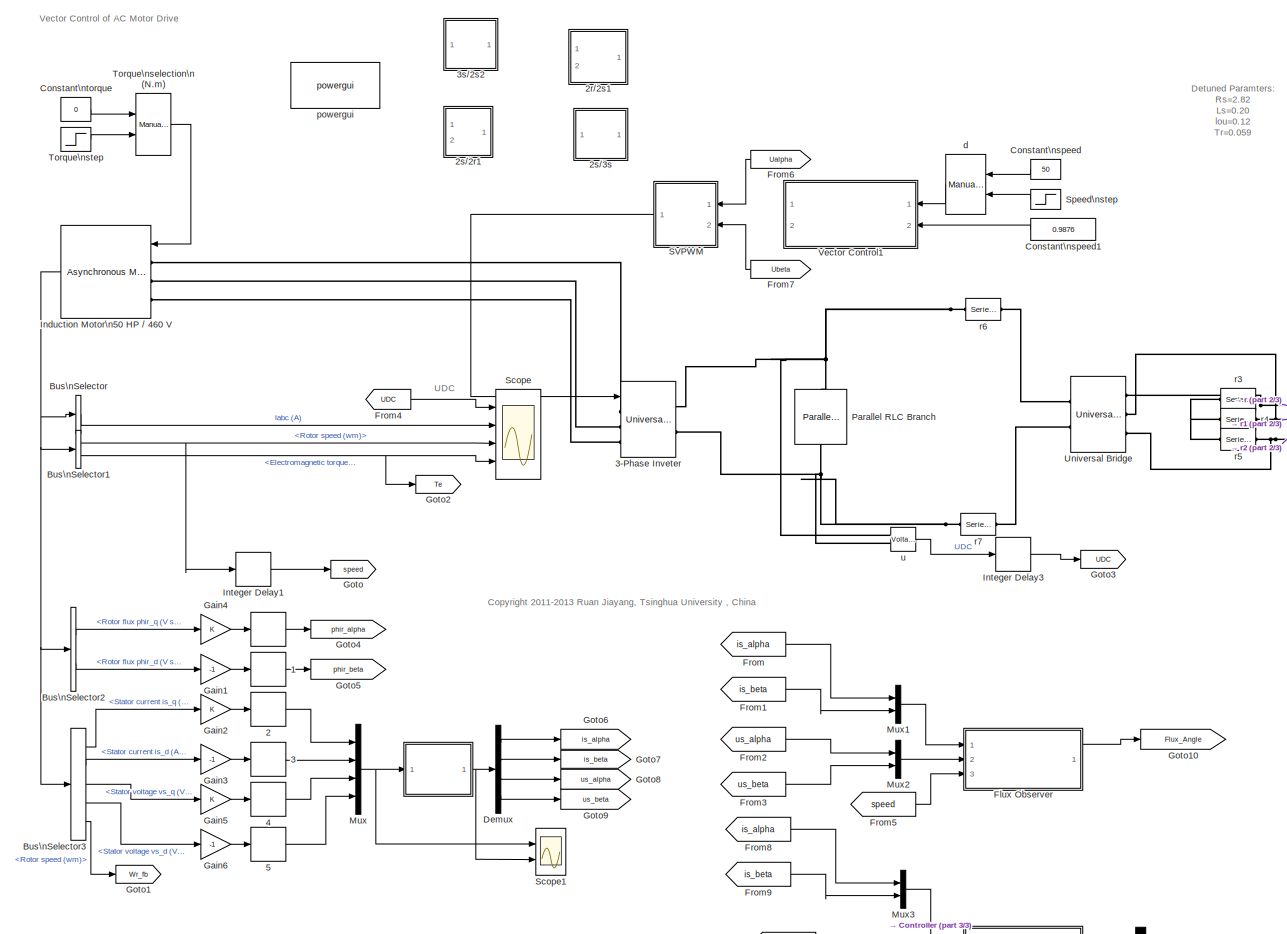
[diagram: root canvas - part 1/3, most of the canvas]
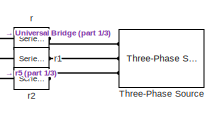
[diagram: root canvas - part 2/3, middle right region]
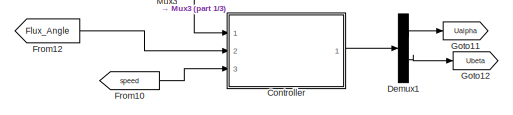
[diagram: root canvas - part 3/3, bottom center region]
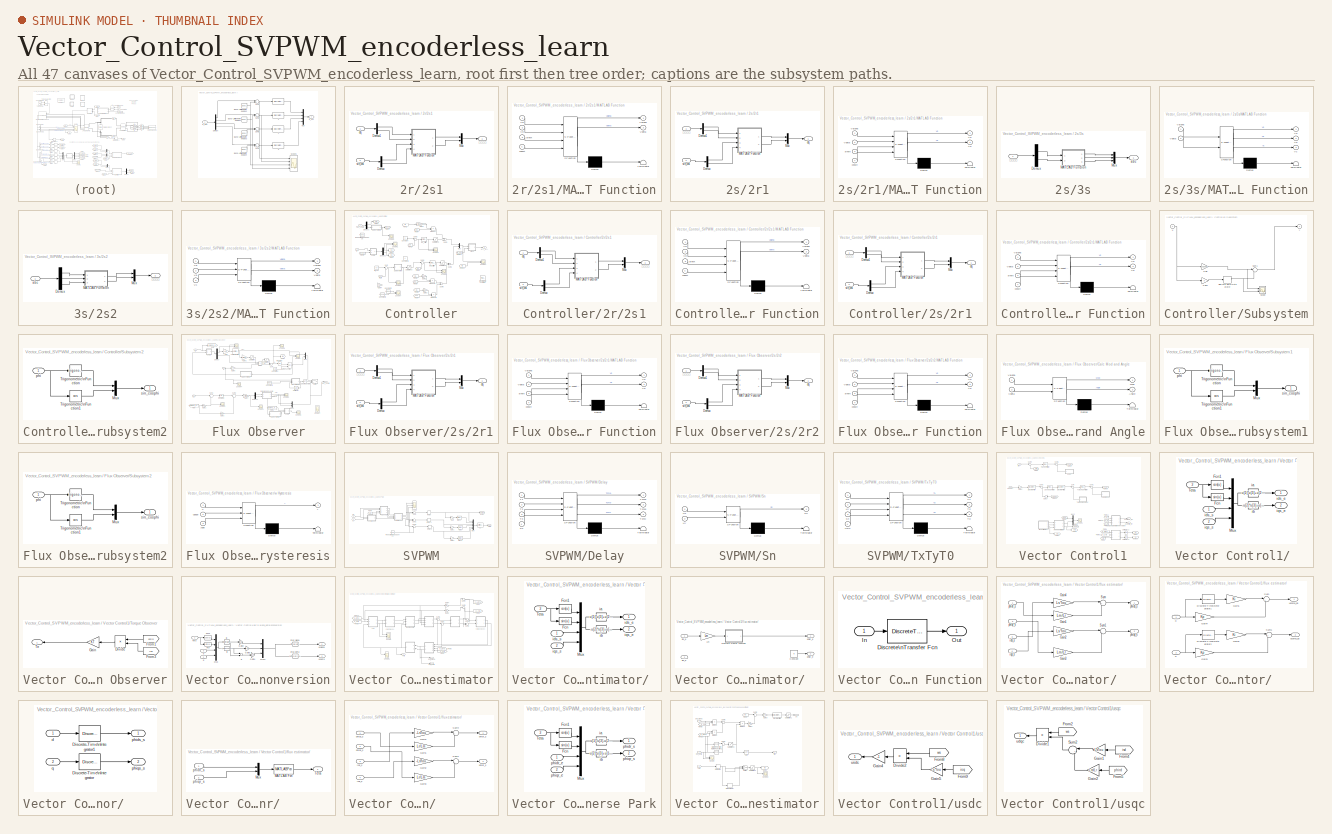
[diagram: thumbnail index - all 47 canvases of the model, root first then tree order]
MODEL Vector_Control_SVPWM_encoderless_learn
KIND model
CONFIG InitFcn = Ts=1e-6;\nresolute=100;\n\nnp=2;\nfN=50;\nVN=380;\nPN=2200;\nIN=PN/(VN*1.732);\nJ=0.3;\nVdc=600;\n\nRs=2.76;\nLls=11.8e-3;\nRr=3.11;\nLlr=11.8e-3;\nLm=188.2e-3;\nLs=Lm+Lls;\nLr=Lm+Llr;\nKleak=1-Lm*Lm/(Ls*Lr);\nTr=Lr/Rr;\n\n%Ts=1e-6;\nfbase=fN;\nVbase=220*sqrt(3);\nwbase=2*pi*fbase;\n\nTsw=0.2e-3;\nFctrl=2/Tsw;\nTctrl=1/Fctrl;\nPMCurrent=45;\nFcutCurrent=(81.12-PMCurrent)*Fctrl/540;\nFpiCurrent=Fcu...<+241ch>
CONFIG PreLoadFcn = Ts=1e-6;\nresolute=100;\nMotorParamInit.m\n\n
BLOCK [Delay]  
  InitialCondition = 0
  InputPortMap = u0
  InputProcessing = Inherited
  Ports = [1, 1]
  SID = 1007
  SampleTime = Ts
BLOCK [SubSystem]       
  FunctionWithSeparateData = off
  MaskCallbackString = |||
  MaskEnableString = on,on,on,on
  MaskHideContents = off
  MaskIconFrame = on
  MaskIconOpaque = on
  MaskIconRotate = none
  MaskIconUnits = autoscale
  MaskInitialization = TN=1/SF;
  MaskPortRotate = default
  MaskPromptString = Filter Time Constant|Switching Frequecy|Voltage Measurement Noise|Current Measurement Noise
  MaskStyleString = edit,edit,edit,edit
  MaskToolTipString = on,on,on,on
  MaskTunableValueString = on,on,on,on
  MaskValueString = 0.001|5000|0|0.2
  MaskVariables = Tf=@1;SF=@2;VN=@3;CN=@4;
  MaskVisibilityString = on,on,on,on
  MinAlgLoopOccurrences = off
  Opaque = off
  Ports = [1, 1]
  PropExecContextOutsideSubsystem = off
  RTWSystemCode = Auto
  RequestExecContextInheritance = off
  SID = 2972
BLOCK [DiscreteFilter]       /    
  Denominator = [Tf/Ts+1 -Tf/Ts]
  InputPortMap = u0
  Ports = [1, 1]
  SID = 2995
  SampleTime = Ts
BLOCK [DiscreteFilter]       /    1
  Denominator = [Tf/Ts+1 -Tf/Ts]
  InputPortMap = u0
  Ports = [1, 1]
  SID = 3001
  SampleTime = Ts
BLOCK [DiscreteFilter]       /    2
  Denominator = [Tf/Ts+1 -Tf/Ts]
  InputPortMap = u0
  Ports = [1, 1]
  SID = 3002
  SampleTime = Ts
BLOCK [DiscreteFilter]       /    3
  Denominator = [Tf/Ts+1 -Tf/Ts]
  InputPortMap = u0
  Ports = [1, 1]
  SID = 3003
  SampleTime = Ts
BLOCK [Reference]       /Band-Limited\nWhite Noise1  REF=simulink/Sources/Band-Limited\nWhite Noise
  Cov = [CN*TN]
  Ports = [0, 1]
  SID = 2974
  SourceBlock = simulink/Sources/Band-Limited\nWhite Noise
  SourceType = Band-Limited White Noise.
  Ts = TN
  VectorParams1D = on
  seed = [2334123]
BLOCK [Reference]       /Band-Limited\nWhite Noise2  REF=simulink/Sources/Band-Limited\nWhite Noise
  Cov = [CN*TN]
  Ports = [0, 1]
  SID = 2975
  SourceBlock = simulink/Sources/Band-Limited\nWhite Noise
  SourceType = Band-Limited White Noise.
  Ts = TN
  VectorParams1D = on
  seed = [233]
BLOCK [Reference]       /Band-Limited\nWhite Noise3  REF=simulink/Sources/Band-Limited\nWhite Noise
  Cov = [VN*TN]
  Ports = [0, 1]
  SID = 2976
  SourceBlock = simulink/Sources/Band-Limited\nWhite Noise
  SourceType = Band-Limited White Noise.
  Ts = TN
  VectorParams1D = on
  seed = [23345451]
BLOCK [Reference]       /Band-Limited\nWhite Noise4  REF=simulink/Sources/Band-Limited\nWhite Noise
  Cov = [VN*TN]
  Ports = [0, 1]
  SID = 2999
  SourceBlock = simulink/Sources/Band-Limited\nWhite Noise
  SourceType = Band-Limited White Noise.
  Ts = TN
  VectorParams1D = on
  seed = [3345451]
BLOCK [Demux]       /Demux
  DisplayOption = bar
  Ports = [1, 4]
  SID = 2977
BLOCK [Mux]       /Mux
  DisplayOption = bar
  Ports = [4, 1]
  SID = 2978
BLOCK [Scope]       /Scope1
  DataFormat = StructureWithTime
  Decimation = resolute
  Floating = off
  LimitDataPoints = off
  NumInputPorts = 4
  Ports = [4]
  SID = 3038
  SampleTime = 5e-6
  SaveName = ScopeData4
  SaveToWorkspace = on
  ShowLegends = off
  TimeRange = 1
  YMax = 20~20~5~5
  YMin = -20~-20~-5~-5
BLOCK [Sum]       /Sum1
  IconShape = round
  InputSameDT = off
  Inputs = |++
  OutDataTypeStr = Inherit: Inherit via internal rule
  Ports = [2, 1]
  SID = 2979
  SampleTime = Ts
  SaturateOnIntegerOverflow = off
BLOCK [Sum]       /Sum2
  IconShape = round
  InputSameDT = off
  Inputs = |++
  OutDataTypeStr = Inherit: Inherit via internal rule
  Ports = [2, 1]
  SID = 2980
  SampleTime = Ts
  SaturateOnIntegerOverflow = off
BLOCK [Sum]       /Sum3
  IconShape = round
  InputSameDT = off
  Inputs = |++
  OutDataTypeStr = Inherit: Inherit via internal rule
  Ports = [2, 1]
  SID = 2981
  SampleTime = Ts
  SaturateOnIntegerOverflow = off
BLOCK [Sum]       /Sum4
  IconShape = round
  InputSameDT = off
  Inputs = |++
  OutDataTypeStr = Inherit: Inherit via internal rule
  Ports = [2, 1]
  SID = 3000
  SampleTime = Ts
  SaturateOnIntegerOverflow = off
BLOCK [Inport]       /is_abc
  IconDisplay = Port number
  SID = 2973
BLOCK [Outport]       /is_abc 
  IconDisplay = Port number
  SID = 2982
BLOCK [Delay]  1
  InitialCondition = 0
  InputPortMap = u0
  InputProcessing = Inherited
  Ports = [1, 1]
  SID = 1008
  SampleTime = Ts
BLOCK [Delay]  2
  DelayLength = 1
  InitialCondition = 0
  InputPortMap = u0
  InputProcessing = Inherited
  Ports = [1, 1]
  SID = 1009
  SampleTime = Ts
BLOCK [Delay]  3
  DelayLength = 1
  InitialCondition = 0
  InputPortMap = u0
  InputProcessing = Inherited
  Ports = [1, 1]
  SID = 1010
  SampleTime = Ts
BLOCK [Delay]  4
  DelayLength = 1
  InitialCondition = 0
  InputPortMap = u0
  InputProcessing = Inherited
  Ports = [1, 1]
  SID = 1130
  SampleTime = Ts
BLOCK [Delay]  5
  DelayLength = 1
  InitialCondition = 0
  InputPortMap = u0
  InputProcessing = Inherited
  Ports = [1, 1]
  SID = 1131
  SampleTime = Ts
BLOCK [SubSystem] 2r//2s1
  FunctionWithSeparateData = off
  MaskHideContents = off
  MinAlgLoopOccurrences = off
  Opaque = off
  Ports = [2, 1]
  PropExecContextOutsideSubsystem = off
  RTWSystemCode = Auto
  RequestExecContextInheritance = off
  SID = 4603
BLOCK [Demux] 2r//2s1/Demux
  DisplayOption = bar
  Outputs = 2
  Ports = [1, 2]
  SID = 4606
BLOCK [Demux] 2r//2s1/Demux1
  DisplayOption = bar
  Outputs = 2
  Ports = [1, 2]
  SID = 4607
BLOCK [SubSystem] 2r//2s1/MATLAB Function
  ErrorFcn = Stateflow.Translate.translate
  FunctionWithSeparateData = off
  MaskDescription = Embedded MATLAB block
  MaskDisplay = bgColor = Simulink.Root.ColorString2Rgb(get_param(gcbh, 'BackgroundColor')); image(imread('private/eml_membrane_16.png','png','BackgroundColor',bgColor(1:3)),'center'); disp([10 10 'fcn']);  <repeated x8 — deduplicated; at blocks: MATLAB Function, Calc Mod and Angle, w Hysteresis>
  MaskHideContents = off
  MaskIconFrame = on
  MaskIconOpaque = off
  MaskIconRotate = none
  MaskIconUnits = normalized
  MaskPortRotate = default
  MaskSelfModifiable = on
  MaskType = Stateflow
  MinAlgLoopOccurrences = off
  Opaque = off
  PermitHierarchicalResolution = ExplicitOnly
  Ports = [4, 2]
  PropExecContextOutsideSubsystem = off
  RTWSystemCode = Auto
  RequestExecContextInheritance = off
  SFBlockType = MATLAB Function
  SID = 4608
  TreatAsAtomicUnit = on
BLOCK [Demux] 2r//2s1/MATLAB Function/ Demux 
  Outputs = 1
  Ports = [1, 1]
  SID = 4608::20
BLOCK [S-Function] 2r//2s1/MATLAB Function/ SFunction 
  EnableBusSupport = on
  FunctionName = sf_sfun
  PortCounts = [4 3]
  Ports = [4, 3]
  SID = 4608::19
  Tag = Stateflow S-Function Vector_Control_SVPWM_encoderless_learn 17
BLOCK [Terminator] 2r//2s1/MATLAB Function/ Terminator 
  SID = 4608::22
BLOCK [Outport] 2r//2s1/MATLAB Function/Valpha
  IconDisplay = Port number
  SID = 4608::29
BLOCK [Outport] 2r//2s1/MATLAB Function/Vbeta
  IconDisplay = Port number
  Port = 2
  SID = 4608::30
BLOCK [Inport] 2r//2s1/MATLAB Function/Vd
  IconDisplay = Port number
  SID = 4608::27
BLOCK [Inport] 2r//2s1/MATLAB Function/Vq
  IconDisplay = Port number
  Port = 2
  SID = 4608::28
BLOCK [Inport] 2r//2s1/MATLAB Function/coswt
  IconDisplay = Port number
  Port = 4
  SID = 4608::26
BLOCK [Inport] 2r//2s1/MATLAB Function/sinwt
  IconDisplay = Port number
  Port = 3
  SID = 4608::25
BLOCK [Mux] 2r//2s1/Mux
  DisplayOption = bar
  Inputs = 2
  Ports = [2, 1]
  SID = 4609
BLOCK [Inport] 2r//2s1/dq
  IconDisplay = Port number
  SID = 4604
BLOCK [Inport] 2r//2s1/sin_cos
  IconDisplay = Port number
  Port = 2
  SID = 4605
BLOCK [Outport] 2r//2s1/αβ
  IconDisplay = Port number
  SID = 4610
BLOCK [SubSystem] 2s//2r1
  FunctionWithSeparateData = off
  MaskHideContents = off
  MinAlgLoopOccurrences = off
  Opaque = off
  Ports = [2, 1]
  PropExecContextOutsideSubsystem = off
  RTWSystemCode = Auto
  RequestExecContextInheritance = off
  SID = 4611
BLOCK [Demux] 2s//2r1/Demux
  DisplayOption = bar
  Outputs = 2
  Ports = [1, 2]
  SID = 4614
BLOCK [Demux] 2s//2r1/Demux1
  DisplayOption = bar
  Outputs = 2
  Ports = [1, 2]
  SID = 4615
BLOCK [SubSystem] 2s//2r1/MATLAB Function
  ErrorFcn = Stateflow.Translate.translate
  FunctionWithSeparateData = off
  MaskDescription = Embedded MATLAB block
  MaskHideContents = off
  MaskIconFrame = on
  MaskIconOpaque = off
  MaskIconRotate = none
  MaskIconUnits = normalized
  MaskPortRotate = default
  MaskSelfModifiable = on
  MaskType = Stateflow
  MinAlgLoopOccurrences = off
  Opaque = off
  PermitHierarchicalResolution = ExplicitOnly
  Ports = [4, 2]
  PropExecContextOutsideSubsystem = off
  RTWSystemCode = Auto
  RequestExecContextInheritance = off
  SFBlockType = MATLAB Function
  SID = 4616
  TreatAsAtomicUnit = on
BLOCK [Demux] 2s//2r1/MATLAB Function/ Demux 
  Outputs = 1
  Ports = [1, 1]
  SID = 4616::20
BLOCK [S-Function] 2s//2r1/MATLAB Function/ SFunction 
  EnableBusSupport = on
  FunctionName = sf_sfun
  PortCounts = [4 3]
  Ports = [4, 3]
  SID = 4616::19
  Tag = Stateflow S-Function Vector_Control_SVPWM_encoderless_learn 18
BLOCK [Terminator] 2s//2r1/MATLAB Function/ Terminator 
  SID = 4616::22
BLOCK [Inport] 2s//2r1/MATLAB Function/Valpha
  IconDisplay = Port number
  SID = 4616::1
BLOCK [Inport] 2s//2r1/MATLAB Function/Vbeta
  IconDisplay = Port number
  Port = 2
  SID = 4616::23
BLOCK [Outport] 2s//2r1/MATLAB Function/Vd
  IconDisplay = Port number
  SID = 4616::5
BLOCK [Outport] 2s//2r1/MATLAB Function/Vq
  IconDisplay = Port number
  Port = 2
  SID = 4616::24
BLOCK [Inport] 2s//2r1/MATLAB Function/coswt
  IconDisplay = Port number
  Port = 4
  SID = 4616::26
BLOCK [Inport] 2s//2r1/MATLAB Function/sinwt
  IconDisplay = Port number
  Port = 3
  SID = 4616::25
BLOCK [Mux] 2s//2r1/Mux
  DisplayOption = bar
  Inputs = 2
  Ports = [2, 1]
  SID = 4617
BLOCK [Outport] 2s//2r1/dq
  IconDisplay = Port number
  SID = 4618
BLOCK [Inport] 2s//2r1/sin_cos
  IconDisplay = Port number
  Port = 2
  SID = 4613
BLOCK [Inport] 2s//2r1/αβ
  IconDisplay = Port number
  SID = 4612
BLOCK [SubSystem] 2s//3s
  FunctionWithSeparateData = off
  MaskHideContents = off
  MinAlgLoopOccurrences = off
  Opaque = off
  Ports = [1, 1]
  PropExecContextOutsideSubsystem = off
  RTWSystemCode = Auto
  RequestExecContextInheritance = off
  SID = 4619
BLOCK [Demux] 2s//3s/Demux
  DisplayOption = bar
  Outputs = 2
  Ports = [1, 2]
  SID = 4621
BLOCK [SubSystem] 2s//3s/MATLAB Function
  ErrorFcn = Stateflow.Translate.translate
  FunctionWithSeparateData = off
  MaskDescription = Embedded MATLAB block
  MaskDisplay = bgColor = Simulink.Root.ColorString2Rgb(get_param(gcbh, 'BackgroundColor')); image(imread('private/eml_membrane_16.png','png','BackgroundColor',bgColor(1:3)),'center'); disp([10 10 'Park']);
  MaskHideContents = off
  MaskIconFrame = on
  MaskIconOpaque = off
  MaskIconRotate = none
  MaskIconUnits = normalized
  MaskPortRotate = default
  MaskSelfModifiable = on
  MaskType = Stateflow
  MinAlgLoopOccurrences = off
  Opaque = off
  PermitHierarchicalResolution = ExplicitOnly
  Ports = [2, 3]
  PropExecContextOutsideSubsystem = off
  RTWSystemCode = Auto
  RequestExecContextInheritance = off
  SFBlockType = MATLAB Function
  SID = 4622
  TreatAsAtomicUnit = on
BLOCK [Demux] 2s//3s/MATLAB Function/ Demux 
  Outputs = 1
  Ports = [1, 1]
  SID = 4622::20
BLOCK [S-Function] 2s//3s/MATLAB Function/ SFunction 
  EnableBusSupport = on
  FunctionName = sf_sfun
  PortCounts = [2 4]
  Ports = [2, 4]
  SID = 4622::19
  Tag = Stateflow S-Function Vector_Control_SVPWM_encoderless_learn 6
BLOCK [Terminator] 2s//3s/MATLAB Function/ Terminator 
  SID = 4622::22
BLOCK [Outport] 2s//3s/MATLAB Function/Va
  IconDisplay = Port number
  SID = 4622::28
BLOCK [Inport] 2s//3s/MATLAB Function/Valpha
  IconDisplay = Port number
  SID = 4622::26
BLOCK [Outport] 2s//3s/MATLAB Function/Vb
  IconDisplay = Port number
  Port = 2
  SID = 4622::29
BLOCK [Inport] 2s//3s/MATLAB Function/Vbeta
  IconDisplay = Port number
  Port = 2
  SID = 4622::27
BLOCK [Outport] 2s//3s/MATLAB Function/Vc
  IconDisplay = Port number
  Port = 3
  SID = 4622::30
BLOCK [Mux] 2s//3s/Mux
  DisplayOption = bar
  Inputs = 3
  Ports = [3, 1]
  SID = 4623
BLOCK [Outport] 2s//3s/abc
  IconDisplay = Port number
  SID = 4624
BLOCK [Inport] 2s//3s/αβ
  IconDisplay = Port number
  SID = 4620
BLOCK [Reference] 3-Phase Inveter  REF=powerlib/Power\nElectronics/Universal Bridge
  Arms = 3
  Device = IGBT / Diodes
  ForwardVoltage = 0
  ForwardVoltages = [1.1  0.75]
  GTOparameters = [ 10e-6 , 20e-6 ]
  IGBTparameters = [ 1e-6 , 2e-6 ]
  Lon = 0
  Measurements = None
  Measurements_2 = None
  Ports = [1, 0, 0, 0, 0, 3, 2]
  Ron = 1e-3
  SID = 924
  SnubberCapacitance = 1e-6
  SnubberResistance = 1e5
  SourceBlock = powerlib/Power\nElectronics/Universal Bridge
  SourceType = Universal Bridge
  converterType = Rectifier
BLOCK [SubSystem] 3s//2s2
  FunctionWithSeparateData = off
  MaskHideContents = off
  MinAlgLoopOccurrences = off
  Opaque = off
  Ports = [1, 1]
  PropExecContextOutsideSubsystem = off
  RTWSystemCode = Auto
  RequestExecContextInheritance = off
  SID = 4625
BLOCK [Demux] 3s//2s2/Demux
  DisplayOption = bar
  Outputs = 3
  Ports = [1, 3]
  SID = 4627
BLOCK [SubSystem] 3s//2s2/MATLAB Function
  ErrorFcn = Stateflow.Translate.translate
  FunctionWithSeparateData = off
  MaskDescription = Embedded MATLAB block
  MaskDisplay = bgColor = Simulink.Root.ColorString2Rgb(get_param(gcbh, 'BackgroundColor')); image(imread('private/eml_membrane_16.png','png','BackgroundColor',bgColor(1:3)),'center'); disp([10 10 'Park']);
  MaskHideContents = off
  MaskIconFrame = on
  MaskIconOpaque = off
  MaskIconRotate = none
  MaskIconUnits = normalized
  MaskPortRotate = default
  MaskSelfModifiable = on
  MaskType = Stateflow
  MinAlgLoopOccurrences = off
  Opaque = off
  PermitHierarchicalResolution = ExplicitOnly
  Ports = [3, 2]
  PropExecContextOutsideSubsystem = off
  RTWSystemCode = Auto
  RequestExecContextInheritance = off
  SFBlockType = MATLAB Function
  SID = 4628
  TreatAsAtomicUnit = on
BLOCK [Demux] 3s//2s2/MATLAB Function/ Demux 
  Outputs = 1
  Ports = [1, 1]
  SID = 4628::20
BLOCK [S-Function] 3s//2s2/MATLAB Function/ SFunction 
  EnableBusSupport = on
  FunctionName = sf_sfun
  PortCounts = [3 3]
  Ports = [3, 3]
  SID = 4628::19
  Tag = Stateflow S-Function Vector_Control_SVPWM_encoderless_learn 8
BLOCK [Terminator] 3s//2s2/MATLAB Function/ Terminator 
  SID = 4628::22
BLOCK [Inport] 3s//2s2/MATLAB Function/Va
  IconDisplay = Port number
  SID = 4628::1
BLOCK [Outport] 3s//2s2/MATLAB Function/Valpha
  IconDisplay = Port number
  SID = 4628::5
BLOCK [Inport] 3s//2s2/MATLAB Function/Vb
  IconDisplay = Port number
  Port = 2
  SID = 4628::23
BLOCK [Outport] 3s//2s2/MATLAB Function/Vbeta
  IconDisplay = Port number
  Port = 2
  SID = 4628::25
BLOCK [Inport] 3s//2s2/MATLAB Function/Vc
  IconDisplay = Port number
  Port = 3
  SID = 4628::24
BLOCK [Mux] 3s//2s2/Mux
  DisplayOption = bar
  Inputs = 2
  Ports = [2, 1]
  SID = 4629
BLOCK [Inport] 3s//2s2/abc
  IconDisplay = Port number
  SID = 4626
BLOCK [Outport] 3s//2s2/αβ
  IconDisplay = Port number
  SID = 4630
BLOCK [BusSelector] Bus\nSelector
  OutputAsBus = on
  OutputSignals = Stator measurements.Stator current is_a (A),Stator measurements.Stator current is_b (A),Stator measurements.Stator current is_c (A)
  Ports = [1, 1]
  SID = 1
BLOCK [BusSelector] Bus\nSelector1
  OutputSignals = Mechanical.Rotor speed (wm),Mechanical.Electromagnetic torque Te (N*m)
  Ports = [1, 2]
  SID = 2
BLOCK [BusSelector] Bus\nSelector2
  OutputSignals = Rotor measurements.Rotor flux phir_q (V s),Rotor measurements.Rotor flux phir_d (V s)
  Ports = [1, 2]
  SID = 963
BLOCK [BusSelector] Bus\nSelector3
  OutputSignals = Stator measurements.Stator current  is_q (A),Stator measurements.Stator current is_d (A),Stator measurements.Stator voltage vs_q (V),Stator measurements.Stator voltage vs_d (V),Mechanical.Rotor speed (wm)
  Ports = [1, 5]
  SID = 3004
BLOCK [Constant] Constant\nspeed
  SID = 3
  SampleTime = Ts
  Value = 50
BLOCK [Constant] Constant\nspeed1
  SID = 999
  SampleTime = Ts
  Value = 0.9876
BLOCK [Constant] Constant\ntorque
  SID = 4
  SampleTime = Ts
  Value = 0
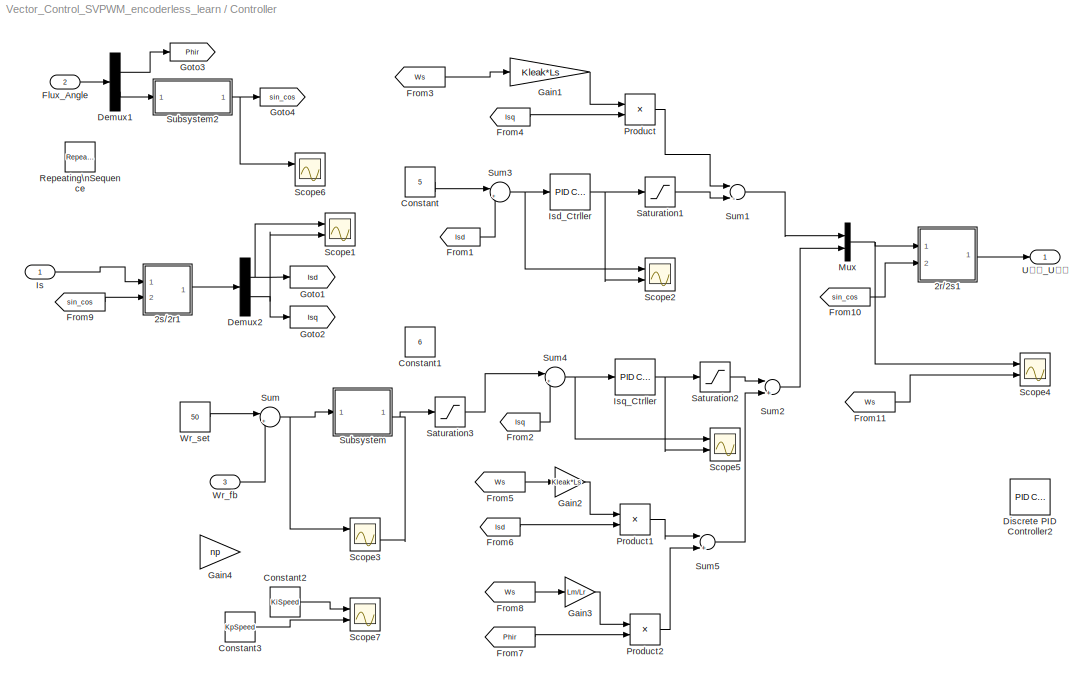
BLOCK [SubSystem] Controller
  FunctionWithSeparateData = off
  MaskHideContents = off
  MinAlgLoopOccurrences = off
  Opaque = off
  Ports = [3, 1]
  PropExecContextOutsideSubsystem = off
  RTWSystemCode = Auto
  RequestExecContextInheritance = off
  SID = 4448
BLOCK [SubSystem] Controller/2r//2s1
  FunctionWithSeparateData = off
  MaskHideContents = off
  MinAlgLoopOccurrences = off
  Opaque = off
  Ports = [2, 1]
  PropExecContextOutsideSubsystem = off
  RTWSystemCode = Auto
  RequestExecContextInheritance = off
  SID = 4631
BLOCK [Demux] Controller/2r//2s1/Demux
  DisplayOption = bar
  Outputs = 2
  Ports = [1, 2]
  SID = 4634
BLOCK [Demux] Controller/2r//2s1/Demux1
  DisplayOption = bar
  Outputs = 2
  Ports = [1, 2]
  SID = 4635
BLOCK [SubSystem] Controller/2r//2s1/MATLAB Function
  ErrorFcn = Stateflow.Translate.translate
  FunctionWithSeparateData = off
  MaskDescription = Embedded MATLAB block
  MaskHideContents = off
  MaskIconFrame = on
  MaskIconOpaque = off
  MaskIconRotate = none
  MaskIconUnits = normalized
  MaskPortRotate = default
  MaskSelfModifiable = on
  MaskType = Stateflow
  MinAlgLoopOccurrences = off
  Opaque = off
  PermitHierarchicalResolution = ExplicitOnly
  Ports = [4, 2]
  PropExecContextOutsideSubsystem = off
  RTWSystemCode = Auto
  RequestExecContextInheritance = off
  SFBlockType = MATLAB Function
  SID = 4636
  TreatAsAtomicUnit = on
BLOCK [Demux] Controller/2r//2s1/MATLAB Function/ Demux 
  Outputs = 1
  Ports = [1, 1]
  SID = 4636::20
BLOCK [S-Function] Controller/2r//2s1/MATLAB Function/ SFunction 
  EnableBusSupport = on
  FunctionName = sf_sfun
  PortCounts = [4 3]
  Ports = [4, 3]
  SID = 4636::19
  Tag = Stateflow S-Function Vector_Control_SVPWM_encoderless_learn 10
BLOCK [Terminator] Controller/2r//2s1/MATLAB Function/ Terminator 
  SID = 4636::22
BLOCK [Outport] Controller/2r//2s1/MATLAB Function/Valpha
  IconDisplay = Port number
  SID = 4636::29
BLOCK [Outport] Controller/2r//2s1/MATLAB Function/Vbeta
  IconDisplay = Port number
  Port = 2
  SID = 4636::30
BLOCK [Inport] Controller/2r//2s1/MATLAB Function/Vd
  IconDisplay = Port number
  SID = 4636::27
BLOCK [Inport] Controller/2r//2s1/MATLAB Function/Vq
  IconDisplay = Port number
  Port = 2
  SID = 4636::28
BLOCK [Inport] Controller/2r//2s1/MATLAB Function/coswt
  IconDisplay = Port number
  Port = 4
  SID = 4636::26
BLOCK [Inport] Controller/2r//2s1/MATLAB Function/sinwt
  IconDisplay = Port number
  Port = 3
  SID = 4636::25
BLOCK [Mux] Controller/2r//2s1/Mux
  DisplayOption = bar
  Inputs = 2
  Ports = [2, 1]
  SID = 4637
BLOCK [Inport] Controller/2r//2s1/dq
  IconDisplay = Port number
  SID = 4632
BLOCK [Inport] Controller/2r//2s1/sin_cos
  IconDisplay = Port number
  Port = 2
  SID = 4633
BLOCK [Outport] Controller/2r//2s1/αβ
  IconDisplay = Port number
  SID = 4638
BLOCK [SubSystem] Controller/2s//2r1
  FunctionWithSeparateData = off
  MaskHideContents = off
  MinAlgLoopOccurrences = off
  Opaque = off
  Ports = [2, 1]
  PropExecContextOutsideSubsystem = off
  RTWSystemCode = Auto
  RequestExecContextInheritance = off
  SID = 4453
BLOCK [Demux] Controller/2s//2r1/Demux
  DisplayOption = bar
  Outputs = 2
  Ports = [1, 2]
  SID = 4456
BLOCK [Demux] Controller/2s//2r1/Demux1
  DisplayOption = bar
  Outputs = 2
  Ports = [1, 2]
  SID = 4457
BLOCK [SubSystem] Controller/2s//2r1/MATLAB Function
  ErrorFcn = Stateflow.Translate.translate
  FunctionWithSeparateData = off
  MaskDescription = Embedded MATLAB block
  MaskHideContents = off
  MaskIconFrame = on
  MaskIconOpaque = off
  MaskIconRotate = none
  MaskIconUnits = normalized
  MaskPortRotate = default
  MaskSelfModifiable = on
  MaskType = Stateflow
  MinAlgLoopOccurrences = off
  Opaque = off
  PermitHierarchicalResolution = ExplicitOnly
  Ports = [4, 2]
  PropExecContextOutsideSubsystem = off
  RTWSystemCode = Auto
  RequestExecContextInheritance = off
  SFBlockType = MATLAB Function
  SID = 4458
  TreatAsAtomicUnit = on
BLOCK [Demux] Controller/2s//2r1/MATLAB Function/ Demux 
  Outputs = 1
  Ports = [1, 1]
  SID = 4458::20
BLOCK [S-Function] Controller/2s//2r1/MATLAB Function/ SFunction 
  EnableBusSupport = on
  FunctionName = sf_sfun
  PortCounts = [4 3]
  Ports = [4, 3]
  SID = 4458::19
  Tag = Stateflow S-Function Vector_Control_SVPWM_encoderless_learn 7
BLOCK [Terminator] Controller/2s//2r1/MATLAB Function/ Terminator 
  SID = 4458::22
BLOCK [Inport] Controller/2s//2r1/MATLAB Function/Valpha
  IconDisplay = Port number
  SID = 4458::1
BLOCK [Inport] Controller/2s//2r1/MATLAB Function/Vbeta
  IconDisplay = Port number
  Port = 2
  SID = 4458::23
BLOCK [Outport] Controller/2s//2r1/MATLAB Function/Vd
  IconDisplay = Port number
  SID = 4458::5
BLOCK [Outport] Controller/2s//2r1/MATLAB Function/Vq
  IconDisplay = Port number
  Port = 2
  SID = 4458::24
BLOCK [Inport] Controller/2s//2r1/MATLAB Function/coswt
  IconDisplay = Port number
  Port = 4
  SID = 4458::26
BLOCK [Inport] Controller/2s//2r1/MATLAB Function/sinwt
  IconDisplay = Port number
  Port = 3
  SID = 4458::25
BLOCK [Mux] Controller/2s//2r1/Mux
  DisplayOption = bar
  Inputs = 2
  Ports = [2, 1]
  SID = 4459
BLOCK [Outport] Controller/2s//2r1/dq
  IconDisplay = Port number
  SID = 4460
BLOCK [Inport] Controller/2s//2r1/sin_cos
  IconDisplay = Port number
  Port = 2
  SID = 4455
BLOCK [Inport] Controller/2s//2r1/αβ
  IconDisplay = Port number
  SID = 4454
BLOCK [Constant] Controller/Constant
  SID = 4646
  Value = 5
BLOCK [Constant] Controller/Constant1
  SID = 4659
  Value = 6
BLOCK [Constant] Controller/Constant2
  SID = 4668
  Value = KiSpeed
BLOCK [Constant] Controller/Constant3
  SID = 4669
  Value = KpSpeed
BLOCK [Demux] Controller/Demux1
  DisplayOption = bar
  Outputs = 2
  Ports = [1, 2]
  SID = 4640
BLOCK [Demux] Controller/Demux2
  DisplayOption = bar
  Outputs = 2
  Ports = [1, 2]
  SID = 4529
BLOCK [Reference] Controller/Discrete PID Controller2  REF=simulink/Continuous/PID Controller
  AntiWindupMode = none
  Controller = PI
  D = 0
  DOutDataTypeStr = Inherit: Inherit via internal rule
  DOutMax = []
  DOutMin = []
  DParamDataTypeStr = Inherit: Inherit via internal rule
  DParamMax = []
  DParamMin = []
  ExternalReset = none
  FilterContinuousStateAttributes = ''
  FilterMethod = Backward Euler
  FilterOutDataTypeStr = Inherit: Inherit via internal rule
  FilterOutMax = []
  FilterOutMin = []
  FilterRTWStateStorageClass = Auto
  FilterStateMustResolveToSignalObject = off
  Form = Parallel
  I = KiSpeed
  IOutDataTypeStr = Inherit: Inherit via internal rule
  IOutMax = []
  IOutMin = []
  IParamDataTypeStr = Inherit: Inherit via internal rule
  IParamMax = []
  IParamMin = []
  IgnoreLimit = off
  InitialConditionForFilter = 0
  InitialConditionForIntegrator = 0
  InitialConditionSource = internal
  IntegratorContinuousStateAttributes = ''
  IntegratorMethod = Backward Euler
  IntegratorOutDataTypeStr = Inherit: Inherit via internal rule
  IntegratorOutMax = []
  IntegratorOutMin = []
  IntegratorRTWStateStorageClass = Auto
  IntegratorStateMustResolveToSignalObject = off
  Kb = 1
  KbOutDataTypeStr = Inherit: Inherit via internal rule
  KbOutMax = []
  KbOutMin = []
  KbParamDataTypeStr = Inherit: Inherit via internal rule
  KbParamMax = []
  KbParamMin = []
  Kt = 1
  KtOutDataTypeStr = Inherit: Inherit via internal rule
  KtOutMax = []
  KtOutMin = []
  KtParamDataTypeStr = Inherit: Inherit via internal rule
  KtParamMax = []
  KtParamMin = []
  LimitOutput = off
  LinearizeAsGain = off
  LockScale = off
  LowerSaturationLimit = -4*IN
  N = 100
  NOutDataTypeStr = Inherit: Inherit via internal rule
  NOutMax = []
  NOutMin = []
  NParamDataTypeStr = Inherit: Inherit via internal rule
  NParamMax = []
  NParamMin = []
  P = KpSpeed
  POutDataTypeStr = Inherit: Inherit via internal rule
  POutMax = []
  POutMin = []
  PParamDataTypeStr = Inherit: Inherit via internal rule
  PParamMax = []
  PParamMin = []
  Ports = [1, 1]
  RndMeth = Floor
  SID = 4564
  SampleTime = 1
  SaturateOnIntegerOverflow = off
  SaturationOutDataTypeStr = Inherit: Same as input
  SaturationOutMax = []
  SaturationOutMin = []
  SourceBlock = simulink/Continuous/PID Controller
  SourceType = PID 1dof
  SumAccumDataTypeStr = Inherit: Inherit via internal rule
  SumDAccumDataTypeStr = Inherit: Inherit via internal rule
  SumDOutDataTypeStr = Inherit: Inherit via internal rule
  SumDOutMax = []
  SumDOutMin = []
  SumI1AccumDataTypeStr = Inherit: Inherit via internal rule
  SumI1OutDataTypeStr = Inherit: Inherit via internal rule
  SumI1OutMax = []
  SumI1OutMin = []
  SumI2AccumDataTypeStr = Inherit: Inherit via internal rule
  SumI2OutDataTypeStr = Inherit: Inherit via internal rule
  SumI2OutMax = []
  SumI2OutMin = []
  SumI3AccumDataTypeStr = Inherit: Inherit via internal rule
  SumI3OutDataTypeStr = Inherit: Inherit via internal rule
  SumI3OutMax = []
  SumI3OutMin = []
  SumOutDataTypeStr = Inherit: Inherit via internal rule
  SumOutMax = []
  SumOutMin = []
  TimeDomain = Discrete-time
  TrackingMode = off
  UpperSaturationLimit = 4*IN
  ZeroCross = on
BLOCK [Inport] Controller/Flux_Angle
  IconDisplay = Port number
  Port = 2
  SID = 4511
BLOCK [From] Controller/From1
  GotoTag = Isd
  SID = 4533
BLOCK [From] Controller/From10
  GotoTag = sin_cos
  SID = 4644
BLOCK [From] Controller/From11
  GotoTag = Ws
  SID = 4649
  TagVisibility = global
BLOCK [From] Controller/From2
  GotoTag = Isq
  SID = 4537
BLOCK [From] Controller/From3
  GotoTag = Ws
  SID = 4545
  TagVisibility = global
BLOCK [From] Controller/From4
  GotoTag = Isq
  SID = 4548
BLOCK [From] Controller/From5
  GotoTag = Ws
  SID = 4550
  TagVisibility = global
BLOCK [From] Controller/From6
  GotoTag = Isd
  SID = 4551
BLOCK [From] Controller/From7
  GotoTag = Phir
  SID = 4555
BLOCK [From] Controller/From8
  GotoTag = Ws
  SID = 4556
  TagVisibility = global
BLOCK [From] Controller/From9
  GotoTag = sin_cos
  SID = 4643
BLOCK [Gain] Controller/Gain1
  Gain = Kleak*Ls
  OutDataTypeStr = Inherit: Inherit via internal rule
  ParamDataTypeStr = Inherit: Inherit via internal rule
  SID = 4547
  SaturateOnIntegerOverflow = off
BLOCK [Gain] Controller/Gain2
  Gain = Kleak*Ls
  OutDataTypeStr = Inherit: Inherit via internal rule
  ParamDataTypeStr = Inherit: Inherit via internal rule
  SID = 4552
  SaturateOnIntegerOverflow = off
BLOCK [Gain] Controller/Gain3
  Gain = Lm/Lr
  OutDataTypeStr = Inherit: Inherit via internal rule
  ParamDataTypeStr = Inherit: Inherit via internal rule
  SID = 4558
  SaturateOnIntegerOverflow = off
BLOCK [Gain] Controller/Gain4
  Gain = np
  OutDataTypeStr = Inherit: Inherit via internal rule
  ParamDataTypeStr = Inherit: Inherit via internal rule
  SID = 4648
  SaturateOnIntegerOverflow = off
BLOCK [Goto] Controller/Goto1
  GotoTag = Isd
  SID = 4530
BLOCK [Goto] Controller/Goto2
  GotoTag = Isq
  SID = 4531
BLOCK [Goto] Controller/Goto3
  GotoTag = Phir
  SID = 4641
BLOCK [Goto] Controller/Goto4
  GotoTag = sin_cos
  SID = 4642
BLOCK [Inport] Controller/Is
  IconDisplay = Port number
  SID = 4449
BLOCK [Reference] Controller/Isd_Ctrller  REF=simulink/Continuous/PID Controller
  AntiWindupMode = none
  Controller = PI
  D = 0
  DOutDataTypeStr = Inherit: Inherit via internal rule
  DOutMax = []
  DOutMin = []
  DParamDataTypeStr = Inherit: Inherit via internal rule
  DParamMax = []
  DParamMin = []
  ExternalReset = none
  FilterContinuousStateAttributes = ''
  FilterMethod = Forward Euler
  FilterOutDataTypeStr = Inherit: Inherit via internal rule
  FilterOutMax = []
  FilterOutMin = []
  FilterRTWStateStorageClass = Auto
  FilterStateMustResolveToSignalObject = off
  Form = Parallel
  I = KiCurrent
  IOutDataTypeStr = Inherit: Inherit via internal rule
  IOutMax = []
  IOutMin = []
  IParamDataTypeStr = Inherit: Inherit via internal rule
  IParamMax = []
  IParamMin = []
  IgnoreLimit = off
  InitialConditionForFilter = 0
  InitialConditionForIntegrator = 0
  InitialConditionSource = internal
  IntegratorContinuousStateAttributes = ''
  IntegratorMethod = Backward Euler
  IntegratorOutDataTypeStr = Inherit: Inherit via internal rule
  IntegratorOutMax = []
  IntegratorOutMin = []
  IntegratorRTWStateStorageClass = Auto
  IntegratorStateMustResolveToSignalObject = off
  Kb = 1
  KbOutDataTypeStr = Inherit: Inherit via internal rule
  KbOutMax = []
  KbOutMin = []
  KbParamDataTypeStr = Inherit: Inherit via internal rule
  KbParamMax = []
  KbParamMin = []
  Kt = 1
  KtOutDataTypeStr = Inherit: Inherit via internal rule
  KtOutMax = []
  KtOutMin = []
  KtParamDataTypeStr = Inherit: Inherit via internal rule
  KtParamMax = []
  KtParamMin = []
  LimitOutput = on
  LinearizeAsGain = off
  LockScale = off
  LowerSaturationLimit = -1000
  N = 100
  NOutDataTypeStr = Inherit: Inherit via internal rule
  NOutMax = []
  NOutMin = []
  NParamDataTypeStr = Inherit: Inherit via internal rule
  NParamMax = []
  NParamMin = []
  P = KpCurrent
  POutDataTypeStr = Inherit: Inherit via internal rule
  POutMax = []
  POutMin = []
  PParamDataTypeStr = Inherit: Inherit via internal rule
  PParamMax = []
  PParamMin = []
  Ports = [1, 1]
  RndMeth = Floor
  SID = 4527
  SampleTime = Ts
  SaturateOnIntegerOverflow = off
  SaturationOutDataTypeStr = Inherit: Same as input
  SaturationOutMax = []
  SaturationOutMin = []
  SourceBlock = simulink/Continuous/PID Controller
  SourceType = PID 1dof
  SumAccumDataTypeStr = Inherit: Inherit via internal rule
  SumDAccumDataTypeStr = Inherit: Inherit via internal rule
  SumDOutDataTypeStr = Inherit: Inherit via internal rule
  SumDOutMax = []
  SumDOutMin = []
  SumI1AccumDataTypeStr = Inherit: Inherit via internal rule
  SumI1OutDataTypeStr = Inherit: Inherit via internal rule
  SumI1OutMax = []
  SumI1OutMin = []
  SumI2AccumDataTypeStr = Inherit: Inherit via internal rule
  SumI2OutDataTypeStr = Inherit: Inherit via internal rule
  SumI2OutMax = []
  SumI2OutMin = []
  SumI3AccumDataTypeStr = Inherit: Inherit via internal rule
  SumI3OutDataTypeStr = Inherit: Inherit via internal rule
  SumI3OutMax = []
  SumI3OutMin = []
  SumOutDataTypeStr = Inherit: Inherit via internal rule
  SumOutMax = []
  SumOutMin = []
  TimeDomain = Discrete-time
  TrackingMode = off
  UpperSaturationLimit = 1000
  ZeroCross = on
BLOCK [Reference] Controller/Isq_Ctrller  REF=simulink/Continuous/PID Controller
  AntiWindupMode = none
  Controller = PI
  D = 0
  DOutDataTypeStr = Inherit: Inherit via internal rule
  DOutMax = []
  DOutMin = []
  DParamDataTypeStr = Inherit: Inherit via internal rule
  DParamMax = []
  DParamMin = []
  ExternalReset = none
  FilterContinuousStateAttributes = ''
  FilterMethod = Forward Euler
  FilterOutDataTypeStr = Inherit: Inherit via internal rule
  FilterOutMax = []
  FilterOutMin = []
  FilterRTWStateStorageClass = Auto
  FilterStateMustResolveToSignalObject = off
  Form = Parallel
  I = KiCurrent
  IOutDataTypeStr = Inherit: Inherit via internal rule
  IOutMax = []
  IOutMin = []
  IParamDataTypeStr = Inherit: Inherit via internal rule
  IParamMax = []
  IParamMin = []
  IgnoreLimit = off
  InitialConditionForFilter = 0
  InitialConditionForIntegrator = 0
  InitialConditionSource = internal
  IntegratorContinuousStateAttributes = ''
  IntegratorMethod = Backward Euler
  IntegratorOutDataTypeStr = Inherit: Inherit via internal rule
  IntegratorOutMax = []
  IntegratorOutMin = []
  IntegratorRTWStateStorageClass = Auto
  IntegratorStateMustResolveToSignalObject = off
  Kb = 1
  KbOutDataTypeStr = Inherit: Inherit via internal rule
  KbOutMax = []
  KbOutMin = []
  KbParamDataTypeStr = Inherit: Inherit via internal rule
  KbParamMax = []
  KbParamMin = []
  Kt = 1
  KtOutDataTypeStr = Inherit: Inherit via internal rule
  KtOutMax = []
  KtOutMin = []
  KtParamDataTypeStr = Inherit: Inherit via internal rule
  KtParamMax = []
  KtParamMin = []
  LimitOutput = on
  LinearizeAsGain = off
  LockScale = off
  LowerSaturationLimit = -1000
  N = 100
  NOutDataTypeStr = Inherit: Inherit via internal rule
  NOutMax = []
  NOutMin = []
  NParamDataTypeStr = Inherit: Inherit via internal rule
  NParamMax = []
  NParamMin = []
  P = KpCurrent
  POutDataTypeStr = Inherit: Inherit via internal rule
  POutMax = []
  POutMin = []
  PParamDataTypeStr = Inherit: Inherit via internal rule
  PParamMax = []
  PParamMin = []
  Ports = [1, 1]
  RndMeth = Floor
  SID = 4536
  SampleTime = Ts
  SaturateOnIntegerOverflow = off
  SaturationOutDataTypeStr = Inherit: Same as input
  SaturationOutMax = []
  SaturationOutMin = []
  SourceBlock = simulink/Continuous/PID Controller
  SourceType = PID 1dof
  SumAccumDataTypeStr = Inherit: Inherit via internal rule
  SumDAccumDataTypeStr = Inherit: Inherit via internal rule
  SumDOutDataTypeStr = Inherit: Inherit via internal rule
  SumDOutMax = []
  SumDOutMin = []
  SumI1AccumDataTypeStr = Inherit: Inherit via internal rule
  SumI1OutDataTypeStr = Inherit: Inherit via internal rule
  SumI1OutMax = []
  SumI1OutMin = []
  SumI2AccumDataTypeStr = Inherit: Inherit via internal rule
  SumI2OutDataTypeStr = Inherit: Inherit via internal rule
  SumI2OutMax = []
  SumI2OutMin = []
  SumI3AccumDataTypeStr = Inherit: Inherit via internal rule
  SumI3OutDataTypeStr = Inherit: Inherit via internal rule
  SumI3OutMax = []
  SumI3OutMin = []
  SumOutDataTypeStr = Inherit: Inherit via internal rule
  SumOutMax = []
  SumOutMin = []
  TimeDomain = Discrete-time
  TrackingMode = off
  UpperSaturationLimit = 1000
  ZeroCross = on
BLOCK [Mux] Controller/Mux
  DisplayOption = bar
  Inputs = 2
  Ports = [2, 1]
  SID = 4639
BLOCK [Product] Controller/Product
  InputSameDT = off
  OutDataTypeStr = Inherit: Inherit via internal rule
  Ports = [2, 1]
  SID = 4549
  SaturateOnIntegerOverflow = off
BLOCK [Product] Controller/Product1
  InputSameDT = off
  OutDataTypeStr = Inherit: Inherit via internal rule
  Ports = [2, 1]
  SID = 4553
  SaturateOnIntegerOverflow = off
BLOCK [Product] Controller/Product2
  InputSameDT = off
  OutDataTypeStr = Inherit: Inherit via internal rule
  Ports = [2, 1]
  SID = 4559
  SaturateOnIntegerOverflow = off
BLOCK [Reference] Controller/Repeating\nSequence  REF=simulink/Sources/Repeating\nSequence
  Ports = [0, 1]
  SID = 4660
  SourceBlock = simulink/Sources/Repeating\nSequence
  SourceType = Repeating table
  rep_seq_t = [0 0.0629]
  rep_seq_y = [0 2*pi]
BLOCK [Saturate] Controller/Saturation1
  InputPortMap = u0
  LowerLimit = -1e3
  Ports = [1, 1]
  SID = 4532
  UpperLimit = 1e3
BLOCK [Saturate] Controller/Saturation2
  InputPortMap = u0
  LowerLimit = -1e3
  Ports = [1, 1]
  SID = 4538
  UpperLimit = 1e3
BLOCK [Saturate] Controller/Saturation3
  InputPortMap = u0
  LowerLimit = -4*IN
  Ports = [1, 1]
  SID = 4664
  UpperLimit = 4*IN
BLOCK [Scope] Controller/Scope1
  DataFormat = StructureWithTime
  Floating = off
  LimitDataPoints = off
  NumInputPorts = 2
  Ports = [2]
  SID = 4561
  SampleTime = 0
  SaveName = ScopeData3
  ShowLegends = off
  YMax = 5~5
  YMin = -5~-5
  ZoomMode = xonly
BLOCK [Scope] Controller/Scope2
  DataFormat = StructureWithTime
  Floating = off
  LimitDataPoints = off
  NumInputPorts = 2
  Ports = [2]
  SID = 4651
  SampleTime = 0
  SaveName = ScopeData17
  ShowLegends = off
  YMax = 5.25~5
  YMin = 4.45~-5
  ZoomMode = xonly
BLOCK [Scope] Controller/Scope3
  DataFormat = StructureWithTime
  Floating = off
  LimitDataPoints = off
  NumInputPorts = 2
  Ports = [2]
  SID = 4657
  SampleTime = 0
  SaveName = ScopeData18
  ShowLegends = off
  YMax = 2.925~14.0391
  YMin = 2.55~12.7021
  ZoomMode = xonly
BLOCK [Scope] Controller/Scope4
  DataFormat = StructureWithTime
  Floating = off
  LimitDataPoints = off
  NumInputPorts = 2
  Ports = [2]
  SID = 4485
  SampleTime = 0
  SaveName = ScopeData1
  ShowLegends = off
  YMax = 5~5
  YMin = -5~-5
  ZoomMode = xonly
BLOCK [Scope] Controller/Scope5
  DataFormat = StructureWithTime
  Floating = off
  LimitDataPoints = off
  NumInputPorts = 2
  Ports = [2]
  SID = 4658
  SampleTime = 0
  SaveName = ScopeData19
  ShowLegends = off
  YMax = 5~5
  YMin = -5~-5
  ZoomMode = xonly
BLOCK [Scope] Controller/Scope6
  DataFormat = StructureWithTime
  Floating = off
  LimitDataPoints = off
  NumInputPorts = 2
  Ports = [2]
  SID = 4661
  SampleTime = 0
  SaveName = ScopeData20
  ShowLegends = off
  YMax = 5~5
  YMin = -5~-5
  ZoomMode = xonly
BLOCK [Scope] Controller/Scope7
  DataFormat = StructureWithTime
  Floating = off
  LimitDataPoints = off
  NumInputPorts = 2
  Ports = [2]
  SID = 4667
  SampleTime = 0
  SaveName = ScopeData21
  ShowLegends = off
  YMax = 440.514~14.0391
  YMin = 398.56~12.7021
  ZoomMode = yonly
BLOCK [SubSystem] Controller/Subsystem
  FunctionWithSeparateData = off
  MaskHideContents = off
  MinAlgLoopOccurrences = off
  Opaque = off
  Ports = [1, 1]
  PropExecContextOutsideSubsystem = off
  RTWSystemCode = Auto
  RequestExecContextInheritance = off
  SID = 4670
BLOCK [DiscreteIntegrator] Controller/Subsystem/Discrete-Time\nIntegrator
  ICPrevOutput = DiscIntNeverNeededParam
  ICPrevScaledInput = DiscIntNeverNeededParam
  IntegratorMethod = Integration: Backward Euler
  Ports = [1, 1]
  SID = 4684
  SampleTime = Tctrl
  gainval = 1
BLOCK [Gain] Controller/Subsystem/Gain
  Gain = KpSpeed
  OutDataTypeStr = Inherit: Inherit via internal rule
  ParamDataTypeStr = Inherit: Inherit via internal rule
  SID = 4683
  SampleTime = Ts
  SaturateOnIntegerOverflow = off
BLOCK [Gain] Controller/Subsystem/Gain1
  Gain = 0
  OutDataTypeStr = Inherit: Inherit via internal rule
  ParamDataTypeStr = Inherit: Inherit via internal rule
  SID = 4685
  SampleTime = Ts
  SaturateOnIntegerOverflow = off
BLOCK [Scope] Controller/Subsystem/Scope
  DataFormat = StructureWithTime
  Floating = off
  LimitDataPoints = off
  NumInputPorts = 2
  Ports = [2]
  SID = 4679
  SampleTime = 0
  SaveName = ScopeData22
  ShowLegends = off
  YMax = 5~5
  YMin = -5~-5
BLOCK [Sum] Controller/Subsystem/Sum1
  IconShape = round
  InputSameDT = off
  Inputs = |++
  OutDataTypeStr = Inherit: Inherit via internal rule
  Ports = [2, 1]
  SID = 4686
  SaturateOnIntegerOverflow = off
BLOCK [Inport] Controller/Subsystem/u
  IconDisplay = Port number
  SID = 4673
  SampleTime = Ts
BLOCK [Outport] Controller/Subsystem/y
  IconDisplay = Port number
  InitialOutput = 0
  SID = 4678
BLOCK [SubSystem] Controller/Subsystem2
  FunctionWithSeparateData = off
  MaskHideContents = off
  MinAlgLoopOccurrences = off
  Opaque = off
  Ports = [1, 1]
  PropExecContextOutsideSubsystem = off
  RTWSystemCode = Auto
  RequestExecContextInheritance = off
  SID = 4512
BLOCK [Mux] Controller/Subsystem2/Mux
  DisplayOption = bar
  Inputs = 2
  Ports = [2, 1]
  SID = 4514
BLOCK [Trigonometry] Controller/Subsystem2/Trigonometric\nFunction
  Ports = [1, 1]
  SID = 4515
BLOCK [Trigonometry] Controller/Subsystem2/Trigonometric\nFunction1
  Operator = cos
  Ports = [1, 1]
  SID = 4516
BLOCK [Inport] Controller/Subsystem2/phi
  IconDisplay = Port number
  SID = 4513
BLOCK [Outport] Controller/Subsystem2/sin_cosphi
  IconDisplay = Port number
  SID = 4517
BLOCK [Sum] Controller/Sum
  IconShape = round
  InputSameDT = off
  Inputs = |+-
  OutDataTypeStr = Inherit: Inherit via internal rule
  Ports = [2, 1]
  SID = 4565
  SaturateOnIntegerOverflow = off
BLOCK [Sum] Controller/Sum1
  InputSameDT = off
  Inputs = |-+
  OutDataTypeStr = Inherit: Inherit via internal rule
  Ports = [2, 1]
  SID = 4542
  SaturateOnIntegerOverflow = off
BLOCK [Sum] Controller/Sum2
  InputSameDT = off
  Inputs = |++
  OutDataTypeStr = Inherit: Inherit via internal rule
  Ports = [2, 1]
  SID = 4554
  SaturateOnIntegerOverflow = off
BLOCK [Sum] Controller/Sum3
  IconShape = round
  InputSameDT = off
  Inputs = |+-
  OutDataTypeStr = Inherit: Inherit via internal rule
  Ports = [2, 1]
  SID = 4528
  SaturateOnIntegerOverflow = off
BLOCK [Sum] Controller/Sum4
  IconShape = round
  InputSameDT = off
  Inputs = |+-
  OutDataTypeStr = Inherit: Inherit via internal rule
  Ports = [2, 1]
  SID = 4539
  SaturateOnIntegerOverflow = off
BLOCK [Sum] Controller/Sum5
  InputSameDT = off
  Inputs = |++
  OutDataTypeStr = Inherit: Inherit via internal rule
  Ports = [2, 1]
  SID = 4560
  SaturateOnIntegerOverflow = off
BLOCK [Outport] Controller/U¦Á_U¦Â
  IconDisplay = Port number
  SID = 4498
BLOCK [Inport] Controller/Wr_fb
  IconDisplay = Port number
  Port = 3
  SID = 4563
BLOCK [Constant] Controller/Wr_set
  SID = 4566
  Value = 50
BLOCK [Demux] Demux
  DisplayOption = bar
  Ports = [1, 4]
  SID = 3006
BLOCK [Demux] Demux1
  DisplayOption = bar
  Outputs = 2
  Ports = [1, 2]
  SID = 4652
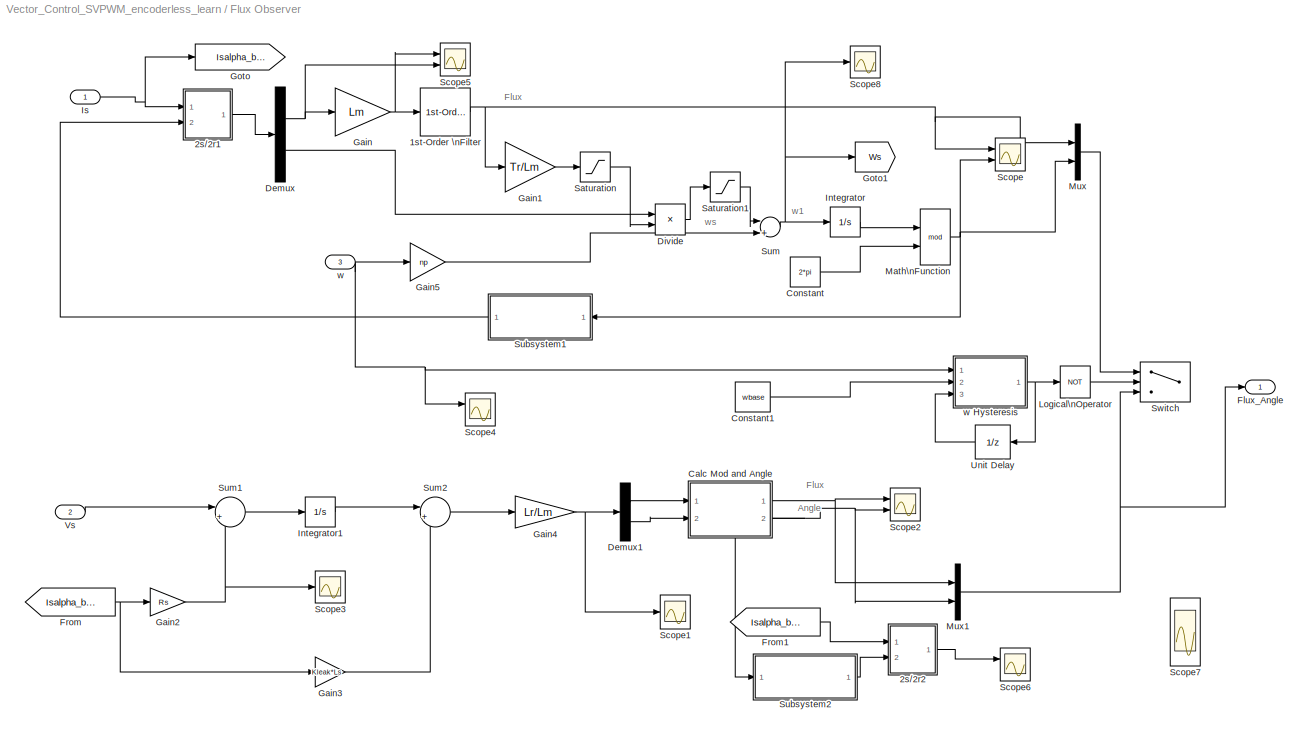
BLOCK [SubSystem] Flux Observer
  FunctionWithSeparateData = off
  MaskHideContents = off
  MinAlgLoopOccurrences = off
  Opaque = off
  Ports = [3, 1]
  PropExecContextOutsideSubsystem = off
  RTWSystemCode = Auto
  RequestExecContextInheritance = off
  SID = 4083
BLOCK [Reference] Flux Observer/1st-Order \nFilter  REF=powerlib_extras/Control \nBlocks/1st-Order \nFilter
  FilterType = Lowpass
  Initialize = off
  PlotResponse = off
  Ports = [1, 1]
  SID = 4087
  SourceBlock = powerlib_extras/Control \nBlocks/1st-Order \nFilter
  SourceType = First-Order Filter
  Tc = Tr
  Vac_Init = [0.8 -25 60]
  Vdc_Init = -0.4
  param1 = [1 500 1]
BLOCK [SubSystem] Flux Observer/2s//2r1
  FunctionWithSeparateData = off
  MaskHideContents = off
  MinAlgLoopOccurrences = off
  Opaque = off
  Ports = [2, 1]
  PropExecContextOutsideSubsystem = off
  RTWSystemCode = Auto
  RequestExecContextInheritance = off
  SID = 4088
BLOCK [Demux] Flux Observer/2s//2r1/Demux
  DisplayOption = bar
  Outputs = 2
  Ports = [1, 2]
  SID = 4091
BLOCK [Demux] Flux Observer/2s//2r1/Demux1
  DisplayOption = bar
  Outputs = 2
  Ports = [1, 2]
  SID = 4092
BLOCK [SubSystem] Flux Observer/2s//2r1/MATLAB Function
  ErrorFcn = Stateflow.Translate.translate
  FunctionWithSeparateData = off
  MaskDescription = Embedded MATLAB block
  MaskHideContents = off
  MaskIconFrame = on
  MaskIconOpaque = off
  MaskIconRotate = none
  MaskIconUnits = normalized
  MaskPortRotate = default
  MaskSelfModifiable = on
  MaskType = Stateflow
  MinAlgLoopOccurrences = off
  Opaque = off
  PermitHierarchicalResolution = ExplicitOnly
  Ports = [4, 2]
  PropExecContextOutsideSubsystem = off
  RTWSystemCode = Auto
  RequestExecContextInheritance = off
  SFBlockType = MATLAB Function
  SID = 4093
  TreatAsAtomicUnit = on
BLOCK [Demux] Flux Observer/2s//2r1/MATLAB Function/ Demux 
  Outputs = 1
  Ports = [1, 1]
  SID = 4093::20
BLOCK [S-Function] Flux Observer/2s//2r1/MATLAB Function/ SFunction 
  EnableBusSupport = on
  FunctionName = sf_sfun
  PortCounts = [4 3]
  Ports = [4, 3]
  SID = 4093::19
  Tag = Stateflow S-Function Vector_Control_SVPWM_encoderless_learn 9
BLOCK [Terminator] Flux Observer/2s//2r1/MATLAB Function/ Terminator 
  SID = 4093::22
BLOCK [Inport] Flux Observer/2s//2r1/MATLAB Function/Valpha
  IconDisplay = Port number
  SID = 4093::1
BLOCK [Inport] Flux Observer/2s//2r1/MATLAB Function/Vbeta
  IconDisplay = Port number
  Port = 2
  SID = 4093::23
BLOCK [Outport] Flux Observer/2s//2r1/MATLAB Function/Vd
  IconDisplay = Port number
  SID = 4093::5
BLOCK [Outport] Flux Observer/2s//2r1/MATLAB Function/Vq
  IconDisplay = Port number
  Port = 2
  SID = 4093::24
BLOCK [Inport] Flux Observer/2s//2r1/MATLAB Function/coswt
  IconDisplay = Port number
  Port = 4
  SID = 4093::26
BLOCK [Inport] Flux Observer/2s//2r1/MATLAB Function/sinwt
  IconDisplay = Port number
  Port = 3
  SID = 4093::25
BLOCK [Mux] Flux Observer/2s//2r1/Mux
  DisplayOption = bar
  Inputs = 2
  Ports = [2, 1]
  SID = 4094
BLOCK [Outport] Flux Observer/2s//2r1/dq
  IconDisplay = Port number
  SID = 4095
BLOCK [Inport] Flux Observer/2s//2r1/sin_cos
  IconDisplay = Port number
  Port = 2
  SID = 4090
BLOCK [Inport] Flux Observer/2s//2r1/αβ
  IconDisplay = Port number
  SID = 4089
BLOCK [SubSystem] Flux Observer/2s//2r2
  FunctionWithSeparateData = off
  MaskHideContents = off
  MinAlgLoopOccurrences = off
  Opaque = off
  Ports = [2, 1]
  PropExecContextOutsideSubsystem = off
  RTWSystemCode = Auto
  RequestExecContextInheritance = off
  SID = 4571
BLOCK [Demux] Flux Observer/2s//2r2/Demux
  DisplayOption = bar
  Outputs = 2
  Ports = [1, 2]
  SID = 4574
BLOCK [Demux] Flux Observer/2s//2r2/Demux1
  DisplayOption = bar
  Outputs = 2
  Ports = [1, 2]
  SID = 4575
BLOCK [SubSystem] Flux Observer/2s//2r2/MATLAB Function
  ErrorFcn = Stateflow.Translate.translate
  FunctionWithSeparateData = off
  MaskDescription = Embedded MATLAB block
  MaskHideContents = off
  MaskIconFrame = on
  MaskIconOpaque = off
  MaskIconRotate = none
  MaskIconUnits = normalized
  MaskPortRotate = default
  MaskSelfModifiable = on
  MaskType = Stateflow
  MinAlgLoopOccurrences = off
  Opaque = off
  PermitHierarchicalResolution = ExplicitOnly
  Ports = [4, 2]
  PropExecContextOutsideSubsystem = off
  RTWSystemCode = Auto
  RequestExecContextInheritance = off
  SFBlockType = MATLAB Function
  SID = 4576
  TreatAsAtomicUnit = on
BLOCK [Demux] Flux Observer/2s//2r2/MATLAB Function/ Demux 
  Outputs = 1
  Ports = [1, 1]
  SID = 4576::20
BLOCK [S-Function] Flux Observer/2s//2r2/MATLAB Function/ SFunction 
  EnableBusSupport = on
  FunctionName = sf_sfun
  PortCounts = [4 3]
  Ports = [4, 3]
  SID = 4576::19
  Tag = Stateflow S-Function Vector_Control_SVPWM_encoderless_learn 5
BLOCK [Terminator] Flux Observer/2s//2r2/MATLAB Function/ Terminator 
  SID = 4576::22
BLOCK [Inport] Flux Observer/2s//2r2/MATLAB Function/Valpha
  IconDisplay = Port number
  SID = 4576::1
BLOCK [Inport] Flux Observer/2s//2r2/MATLAB Function/Vbeta
  IconDisplay = Port number
  Port = 2
  SID = 4576::23
BLOCK [Outport] Flux Observer/2s//2r2/MATLAB Function/Vd
  IconDisplay = Port number
  SID = 4576::5
BLOCK [Outport] Flux Observer/2s//2r2/MATLAB Function/Vq
  IconDisplay = Port number
  Port = 2
  SID = 4576::24
BLOCK [Inport] Flux Observer/2s//2r2/MATLAB Function/coswt
  IconDisplay = Port number
  Port = 4
  SID = 4576::26
BLOCK [Inport] Flux Observer/2s//2r2/MATLAB Function/sinwt
  IconDisplay = Port number
  Port = 3
  SID = 4576::25
BLOCK [Mux] Flux Observer/2s//2r2/Mux
  DisplayOption = bar
  Inputs = 2
  Ports = [2, 1]
  SID = 4577
BLOCK [Outport] Flux Observer/2s//2r2/dq
  IconDisplay = Port number
  SID = 4578
BLOCK [Inport] Flux Observer/2s//2r2/sin_cos
  IconDisplay = Port number
  Port = 2
  SID = 4573
BLOCK [Inport] Flux Observer/2s//2r2/αβ
  IconDisplay = Port number
  SID = 4572
BLOCK [SubSystem] Flux Observer/Calc Mod and Angle
  ErrorFcn = Stateflow.Translate.translate
  FunctionWithSeparateData = off
  MaskDescription = Embedded MATLAB block
  MaskHideContents = off
  MaskIconFrame = on
  MaskIconOpaque = off
  MaskIconRotate = none
  MaskIconUnits = normalized
  MaskPortRotate = default
  MaskSelfModifiable = on
  MaskType = Stateflow
  MinAlgLoopOccurrences = off
  Opaque = off
  PermitHierarchicalResolution = ExplicitOnly
  Ports = [2, 2]
  PropExecContextOutsideSubsystem = off
  RTWSystemCode = Auto
  RequestExecContextInheritance = off
  SFBlockType = MATLAB Function
  SID = 4096
  TreatAsAtomicUnit = on
BLOCK [Demux] Flux Observer/Calc Mod and Angle/ Demux 
  Outputs = 1
  Ports = [1, 1]
  SID = 4096::20
BLOCK [S-Function] Flux Observer/Calc Mod and Angle/ SFunction 
  EnableBusSupport = on
  FunctionName = sf_sfun
  PortCounts = [2 3]
  Ports = [2, 3]
  SID = 4096::19
  Tag = Stateflow S-Function Vector_Control_SVPWM_encoderless_learn 14
BLOCK [Terminator] Flux Observer/Calc Mod and Angle/ Terminator 
  SID = 4096::22
BLOCK [Outport] Flux Observer/Calc Mod and Angle/Angle
  IconDisplay = Port number
  Port = 2
  SID = 4096::24
BLOCK [Outport] Flux Observer/Calc Mod and Angle/Mod
  IconDisplay = Port number
  SID = 4096::5
BLOCK [Inport] Flux Observer/Calc Mod and Angle/Valpha
  IconDisplay = Port number
  SID = 4096::1
BLOCK [Inport] Flux Observer/Calc Mod and Angle/Vbeta
  IconDisplay = Port number
  Port = 2
  SID = 4096::23
BLOCK [Constant] Flux Observer/Constant
  SID = 4097
  Value = 2*pi
BLOCK [Constant] Flux Observer/Constant1
  SID = 4098
  Value = wbase
BLOCK [Demux] Flux Observer/Demux
  DisplayOption = bar
  Outputs = 2
  Ports = [1, 2]
  SID = 4099
BLOCK [Demux] Flux Observer/Demux1
  DisplayOption = bar
  Outputs = 2
  Ports = [1, 2]
  SID = 4100
BLOCK [Product] Flux Observer/Divide
  InputSameDT = off
  Inputs = */
  OutDataTypeStr = Inherit: Inherit via internal rule
  Ports = [2, 1]
  RndMeth = Floor
  SID = 4101
  SaturateOnIntegerOverflow = off
BLOCK [Outport] Flux Observer/Flux_Angle
  IconDisplay = Port number
  SID = 4132
BLOCK [From] Flux Observer/From
  GotoTag = Isalpha_beta
  SID = 4102
BLOCK [From] Flux Observer/From1
  GotoTag = Isalpha_beta
  SID = 4579
BLOCK [Gain] Flux Observer/Gain
  Gain = Lm
  OutDataTypeStr = Inherit: Inherit via internal rule
  ParamDataTypeStr = Inherit: Inherit via internal rule
  SID = 4103
  SaturateOnIntegerOverflow = off
BLOCK [Gain] Flux Observer/Gain1
  Gain = Tr/Lm
  OutDataTypeStr = Inherit: Inherit via internal rule
  ParamDataTypeStr = Inherit: Inherit via internal rule
  SID = 4104
  SaturateOnIntegerOverflow = off
BLOCK [Gain] Flux Observer/Gain2
  Gain = Rs
  OutDataTypeStr = Inherit: Inherit via internal rule
  ParamDataTypeStr = Inherit: Inherit via internal rule
  SID = 4105
  SaturateOnIntegerOverflow = off
BLOCK [Gain] Flux Observer/Gain3
  Gain = Kleak*Ls
  OutDataTypeStr = Inherit: Inherit via internal rule
  ParamDataTypeStr = Inherit: Inherit via internal rule
  SID = 4106
  SaturateOnIntegerOverflow = off
BLOCK [Gain] Flux Observer/Gain4
  Gain = Lr/Lm
  OutDataTypeStr = Inherit: Inherit via internal rule
  ParamDataTypeStr = Inherit: Inherit via internal rule
  SID = 4107
  SaturateOnIntegerOverflow = off
BLOCK [Gain] Flux Observer/Gain5
  Gain = np
  OutDataTypeStr = Inherit: Inherit via internal rule
  ParamDataTypeStr = Inherit: Inherit via internal rule
  SID = 4599
  SaturateOnIntegerOverflow = off
BLOCK [Goto] Flux Observer/Goto
  GotoTag = Isalpha_beta
  SID = 4108
BLOCK [Goto] Flux Observer/Goto1
  GotoTag = Ws
  SID = 4541
  TagVisibility = global
BLOCK [Integrator] Flux Observer/Integrator
  InitialCondition = 0.1
  Ports = [1, 1]
  SID = 4109
BLOCK [Integrator] Flux Observer/Integrator1
  Ports = [1, 1]
  SID = 4110
BLOCK [Inport] Flux Observer/Is
  IconDisplay = Port number
  SID = 4084
BLOCK [Logic] Flux Observer/Logical\nOperator
  AllPortsSameDT = off
  Operator = NOT
  OutDataTypeStr = boolean
  Ports = [1, 1]
  SID = 4111
BLOCK [Math] Flux Observer/Math\nFunction
  Operator = mod
  Ports = [2, 1]
  SID = 4112
BLOCK [Mux] Flux Observer/Mux
  DisplayOption = bar
  Inputs = 2
  Ports = [2, 1]
  SID = 4113
BLOCK [Mux] Flux Observer/Mux1
  DisplayOption = bar
  Inputs = 2
  Ports = [2, 1]
  SID = 4114
BLOCK [Saturate] Flux Observer/Saturation
  InputPortMap = u0
  LowerLimit = 0.0001
  Ports = [1, 1]
  SID = 4115
  UpperLimit = 1e3
BLOCK [Saturate] Flux Observer/Saturation1
  InputPortMap = u0
  LowerLimit = 0
  Ports = [1, 1]
  SID = 4589
  UpperLimit = 0.1*wbase
BLOCK [Scope] Flux Observer/Scope
  DataFormat = StructureWithTime
  Floating = off
  LimitDataPoints = off
  NumInputPorts = 2
  Ports = [2]
  SID = 4116
  SampleTime = 0
  SaveName = ScopeData2
  ShowLegends = off
  YMax = 5~5
  YMin = -5~-5
  ZoomMode = yonly
BLOCK [Scope] Flux Observer/Scope1
  DataFormat = StructureWithTime
  Floating = off
  LimitDataPoints = off
  NumInputPorts = 1
  Ports = [1]
  SID = 4117
  SampleTime = 0
  SaveName = ScopeData8
  ShowLegends = off
  ZoomMode = xonly
BLOCK [Scope] Flux Observer/Scope2
  DataFormat = StructureWithTime
  Floating = off
  LimitDataPoints = off
  NumInputPorts = 2
  Ports = [2]
  SID = 4118
  SampleTime = 0
  SaveName = ScopeData9
  ShowLegends = off
  YMax = 5~5
  YMin = -5~-5
  ZoomMode = xonly
BLOCK [Scope] Flux Observer/Scope3
  DataFormat = StructureWithTime
  Floating = off
  LimitDataPoints = off
  NumInputPorts = 1
  Ports = [1]
  SID = 4119
  SampleTime = 0
  SaveName = ScopeData10
  ShowLegends = off
BLOCK [Scope] Flux Observer/Scope4
  DataFormat = StructureWithTime
  Floating = off
  LimitDataPoints = off
  NumInputPorts = 2
  Ports = [2]
  SID = 4164
  SampleTime = 0
  SaveName = ScopeData1
  ShowLegends = off
  YMax = 5~5
  YMin = -5~-5
  ZoomMode = xonly
BLOCK [Scope] Flux Observer/Scope5
  DataFormat = StructureWithTime
  Floating = off
  LimitDataPoints = off
  NumInputPorts = 2
  Ports = [2]
  SID = 4569
  SampleTime = 0
  SaveName = ScopeData7
  ShowLegends = off
  YMax = 5~5
  YMin = -5~-5
  ZoomMode = yonly
BLOCK [Scope] Flux Observer/Scope6
  DataFormat = StructureWithTime
  Floating = off
  LimitDataPoints = off
  NumInputPorts = 2
  Ports = [2]
  SID = 4586
  SampleTime = 0
  SaveName = ScopeData12
  ShowLegends = off
  YMax = 7.75~5
  YMin = 4.75~-5
  ZoomMode = yonly
BLOCK [Scope] Flux Observer/Scope7
  DataFormat = StructureWithTime
  Floating = off
  LimitDataPoints = off
  NumInputPorts = 3
  Ports = [3]
  SID = 4593
  SampleTime = 0
  SaveName = ScopeData13
  ShowLegends = off
  YMax = 5.5~125~5
  YMin = -1~70~-5
  ZoomMode = yonly
BLOCK [Scope] Flux Observer/Scope8
  DataFormat = StructureWithTime
  Floating = off
  LimitDataPoints = off
  NumInputPorts = 1
  Ports = [1]
  SID = 4588
  SampleTime = 0
  SaveName = ScopeData14
  ShowLegends = off
  YMax = 107
  YMin = 104.6
  ZoomMode = yonly
BLOCK [SubSystem] Flux Observer/Subsystem1
  FunctionWithSeparateData = off
  MaskHideContents = off
  MinAlgLoopOccurrences = off
  Opaque = off
  Ports = [1, 1]
  PropExecContextOutsideSubsystem = off
  RTWSystemCode = Auto
  RequestExecContextInheritance = off
  SID = 4120
BLOCK [Mux] Flux Observer/Subsystem1/Mux
  DisplayOption = bar
  Inputs = 2
  Ports = [2, 1]
  SID = 4122
BLOCK [Trigonometry] Flux Observer/Subsystem1/Trigonometric\nFunction
  Ports = [1, 1]
  SID = 4123
BLOCK [Trigonometry] Flux Observer/Subsystem1/Trigonometric\nFunction1
  Operator = cos
  Ports = [1, 1]
  SID = 4124
BLOCK [Inport] Flux Observer/Subsystem1/phi
  IconDisplay = Port number
  SID = 4121
BLOCK [Outport] Flux Observer/Subsystem1/sin_cosphi
  IconDisplay = Port number
  SID = 4125
BLOCK [SubSystem] Flux Observer/Subsystem2
  FunctionWithSeparateData = off
  MaskHideContents = off
  MinAlgLoopOccurrences = off
  Opaque = off
  Ports = [1, 1]
  PropExecContextOutsideSubsystem = off
  RTWSystemCode = Auto
  RequestExecContextInheritance = off
  SID = 4580
BLOCK [Mux] Flux Observer/Subsystem2/Mux
  DisplayOption = bar
  Inputs = 2
  Ports = [2, 1]
  SID = 4582
BLOCK [Trigonometry] Flux Observer/Subsystem2/Trigonometric\nFunction
  Ports = [1, 1]
  SID = 4583
BLOCK [Trigonometry] Flux Observer/Subsystem2/Trigonometric\nFunction1
  Operator = cos
  Ports = [1, 1]
  SID = 4584
BLOCK [Inport] Flux Observer/Subsystem2/phi
  IconDisplay = Port number
  SID = 4581
BLOCK [Outport] Flux Observer/Subsystem2/sin_cosphi
  IconDisplay = Port number
  SID = 4585
BLOCK [Sum] Flux Observer/Sum
  InputSameDT = off
  Inputs = |++
  OutDataTypeStr = Inherit: Inherit via internal rule
  Ports = [2, 1]
  SID = 4126
  SaturateOnIntegerOverflow = off
BLOCK [Sum] Flux Observer/Sum1
  IconShape = round
  InputSameDT = off
  Inputs = |+-
  OutDataTypeStr = Inherit: Inherit via internal rule
  Ports = [2, 1]
  SID = 4127
  SaturateOnIntegerOverflow = off
BLOCK [Sum] Flux Observer/Sum2
  IconShape = round
  InputSameDT = off
  Inputs = |+-
  OutDataTypeStr = Inherit: Inherit via internal rule
  Ports = [2, 1]
  SID = 4128
  SaturateOnIntegerOverflow = off
BLOCK [Switch] Flux Observer/Switch
  InputSameDT = off
  SID = 4129
  SaturateOnIntegerOverflow = off
BLOCK [UnitDelay] Flux Observer/Unit Delay
  InputProcessing = Elements as channels (sample based)
  SID = 4130
  SampleTime = -1
BLOCK [Inport] Flux Observer/Vs
  IconDisplay = Port number
  Port = 2
  SID = 4085
BLOCK [Inport] Flux Observer/w
  IconDisplay = Port number
  Port = 3
  SID = 4086
BLOCK [SubSystem] Flux Observer/w Hysteresis
  ErrorFcn = Stateflow.Translate.translate
  FunctionWithSeparateData = off
  MaskDescription = Embedded MATLAB block
  MaskHideContents = off
  MaskIconFrame = on
  MaskIconOpaque = off
  MaskIconRotate = none
  MaskIconUnits = normalized
  MaskPortRotate = default
  MaskSelfModifiable = on
  MaskType = Stateflow
  MinAlgLoopOccurrences = off
  Opaque = off
  PermitHierarchicalResolution = ExplicitOnly
  Ports = [3, 1]
  PropExecContextOutsideSubsystem = off
  RTWSystemCode = Auto
  RequestExecContextInheritance = off
  SFBlockType = MATLAB Function
  SID = 4131
  TreatAsAtomicUnit = on
BLOCK [Demux] Flux Observer/w Hysteresis/ Demux 
  Outputs = 1
  Ports = [1, 1]
  SID = 4131::20
BLOCK [S-Function] Flux Observer/w Hysteresis/ SFunction 
  EnableBusSupport = on
  FunctionName = sf_sfun
  PortCounts = [3 2]
  Ports = [3, 2]
  SID = 4131::19
  Tag = Stateflow S-Function Vector_Control_SVPWM_encoderless_learn 15
BLOCK [Terminator] Flux Observer/w Hysteresis/ Terminator 
  SID = 4131::22
BLOCK [Inport] Flux Observer/w Hysteresis/u
  IconDisplay = Port number
  SID = 4131::1
BLOCK [Inport] Flux Observer/w Hysteresis/ubase
  IconDisplay = Port number
  Port = 2
  SID = 4131::23
BLOCK [Outport] Flux Observer/w Hysteresis/y
  IconDisplay = Port number
  SID = 4131::5
BLOCK [Inport] Flux Observer/w Hysteresis/ybak
  IconDisplay = Port number
  Port = 3
  SID = 4131::24
BLOCK [From] From
  GotoTag = is_alpha
  SID = 3797
  TagVisibility = global
BLOCK [From] From1
  GotoTag = is_beta
  SID = 3798
  TagVisibility = global
BLOCK [From] From10
  CloseFcn = tagdialog Close
  GotoTag = speed
  SID = 4647
  TagVisibility = global
BLOCK [From] From12
  GotoTag = Flux_Angle
  SID = 4508
BLOCK [From] From2
  GotoTag = us_alpha
  SID = 3799
  TagVisibility = global
BLOCK [From] From3
  GotoTag = us_beta
  SID = 3800
  TagVisibility = global
BLOCK [From] From4
  CloseFcn = tagdialog Close
  GotoTag = UDC
  SID = 927
  TagVisibility = global
BLOCK [From] From5
  GotoTag = speed
  SID = 3801
  TagVisibility = global
BLOCK [From] From6
  CloseFcn = tagdialog Close
  GotoTag = Ualpha
  SID = 4655
BLOCK [From] From7
  CloseFcn = tagdialog Close
  GotoTag = Ubeta
  SID = 4656
BLOCK [From] From8
  GotoTag = is_alpha
  SID = 4504
  TagVisibility = global
BLOCK [From] From9
  GotoTag = is_beta
  SID = 4505
  TagVisibility = global
BLOCK [Gain] Gain1
  Gain = -1
  OutDataTypeStr = Inherit: Inherit via internal rule
  ParamDataTypeStr = Inherit: Inherit via internal rule
  SID = 965
  SaturateOnIntegerOverflow = off
BLOCK [Gain] Gain2
  OutDataTypeStr = Inherit: Inherit via internal rule
  ParamDataTypeStr = Inherit: Inherit via internal rule
  SID = 969
  SaturateOnIntegerOverflow = off
BLOCK [Gain] Gain3
  Gain = -1
  OutDataTypeStr = Inherit: Inherit via internal rule
  ParamDataTypeStr = Inherit: Inherit via internal rule
  SID = 971
  SaturateOnIntegerOverflow = off
BLOCK [Gain] Gain4
  OutDataTypeStr = Inherit: Inherit via internal rule
  ParamDataTypeStr = Inherit: Inherit via internal rule
  SID = 964
  SaturateOnIntegerOverflow = off
BLOCK [Gain] Gain5
  OutDataTypeStr = Inherit: Inherit via internal rule
  ParamDataTypeStr = Inherit: Inherit via internal rule
  SID = 1132
  SaturateOnIntegerOverflow = off
BLOCK [Gain] Gain6
  Gain = -1
  OutDataTypeStr = Inherit: Inherit via internal rule
  ParamDataTypeStr = Inherit: Inherit via internal rule
  SID = 1133
  SaturateOnIntegerOverflow = off
BLOCK [Goto] Goto
  GotoTag = speed
  SID = 5
  TagVisibility = global
BLOCK [Goto] Goto1
  GotoTag = Wr_fb
  SID = 4148
  TagVisibility = global
BLOCK [Goto] Goto10
  GotoTag = Flux_Angle
  SID = 4445
BLOCK [Goto] Goto11
  GotoTag = Ualpha
  SID = 4653
BLOCK [Goto] Goto12
  GotoTag = Ubeta
  SID = 4654
BLOCK [Goto] Goto2
  GotoTag = Te
  SID = 627
  TagVisibility = global
BLOCK [Goto] Goto3
  GotoTag = UDC
  SID = 926
  TagVisibility = global
BLOCK [Goto] Goto4
  GotoTag = phir_alpha
  SID = 966
  TagVisibility = global
BLOCK [Goto] Goto5
  GotoTag = phir_beta
  SID = 967
  TagVisibility = global
BLOCK [Goto] Goto6
  GotoTag = is_alpha
  SID = 970
  TagVisibility = global
BLOCK [Goto] Goto7
  GotoTag = is_beta
  SID = 972
  TagVisibility = global
BLOCK [Goto] Goto8
  GotoTag = us_alpha
  SID = 1134
  TagVisibility = global
BLOCK [Goto] Goto9
  GotoTag = us_beta
  SID = 1135
  TagVisibility = global
BLOCK [Reference] Induction Motor\n50 HP // 460 V  REF=powerlib/Machines/Asynchronous Machine\nSI Units
  AttributesFormatString = \\n
  Cage1 = [ 0.022 0.226/377]
  Cage2 = [ 0.022 0.226/377]
  InitialConditions = [1, 0 ,  0 , 0 , 0 , 0 , 0 , 0 ]
  IterativeModel = Forward Euler
  Lm = 188.2e-3
  LoadFlowParameters = 0
  Mechanical = [0.3 0.01 2]
  MechanicalLoad = Torque Tm
  NominalParameters = [2200, 380, 50]
  Pmec = 0
  PolePairs = 2
  Ports = [1, 1, 0, 0, 0, 3]
  PresetModel = No
  ReferenceFrame = Stationary
  Rotor = [3.11 11.8e-3]
  RotorType = Squirrel-cage
  SID = 8
  Saturation = [0.6883 0.9028 1.1135 1.2559 1.3970 1.7538 2.1504 2.4988 2.6956 3.0579 3.7375 4.2552 5.1653 5.8110 6.5024;74.1928 98.0992 121.6600 137.3550 152.7109 190.0931 228.8721 259.2975 274.7375 301.8574 342.5384 366.6332 399.5942 417.9914 434.8974]
  ShowDetailedParameters = on
  SimulateSaturation = off
  SourceBlock = powerlib/Machines/Asynchronous Machine\nSI Units
  SourceType = Asynchronous Machine
  Stator = [2.76 11.8e-3]
  TsBlock = Ts
  TsPowergui = 0
  Units = SI
BLOCK [Delay] Integer Delay1
  InitialCondition = 0
  InputPortMap = u0
  InputProcessing = Inherited
  Ports = [1, 1]
  SID = 787
  SampleTime = Ts
BLOCK [Delay] Integer Delay3
  DelayLength = 1
  InitialCondition = 0
  InputPortMap = u0
  InputProcessing = Inherited
  Ports = [1, 1]
  SID = 929
  SampleTime = Ts
BLOCK [Mux] Mux
  DisplayOption = bar
  Ports = [4, 1]
  SID = 3005
BLOCK [Mux] Mux1
  DisplayOption = bar
  Inputs = 2
  Ports = [2, 1]
  SID = 3796
BLOCK [Mux] Mux2
  DisplayOption = bar
  Inputs = 2
  Ports = [2, 1]
  SID = 3802
BLOCK [Mux] Mux3
  DisplayOption = bar
  Inputs = 2
  Ports = [2, 1]
  SID = 4509
BLOCK [Reference] Parallel RLC Branch  REF=powerlib/Elements/Parallel RLC Branch
  AttributesFormatString = \\n
  BranchType = RC
  Capacitance = 330e-6*5
  Inductance = 1e-3
  InitialCurrent = 0
  InitialVoltage = 530
  LConnTagsString = a
  Measurements = None
  Ports = [0, 0, 0, 0, 0, 1, 1]
  RConnTagsString = __new0
  Resistance = 330e3
  SID = 905
  SetiL0 = off
  Setx0 = on
  SourceBlock = powerlib/Elements/Parallel RLC Branch
  SourceType = Parallel RLC Branch
BLOCK [SubSystem] SVPWM
  FunctionWithSeparateData = off
  MaskEnableString = on
  MaskHideContents = off
  MaskIconFrame = on
  MaskIconOpaque = on
  MaskIconRotate = none
  MaskIconUnits = autoscale
  MaskPortRotate = default
  MaskPromptString = Dead Time (s)
  MaskStyleString = edit
  MaskToolTipString = on
  MaskTunableValueString = on
  MaskValueString = 2e-6
  MaskVariables = DT=@1;
  MaskVisibilityString = on
  MinAlgLoopOccurrences = off
  Opaque = off
  Ports = [2, 1]
  PropExecContextOutsideSubsystem = off
  RTWSystemCode = Auto
  RequestExecContextInheritance = off
  SID = 839
BLOCK [Bias] SVPWM/Bias
  Bias = 1
  SID = 842
  SaturateOnIntegerOverflow = off
BLOCK [Bias] SVPWM/Bias1
  Bias = 1
  SID = 843
  SaturateOnIntegerOverflow = off
BLOCK [Bias] SVPWM/Bias2
  Bias = 1
  SID = 844
  SaturateOnIntegerOverflow = off
BLOCK [SubSystem] SVPWM/Delay
  ErrorFcn = Stateflow.Translate.translate
  FunctionWithSeparateData = off
  MaskDescription = Embedded MATLAB block
  MaskDisplay = bgColor = Simulink.Root.ColorString2Rgb(get_param(gcbh, 'BackgroundColor')); image(imread('private/eml_membrane_16.png','png','BackgroundColor',bgColor(1:3)),'center'); disp([10 10 'D']);
  MaskHideContents = off
  MaskIconFrame = on
  MaskIconOpaque = off
  MaskIconRotate = none
  MaskIconUnits = normalized
  MaskPortRotate = default
  MaskSelfModifiable = on
  MaskType = Stateflow
  MinAlgLoopOccurrences = off
  Opaque = off
  PermitHierarchicalResolution = ExplicitOnly
  Ports = [4, 3]
  PropExecContextOutsideSubsystem = off
  RTWSystemCode = Auto
  RequestExecContextInheritance = off
  SFBlockType = MATLAB Function
  SID = 845
  TreatAsAtomicUnit = on
BLOCK [Demux] SVPWM/Delay/ Demux 
  Outputs = 1
  Ports = [1, 1]
  SID = 845::16
BLOCK [S-Function] SVPWM/Delay/ SFunction 
  EnableBusSupport = on
  FunctionName = sf_sfun
  PortCounts = [4 4]
  Ports = [4, 4]
  SID = 845::15
  Tag = Stateflow S-Function Vector_Control_SVPWM_encoderless_learn 4
BLOCK [Terminator] SVPWM/Delay/ Terminator 
  SID = 845::18
BLOCK [Inport] SVPWM/Delay/Sn
  IconDisplay = Port number
  Port = 4
  SID = 845::4
BLOCK [Inport] SVPWM/Delay/T0
  IconDisplay = Port number
  Port = 3
  SID = 845::3
BLOCK [Inport] SVPWM/Delay/T1
  IconDisplay = Port number
  SID = 845::1
BLOCK [Inport] SVPWM/Delay/T2
  IconDisplay = Port number
  Port = 2
  SID = 845::2
BLOCK [Outport] SVPWM/Delay/Tcma
  IconDisplay = Port number
  SID = 845::8
BLOCK [Outport] SVPWM/Delay/Tcmb
  IconDisplay = Port number
  Port = 2
  SID = 845::9
BLOCK [Outport] SVPWM/Delay/Tcmc
  IconDisplay = Port number
  Port = 3
  SID = 845::10
BLOCK [From] SVPWM/From4
  CloseFcn = tagdialog Close
  GotoTag = UDC
  SID = 928
  TagVisibility = global
BLOCK [Gain] SVPWM/Gain
  Gain = -1
  OutDataTypeStr = Inherit: Inherit via internal rule
  ParamDataTypeStr = Inherit: Inherit via internal rule
  SID = 846
  SaturateOnIntegerOverflow = off
BLOCK [Gain] SVPWM/Gain1
  Gain = -1
  OutDataTypeStr = Inherit: Inherit via internal rule
  ParamDataTypeStr = Inherit: Inherit via internal rule
  SID = 847
  SaturateOnIntegerOverflow = off
BLOCK [Gain] SVPWM/Gain2
  Gain = -1
  OutDataTypeStr = Inherit: Inherit via internal rule
  ParamDataTypeStr = Inherit: Inherit via internal rule
  SID = 848
  SaturateOnIntegerOverflow = off
BLOCK [Goto] SVPWM/Goto2
  GotoTag = pulse1
  SID = 956
  TagVisibility = global
BLOCK [Mux] SVPWM/Mux
  DisplayOption = bar
  Inputs = 6
  Ports = [6, 1]
  SID = 849
BLOCK [Outport] SVPWM/PWM
  IconDisplay = Port number
  SID = 860
BLOCK [Relay] SVPWM/Relay
  OffSwitchValue = 0
  OnSwitchValue = 0
  SID = 851
BLOCK [Relay] SVPWM/Relay1
  OffSwitchValue = 0
  OnSwitchValue = 0
  SID = 852
BLOCK [Relay] SVPWM/Relay2
  OffSwitchValue = 0
  OnSwitchValue = 0
  SID = 853
BLOCK [Reference] SVPWM/Repeating\nSequence  REF=simulink/Sources/Repeating\nSequence
  Ports = [0, 1]
  SID = 854
  SourceBlock = simulink/Sources/Repeating\nSequence
  SourceType = Repeating table
  rep_seq_t = [0 1/5000/2 1/5000]
  rep_seq_y = [0 1/5000/2 0]
BLOCK [Scope] SVPWM/Scope
  DataFormat = StructureWithTime
  Floating = off
  LimitDataPoints = off
  NumInputPorts = 3
  Ports = [3]
  SID = 4595
  SampleTime = 0
  SaveName = ScopeData16
  ShowLegends = off
  YMax = 5~5~5
  YMin = -5~-5~-5
  ZoomMode = xonly
BLOCK [SubSystem] SVPWM/Sn
  ErrorFcn = Stateflow.Translate.translate
  FunctionWithSeparateData = off
  MaskDescription = Embedded MATLAB block
  MaskDisplay = bgColor = Simulink.Root.ColorString2Rgb(get_param(gcbh, 'BackgroundColor')); image(imread('private/eml_membrane_16.png','png','BackgroundColor',bgColor(1:3)),'center'); disp([10 10 'S']);
  MaskHideContents = off
  MaskIconFrame = on
  MaskIconOpaque = off
  MaskIconRotate = none
  MaskIconUnits = normalized
  MaskPortRotate = default
  MaskSelfModifiable = on
  MaskType = Stateflow
  MinAlgLoopOccurrences = off
  Opaque = off
  PermitHierarchicalResolution = ExplicitOnly
  Ports = [2, 1]
  PropExecContextOutsideSubsystem = off
  RTWSystemCode = Auto
  RequestExecContextInheritance = off
  SFBlockType = MATLAB Function
  SID = 855
  TreatAsAtomicUnit = on
BLOCK [Demux] SVPWM/Sn/ Demux 
  Outputs = 1
  Ports = [1, 1]
  SID = 855::12
BLOCK [S-Function] SVPWM/Sn/ SFunction 
  EnableBusSupport = on
  FunctionName = sf_sfun
  PortCounts = [2 2]
  Ports = [2, 2]
  SID = 855::11
  Tag = Stateflow S-Function Vector_Control_SVPWM_encoderless_learn 1
BLOCK [Terminator] SVPWM/Sn/ Terminator 
  SID = 855::14
BLOCK [Outport] SVPWM/Sn/Sn
  IconDisplay = Port number
  SID = 855::6
BLOCK [Inport] SVPWM/Sn/Ux
  IconDisplay = Port number
  SID = 855::1
BLOCK [Inport] SVPWM/Sn/Uy
  IconDisplay = Port number
  Port = 2
  SID = 855::2
BLOCK [Sum] SVPWM/Sum
  IconShape = round
  InputSameDT = off
  Inputs = |-+
  OutDataTypeStr = Inherit: Inherit via internal rule
  Ports = [2, 1]
  SID = 856
  SaturateOnIntegerOverflow = off
BLOCK [Sum] SVPWM/Sum1
  IconShape = round
  InputSameDT = off
  Inputs = |-+
  OutDataTypeStr = Inherit: Inherit via internal rule
  Ports = [2, 1]
  SID = 857
  SaturateOnIntegerOverflow = off
BLOCK [Sum] SVPWM/Sum2
  IconShape = round
  InputSameDT = off
  Inputs = |-+
  OutDataTypeStr = Inherit: Inherit via internal rule
  Ports = [2, 1]
  SID = 858
  SaturateOnIntegerOverflow = off
BLOCK [SubSystem] SVPWM/TxTyT0
  ErrorFcn = Stateflow.Translate.translate
  FunctionWithSeparateData = off
  MaskDescription = Embedded MATLAB block
  MaskDisplay = bgColor = Simulink.Root.ColorString2Rgb(get_param(gcbh, 'BackgroundColor')); image(imread('private/eml_membrane_16.png','png','BackgroundColor',bgColor(1:3)),'center'); disp([10 10 'T']);
  MaskHideContents = off
  MaskIconFrame = on
  MaskIconOpaque = off
  MaskIconRotate = none
  MaskIconUnits = normalized
  MaskPortRotate = default
  MaskSelfModifiable = on
  MaskType = Stateflow
  MinAlgLoopOccurrences = off
  Opaque = off
  PermitHierarchicalResolution = ExplicitOnly
  Ports = [4, 3]
  PropExecContextOutsideSubsystem = off
  RTWSystemCode = Auto
  RequestExecContextInheritance = off
  SFBlockType = MATLAB Function
  SID = 859
  TreatAsAtomicUnit = on
BLOCK [Demux] SVPWM/TxTyT0/ Demux 
  Outputs = 1
  Ports = [1, 1]
  SID = 859::16
BLOCK [S-Function] SVPWM/TxTyT0/ SFunction 
  EnableBusSupport = on
  FunctionName = sf_sfun
  PortCounts = [4 4]
  Ports = [4, 4]
  SID = 859::15
  Tag = Stateflow S-Function Vector_Control_SVPWM_encoderless_learn 3
BLOCK [Terminator] SVPWM/TxTyT0/ Terminator 
  SID = 859::18
BLOCK [Inport] SVPWM/TxTyT0/Sn
  IconDisplay = Port number
  Port = 3
  SID = 859::3
BLOCK [Outport] SVPWM/TxTyT0/T0
  IconDisplay = Port number
  Port = 3
  SID = 859::9
BLOCK [Outport] SVPWM/TxTyT0/T1
  IconDisplay = Port number
  SID = 859::7
BLOCK [Outport] SVPWM/TxTyT0/T2
  IconDisplay = Port number
  Port = 2
  SID = 859::8
BLOCK [Inport] SVPWM/TxTyT0/UDC
  IconDisplay = Port number
  Port = 4
  SID = 859::14
BLOCK [Inport] SVPWM/TxTyT0/Ux
  IconDisplay = Port number
  SID = 859::1
BLOCK [Inport] SVPWM/TxTyT0/Uy
  IconDisplay = Port number
  Port = 2
  SID = 859::2
BLOCK [Inport] SVPWM/Ux
  IconDisplay = Port number
  SID = 840
BLOCK [Inport] SVPWM/Uy
  IconDisplay = Port number
  Port = 2
  SID = 841
BLOCK [Reference] SVPWM/d1  REF=powerlib_extras/Discrete \nControl Blocks/Discrete\nOn//Off Delay
  Ports = [1, 1]
  SID = 938
  SourceBlock = powerlib_extras/Discrete \nControl Blocks/Discrete\nOn//Off Delay
  SourceType = Discrete On/Off Delay
  Ts = Ts
  delay = DT
  ic = 0
  type_delay = On delay
BLOCK [Scope] Scope
  DataFormat = StructureWithTime
  Decimation = resolute
  Floating = off
  LimitDataPoints = off
  NumInputPorts = 4
  Ports = [4]
  SID = 11
  SampleTime = 5e-6
  ShowLegends = off
  TimeRange = 1
  YMax = -180~15~60~44.5
  YMin = -310~-12.5~0~36
  ZoomMode = yonly
BLOCK [Scope] Scope1
  DataFormat = StructureWithTime
  Floating = off
  LimitDataPoints = off
  NumInputPorts = 2
  Ports = [2]
  SID = 4689
  SampleTime = 0
  SaveName = ScopeData23
  ShowLegends = off
  YMax = 5~5
  YMin = -5~-5
BLOCK [Step] Speed\nstep
  After = -5
  Before = 5
  SID = 12
  SampleTime = Ts
BLOCK [Reference] Three-Phase Source  REF=powerlib/Electrical\nSources/Three-Phase Source
  BaseVoltage = 380
  BusType = swing
  Frequency = 50
  Inductance = 1e-6
  InternalConnection = Yg
  PhaseAngle = 0
  Ports = [0, 0, 0, 0, 0, 0, 3]
  Pref = 0
  Qmax = inf
  Qmin = -inf
  Qref = 0
  Resistance = 1e-5
  SID = 908
  ShortCircuitLevel = 1e8
  SourceBlock = powerlib/Electrical\nSources/Three-Phase Source
  SourceType = Three-Phase Source
  SpecifyImpedance = off
  Voltage = 380
  XRratio = 0.1
BLOCK [Reference] Torque\nselection\n(N.m)  REF=simulink/Signal\nRouting/Manual Switch
  Ports = [2, 1]
  SID = 13
  SourceBlock = simulink/Signal\nRouting/Manual Switch
  SourceType = Manual Switch
  action = 0
  sw = 1
  varsize = off
BLOCK [Step] Torque\nstep
  After = 5
  SID = 14
  SampleTime = Ts
BLOCK [Reference] Universal Bridge  REF=powerlib/Power\nElectronics/Universal Bridge
  Arms = 3
  Device = Diodes
  ForwardVoltage = 0.7
  ForwardVoltages = [  0  0  ]
  GTOparameters = [ 10e-6 , 20e-6 ]
  IGBTparameters = [ 1e-6 , 2e-6 ]
  Lon = 20e-9
  Measurements = None
  Measurements_2 = None
  Ports = [0, 0, 0, 0, 0, 3, 2]
  Ron = 1e-3
  SID = 911
  SnubberCapacitance = 1e-6
  SnubberResistance = 1e5
  SourceBlock = powerlib/Power\nElectronics/Universal Bridge
  SourceType = Universal Bridge
  converterType = Rectifier
BLOCK [SubSystem] Vector Control1
  FunctionWithSeparateData = off
  MaskCallbackString = |||||
  MaskEnableString = on,on,on,on,on,on
  MaskHideContents = off
  MaskIconFrame = on
  MaskIconOpaque = on
  MaskIconRotate = none
  MaskIconUnits = autoscale
  MaskInitialization = Lr=Ls\nRr=Lr/Tr\nLm=sqrt((1-lou)*Ls*Lr)\nTstator=Ls/Rs\nA=((Tstator+Tr)-sqrt((Tstator+Tr)^2-4*lou*Tstator*Tr))/2/lou/Tstator/Tr\nB=((Tstator+Tr)+sqrt((Tstator+Tr)^2-4*lou*Tstator*Tr))/2/lou/Tstator/Tr\ntao=1/A;\nKp_flux=0.5*B^2*Rs*lou*Tstator*Tr/Lm\nKi_flux=Kp_flux/tao\nKT=1.5*2*Lm*0.9876/Lr\nTf=0.001;\nTw=0.01;\ntao=Tstator*lou;\nKp_torque=0.5*Rs*tao/KT/Tf\nKi_torque=Kp_torque/tao\ntao=5*(Tw+2*Tf...<+54ch>
  MaskPortRotate = default
  MaskPromptString = Stator Resistance|Stator Inductance|Total Leakage Coeffecient|Rotor Time Constant|Kp|Ki
  MaskStyleString = edit,edit,edit,edit,edit,edit
  MaskToolTipString = on,on,on,on,on,on
  MaskTunableValueString = on,on,on,on,on,on
  MaskValueString = 2.76|0.2|0.1183|0.0645|18|200
  MaskVariables = Rs=@1;Ls=@2;lou=@3;Tr=@4;Kp=@5;Ki=@6;
  MaskVisibilityString = on,on,on,on,on,on
  MinAlgLoopOccurrences = off
  Opaque = off
  Ports = [2, 2]
  PropExecContextOutsideSubsystem = off
  RTWSystemCode = Auto
  RequestExecContextInheritance = off
  SID = 3860
BLOCK [SubSystem] Vector Control1/ 
  FunctionWithSeparateData = off
  MaskHideContents = off
  MinAlgLoopOccurrences = off
  Opaque = off
  Ports = [3, 2]
  PropExecContextOutsideSubsystem = off
  RTWSystemCode = Auto
  RequestExecContextInheritance = off
  SID = 3863
BLOCK [Fcn] Vector Control1/ /Fcn
  Expr = sin(u)
  SID = 3867
BLOCK [Fcn] Vector Control1/ /Fcn1
  Expr = cos(u)
  SID = 3868
BLOCK [Mux] Vector Control1/ /Mux
  Ports = [4, 1]
  SID = 3869
BLOCK [Inport] Vector Control1/ /Teta
  IconDisplay = Port number
  Port = 3
  SID = 3866
BLOCK [Fcn] Vector Control1/ /ia
  Expr = u[1]*u[3]+u[2]*u[4]
  SID = 3870
BLOCK [Fcn] Vector Control1/ /ib
  Expr = -u[2]*u[3]+u[1]*u[4]
  SID = 3871
BLOCK [Outport] Vector Control1/ /ids_e
  IconDisplay = Port number
  SID = 3872
BLOCK [Inport] Vector Control1/ /ids_s
  IconDisplay = Port number
  SID = 3864
BLOCK [Outport] Vector Control1/ /iqs_e
  IconDisplay = Port number
  Port = 2
  SID = 3873
BLOCK [Inport] Vector Control1/ /iqs_s
  IconDisplay = Port number
  Port = 2
  SID = 3865
BLOCK [DiscreteFilter] Vector Control1/Discrete Filter
  Denominator = [0.01/Ts+1 -0.01/Ts]
  InputPortMap = u0
  Ports = [1, 1]
  SID = 3874
  SampleTime = Ts
BLOCK [DiscreteFilter] Vector Control1/Discrete Filter2
  Denominator = [0.001/Ts+1 -0.001/Ts]
  InputPortMap = u0
  Ports = [1, 1]
  SID = 3875
  SampleTime = Ts
BLOCK [Reference] Vector Control1/Flux Controller  REF=simulink/Continuous/PID Controller
  AntiWindupMode = clamping
  Controller = PI
  D = 0
  DOutDataTypeStr = Inherit: Inherit via internal rule
  DOutMax = []
  DOutMin = []
  DParamDataTypeStr = Inherit: Inherit via internal rule
  DParamMax = []
  DParamMin = []
  ExternalReset = none
  FilterContinuousStateAttributes = ''
  FilterMethod = Forward Euler
  FilterOutDataTypeStr = Inherit: Inherit via internal rule
  FilterOutMax = []
  FilterOutMin = []
  FilterRTWStateStorageClass = Auto
  FilterStateMustResolveToSignalObject = off
  Form = Parallel
  I = Ki_flux
  IOutDataTypeStr = Inherit: Inherit via internal rule
  IOutMax = []
  IOutMin = []
  IParamDataTypeStr = Inherit: Inherit via internal rule
  IParamMax = []
  IParamMin = []
  IgnoreLimit = off
  InitialConditionForFilter = 0
  InitialConditionForIntegrator = 100
  InitialConditionSource = internal
  IntegratorContinuousStateAttributes = ''
  IntegratorMethod = Forward Euler
  IntegratorOutDataTypeStr = Inherit: Inherit via internal rule
  IntegratorOutMax = []
  IntegratorOutMin = []
  IntegratorRTWStateStorageClass = Auto
  IntegratorStateMustResolveToSignalObject = off
  Kb = 1
  KbOutDataTypeStr = Inherit: Inherit via internal rule
  KbOutMax = []
  KbOutMin = []
  KbParamDataTypeStr = Inherit: Inherit via internal rule
  KbParamMax = []
  KbParamMin = []
  Kt = 1
  KtOutDataTypeStr = Inherit: Inherit via internal rule
  KtOutMax = []
  KtOutMin = []
  KtParamDataTypeStr = Inherit: Inherit via internal rule
  KtParamMax = []
  KtParamMin = []
  LimitOutput = on
  LinearizeAsGain = off
  LockScale = off
  LowerSaturationLimit = -300
  N = 100
  NOutDataTypeStr = Inherit: Inherit via internal rule
  NOutMax = []
  NOutMin = []
  NParamDataTypeStr = Inherit: Inherit via internal rule
  NParamMax = []
  NParamMin = []
  P = Kp_flux
  POutDataTypeStr = Inherit: Inherit via internal rule
  POutMax = []
  POutMin = []
  PParamDataTypeStr = Inherit: Inherit via internal rule
  PParamMax = []
  PParamMin = []
  Ports = [1, 1]
  RndMeth = Floor
  SID = 3876
  SampleTime = Ts
  SaturateOnIntegerOverflow = off
  SaturationOutDataTypeStr = Inherit: Same as input
  SaturationOutMax = []
  SaturationOutMin = []
  SourceBlock = simulink/Continuous/PID Controller
  SourceType = PID 1dof
  SumAccumDataTypeStr = Inherit: Inherit via internal rule
  SumDAccumDataTypeStr = Inherit: Inherit via internal rule
  SumDOutDataTypeStr = Inherit: Inherit via internal rule
  SumDOutMax = []
  SumDOutMin = []
  SumI1AccumDataTypeStr = Inherit: Inherit via internal rule
  SumI1OutDataTypeStr = Inherit: Inherit via internal rule
  SumI1OutMax = []
  SumI1OutMin = []
  SumI2AccumDataTypeStr = Inherit: Inherit via internal rule
  SumI2OutDataTypeStr = Inherit: Inherit via internal rule
  SumI2OutMax = []
  SumI2OutMin = []
  SumI3AccumDataTypeStr = Inherit: Inherit via internal rule
  SumI3OutDataTypeStr = Inherit: Inherit via internal rule
  SumI3OutMax = []
  SumI3OutMin = []
  SumOutDataTypeStr = Inherit: Inherit via internal rule
  SumOutMax = []
  SumOutMin = []
  TimeDomain = Discrete-time
  TrackingMode = off
  UpperSaturationLimit = 300
  ZeroCross = on
BLOCK [From] Vector Control1/From11
  CloseFcn = tagdialog Close
  GotoTag = Teta
  SID = 3877
  TagVisibility = global
BLOCK [From] Vector Control1/From13
  CloseFcn = tagdialog Close
  GotoTag = speed1
  SID = 3878
BLOCK [From] Vector Control1/From14
  CloseFcn = tagdialog Close
  GotoTag = usq_ref
  SID = 3879
BLOCK [From] Vector Control1/From15
  CloseFcn = tagdialog Close
  GotoTag = usd_ref
  SID = 3880
BLOCK [From] Vector Control1/From2
  CloseFcn = tagdialog Close
  GotoTag = phird
  SID = 3881
  TagVisibility = global
BLOCK [From] Vector Control1/From3
  CloseFcn = tagdialog Close
  GotoTag = speed
  SID = 3882
  TagVisibility = global
BLOCK [From] Vector Control1/From4
  CloseFcn = tagdialog Close
  GotoTag = is_alpha
  SID = 3883
  TagVisibility = global
BLOCK [From] Vector Control1/From5
  CloseFcn = tagdialog Close
  GotoTag = is_beta
  SID = 3884
  TagVisibility = global
BLOCK [From] Vector Control1/From6
  CloseFcn = tagdialog Close
  GotoTag = Teta
  SID = 3885
  TagVisibility = global
BLOCK [Gain] Vector Control1/Gain2
  OutDataTypeStr = Inherit: Inherit via internal rule
  ParamDataTypeStr = Inherit: Inherit via internal rule
  SID = 3886
  SaturateOnIntegerOverflow = off
BLOCK [Gain] Vector Control1/Gain6
  OutDataTypeStr = Inherit: Inherit via internal rule
  ParamDataTypeStr = Inherit: Inherit via internal rule
  SID = 3887
  SaturateOnIntegerOverflow = off
BLOCK [Goto] Vector Control1/Goto1
  GotoTag = usq_ref
  SID = 3888
BLOCK [Goto] Vector Control1/Goto10
  GotoTag = isq
  SID = 3889
  TagVisibility = global
BLOCK [Goto] Vector Control1/Goto2
  GotoTag = usd_ref
  SID = 3890
BLOCK [Goto] Vector Control1/Goto3
  GotoTag = speed1
  SID = 3891
BLOCK [Goto] Vector Control1/Goto4
  GotoTag = Teta
  SID = 3892
  TagVisibility = global
BLOCK [Goto] Vector Control1/Goto5
  GotoTag = phird
  SID = 3893
  TagVisibility = global
BLOCK [Goto] Vector Control1/Goto9
  GotoTag = isd
  SID = 3894
  TagVisibility = global
BLOCK [Mux] Vector Control1/Mux2
  Inputs = 2
  Ports = [2, 1]
  SID = 3895
BLOCK [Scope] Vector Control1/Scope1
  Decimation = resolute
  Floating = off
  LimitDataPoints = off
  NumInputPorts = 1
  Ports = [1]
  SID = 3896
  SampleTime = 0
  SaveName = speed
  SaveToWorkspace = on
  ShowLegends = off
  TimeRange = 2
  YMax = 5.3
  YMin = 4.6
  ZoomMode = yonly
BLOCK [Reference] Vector Control1/Speed Controller  REF=simulink/Continuous/PID Controller
  AntiWindupMode = clamping
  Controller = PI
  D = 0
  DOutDataTypeStr = Inherit: Inherit via internal rule
  DOutMax = []
  DOutMin = []
  DParamDataTypeStr = Inherit: Inherit via internal rule
  DParamMax = []
  DParamMin = []
  ExternalReset = none
  FilterContinuousStateAttributes = ''
  FilterMethod = Forward Euler
  FilterOutDataTypeStr = Inherit: Inherit via internal rule
  FilterOutMax = []
  FilterOutMin = []
  FilterRTWStateStorageClass = Auto
  FilterStateMustResolveToSignalObject = off
  Form = Parallel
  I = Ki_speed
  IOutDataTypeStr = Inherit: Inherit via internal rule
  IOutMax = []
  IOutMin = []
  IParamDataTypeStr = Inherit: Inherit via internal rule
  IParamMax = []
  IParamMin = []
  IgnoreLimit = off
  InitialConditionForFilter = 0
  InitialConditionForIntegrator = 0
  InitialConditionSource = internal
  IntegratorContinuousStateAttributes = ''
  IntegratorMethod = Forward Euler
  IntegratorOutDataTypeStr = Inherit: Inherit via internal rule
  IntegratorOutMax = []
  IntegratorOutMin = []
  IntegratorRTWStateStorageClass = Auto
  IntegratorStateMustResolveToSignalObject = off
  Kb = 1
  KbOutDataTypeStr = Inherit: Inherit via internal rule
  KbOutMax = []
  KbOutMin = []
  KbParamDataTypeStr = Inherit: Inherit via internal rule
  KbParamMax = []
  KbParamMin = []
  Kt = 1
  KtOutDataTypeStr = Inherit: Inherit via internal rule
  KtOutMax = []
  KtOutMin = []
  KtParamDataTypeStr = Inherit: Inherit via internal rule
  KtParamMax = []
  KtParamMin = []
  LimitOutput = on
  LinearizeAsGain = off
  LockScale = off
  LowerSaturationLimit = -20
  N = 100
  NOutDataTypeStr = Inherit: Inherit via internal rule
  NOutMax = []
  NOutMin = []
  NParamDataTypeStr = Inherit: Inherit via internal rule
  NParamMax = []
  NParamMin = []
  P = Kp_speed
  POutDataTypeStr = Inherit: Inherit via internal rule
  POutMax = []
  POutMin = []
  PParamDataTypeStr = Inherit: Inherit via internal rule
  PParamMax = []
  PParamMin = []
  Ports = [1, 1]
  RndMeth = Floor
  SID = 3897
  SampleTime = Ts
  SaturateOnIntegerOverflow = off
  SaturationOutDataTypeStr = Inherit: Same as input
  SaturationOutMax = []
  SaturationOutMin = []
  SourceBlock = simulink/Continuous/PID Controller
  SourceType = PID 1dof
  SumAccumDataTypeStr = Inherit: Inherit via internal rule
  SumDAccumDataTypeStr = Inherit: Inherit via internal rule
  SumDOutDataTypeStr = Inherit: Inherit via internal rule
  SumDOutMax = []
  SumDOutMin = []
  SumI1AccumDataTypeStr = Inherit: Inherit via internal rule
  SumI1OutDataTypeStr = Inherit: Inherit via internal rule
  SumI1OutMax = []
  SumI1OutMin = []
  SumI2AccumDataTypeStr = Inherit: Inherit via internal rule
  SumI2OutDataTypeStr = Inherit: Inherit via internal rule
  SumI2OutMax = []
  SumI2OutMin = []
  SumI3AccumDataTypeStr = Inherit: Inherit via internal rule
  SumI3OutDataTypeStr = Inherit: Inherit via internal rule
  SumI3OutMax = []
  SumI3OutMin = []
  SumOutDataTypeStr = Inherit: Inherit via internal rule
  SumOutMax = []
  SumOutMin = []
  TimeDomain = Discrete-time
  TrackingMode = off
  UpperSaturationLimit = 20
  ZeroCross = on
BLOCK [Sum] Vector Control1/Sum
  IconShape = round
  InputSameDT = off
  Inputs = |+-
  OutDataTypeStr = Inherit: Inherit via internal rule
  Ports = [2, 1]
  SID = 3898
  SaturateOnIntegerOverflow = off
BLOCK [Sum] Vector Control1/Sum1
  IconShape = round
  InputSameDT = off
  Inputs = |++
  OutDataTypeStr = Inherit: Inherit via internal rule
  Ports = [2, 1]
  SID = 3899
  SaturateOnIntegerOverflow = off
BLOCK [Sum] Vector Control1/Sum3
  IconShape = round
  InputSameDT = off
  Inputs = |+-
  OutDataTypeStr = Inherit: Inherit via internal rule
  Ports = [2, 1]
  SID = 3900
  SaturateOnIntegerOverflow = off
BLOCK [Sum] Vector Control1/Sum4
  IconShape = round
  InputSameDT = off
  Inputs = |+-
  OutDataTypeStr = Inherit: Inherit via internal rule
  Ports = [2, 1]
  SID = 3901
  SaturateOnIntegerOverflow = off
BLOCK [Sum] Vector Control1/Sum5
  IconShape = round
  InputSameDT = off
  Inputs = |++
  OutDataTypeStr = Inherit: Inherit via internal rule
  Ports = [2, 1]
  SID = 3902
  SaturateOnIntegerOverflow = off
BLOCK [Reference] Vector Control1/Torque Controller  REF=simulink/Continuous/PID Controller
  AntiWindupMode = clamping
  Controller = PI
  D = 0
  DOutDataTypeStr = Inherit: Inherit via internal rule
  DOutMax = []
  DOutMin = []
  DParamDataTypeStr = Inherit: Inherit via internal rule
  DParamMax = []
  DParamMin = []
  ExternalReset = none
  FilterContinuousStateAttributes = ''
  FilterMethod = Forward Euler
  FilterOutDataTypeStr = Inherit: Inherit via internal rule
  FilterOutMax = []
  FilterOutMin = []
  FilterRTWStateStorageClass = Auto
  FilterStateMustResolveToSignalObject = off
  Form = Parallel
  I = Ki_torque
  IOutDataTypeStr = Inherit: Inherit via internal rule
  IOutMax = []
  IOutMin = []
  IParamDataTypeStr = Inherit: Inherit via internal rule
  IParamMax = []
  IParamMin = []
  IgnoreLimit = off
  InitialConditionForFilter = 0
  InitialConditionForIntegrator = 100
  InitialConditionSource = internal
  IntegratorContinuousStateAttributes = ''
  IntegratorMethod = Forward Euler
  IntegratorOutDataTypeStr = Inherit: Inherit via internal rule
  IntegratorOutMax = []
  IntegratorOutMin = []
  IntegratorRTWStateStorageClass = Auto
  IntegratorStateMustResolveToSignalObject = off
  Kb = 1
  KbOutDataTypeStr = Inherit: Inherit via internal rule
  KbOutMax = []
  KbOutMin = []
  KbParamDataTypeStr = Inherit: Inherit via internal rule
  KbParamMax = []
  KbParamMin = []
  Kt = 1
  KtOutDataTypeStr = Inherit: Inherit via internal rule
  KtOutMax = []
  KtOutMin = []
  KtParamDataTypeStr = Inherit: Inherit via internal rule
  KtParamMax = []
  KtParamMin = []
  LimitOutput = on
  LinearizeAsGain = off
  LockScale = off
  LowerSaturationLimit = -300
  N = 100
  NOutDataTypeStr = Inherit: Inherit via internal rule
  NOutMax = []
  NOutMin = []
  NParamDataTypeStr = Inherit: Inherit via internal rule
  NParamMax = []
  NParamMin = []
  P = Kp_torque
  POutDataTypeStr = Inherit: Inherit via internal rule
  POutMax = []
  POutMin = []
  PParamDataTypeStr = Inherit: Inherit via internal rule
  PParamMax = []
  PParamMin = []
  Ports = [1, 1]
  RndMeth = Floor
  SID = 3903
  SampleTime = Ts
  SaturateOnIntegerOverflow = off
  SaturationOutDataTypeStr = Inherit: Same as input
  SaturationOutMax = []
  SaturationOutMin = []
  SourceBlock = simulink/Continuous/PID Controller
  SourceType = PID 1dof
  SumAccumDataTypeStr = Inherit: Inherit via internal rule
  SumDAccumDataTypeStr = Inherit: Inherit via internal rule
  SumDOutDataTypeStr = Inherit: Inherit via internal rule
  SumDOutMax = []
  SumDOutMin = []
  SumI1AccumDataTypeStr = Inherit: Inherit via internal rule
  SumI1OutDataTypeStr = Inherit: Inherit via internal rule
  SumI1OutMax = []
  SumI1OutMin = []
  SumI2AccumDataTypeStr = Inherit: Inherit via internal rule
  SumI2OutDataTypeStr = Inherit: Inherit via internal rule
  SumI2OutMax = []
  SumI2OutMin = []
  SumI3AccumDataTypeStr = Inherit: Inherit via internal rule
  SumI3OutDataTypeStr = Inherit: Inherit via internal rule
  SumI3OutMax = []
  SumI3OutMin = []
  SumOutDataTypeStr = Inherit: Inherit via internal rule
  SumOutMax = []
  SumOutMin = []
  TimeDomain = Discrete-time
  TrackingMode = off
  UpperSaturationLimit = 300
  ZeroCross = on
BLOCK [SubSystem] Vector Control1/Torque Observer
  FunctionWithSeparateData = off
  MaskHideContents = off
  MinAlgLoopOccurrences = off
  Opaque = off
  Ports = [0, 1]
  PropExecContextOutsideSubsystem = off
  RTWSystemCode = Auto
  RequestExecContextInheritance = off
  SID = 3904
BLOCK [Product] Vector Control1/Torque Observer/Divide
  InputSameDT = off
  OutDataTypeStr = Inherit: Inherit via internal rule
  Ports = [2, 1]
  RndMeth = Floor
  SID = 3905
  SaturateOnIntegerOverflow = off
BLOCK [From] Vector Control1/Torque Observer/From1
  CloseFcn = tagdialog Close
  GotoTag = phird
  SID = 3906
  TagVisibility = global
BLOCK [From] Vector Control1/Torque Observer/From3
  CloseFcn = tagdialog Close
  GotoTag = isq
  SID = 3907
  TagVisibility = global
BLOCK [Gain] Vector Control1/Torque Observer/Gain
  Gain = KT
  OutDataTypeStr = Inherit: Inherit via internal rule
  ParamDataTypeStr = Inherit: Inherit via internal rule
  SID = 3908
  SaturateOnIntegerOverflow = off
BLOCK [Outport] Vector Control1/Torque Observer/Te
  IconDisplay = Port number
  SID = 3909
BLOCK [UnitDelay] Vector Control1/Unit Delay2
  SID = 3910
  SampleTime = Ts
BLOCK [UnitDelay] Vector Control1/Unit Delay3
  SID = 3911
  SampleTime = Ts
BLOCK [SubSystem] Vector Control1/dq to alpha_beta\nconversion
  FunctionWithSeparateData = off
  MaskHideContents = off
  MinAlgLoopOccurrences = off
  Opaque = off
  Ports = [3, 2]
  PropExecContextOutsideSubsystem = off
  RTWSystemCode = Auto
  RequestExecContextInheritance = off
  SID = 3912
BLOCK [Fcn] Vector Control1/dq to alpha_beta\nconversion/3to2_alpha
  Expr = u[1]-0.5*u[2]-0.5*u[3]
  SID = 3916
BLOCK [Fcn] Vector Control1/dq to alpha_beta\nconversion/3to2_beta
  Expr = sqrt(3)/2*(u[2]-u[3])
  SID = 3917
BLOCK [Fcn] Vector Control1/dq to alpha_beta\nconversion/Fcn
  Expr = sin(u)
  SID = 3918
BLOCK [Fcn] Vector Control1/dq to alpha_beta\nconversion/Fcn1
  Expr = cos(u)
  SID = 3919
BLOCK [Gain] Vector Control1/dq to alpha_beta\nconversion/Gain2
  SID = 3920
BLOCK [Gain] Vector Control1/dq to alpha_beta\nconversion/Gain3
  SID = 3921
BLOCK [Gain] Vector Control1/dq to alpha_beta\nconversion/Gain4
  SID = 3922
BLOCK [Mux] Vector Control1/dq to alpha_beta\nconversion/Mux
  Ports = [4, 1]
  SID = 3923
BLOCK [Mux] Vector Control1/dq to alpha_beta\nconversion/Mux2
  Inputs = 3
  Ports = [3, 1]
  SID = 3924
BLOCK [Inport] Vector Control1/dq to alpha_beta\nconversion/Teta
  IconDisplay = Port number
  SID = 3913
BLOCK [Inport] Vector Control1/dq to alpha_beta\nconversion/d
  IconDisplay = Port number
  Port = 2
  SID = 3914
BLOCK [Fcn] Vector Control1/dq to alpha_beta\nconversion/ia
  Expr = -u[3]*u[2] + u[4]*u[1]
  SID = 3925
BLOCK [Fcn] Vector Control1/dq to alpha_beta\nconversion/ib
  Expr = (-u[1]+1.7320508*u[2])*u[4]*0.5+(u[2]+1.7320508*u[1])*u[3]*0.5
  SID = 3926
BLOCK [Sum] Vector Control1/dq to alpha_beta\nconversion/ic
  Inputs = --
  Ports = [2, 1]
  SID = 3927
BLOCK [Inport] Vector Control1/dq to alpha_beta\nconversion/q
  IconDisplay = Port number
  Port = 3
  SID = 3915
BLOCK [Outport] Vector Control1/dq to alpha_beta\nconversion/usalpha
  IconDisplay = Port number
  SID = 3928
BLOCK [Outport] Vector Control1/dq to alpha_beta\nconversion/usbeta
  IconDisplay = Port number
  Port = 2
  SID = 3929
BLOCK [SubSystem] Vector Control1/flux estimator
  FunctionWithSeparateData = off
  MaskCallbackString = |||||||
  MaskEnableString = on,on,on,on,on,on,on,on
  MaskHideContents = off
  MaskIconFrame = on
  MaskIconOpaque = on
  MaskIconRotate = none
  MaskIconUnits = autoscale
  MaskPortRotate = default
  MaskPromptString = Stator Resistance|Rotor Time Constant|Total Leakage Coeffecient|Magnetizing Inductance|Stator Inductance|Rotor Inductance|Kp|Ki
  MaskStyleString = edit,edit,edit,edit,edit,edit,edit,edit
  MaskToolTipString = on,on,on,on,on,on,on,on
  MaskTunableValueString = on,on,on,on,on,on,on,on
  MaskValueString = Rs|Tr|lou|Lm|Ls|Lr|Kp|Ki
  MaskVariables = Rs=@1;Tr=@2;lou=@3;Lm=@4;Ls=@5;Lr=@6;Kp=@7;Ki=@8;
  MaskVisibilityString = on,on,on,on,on,on,on,on
  MinAlgLoopOccurrences = off
  Opaque = off
  Ports = [0, 3]
  PropExecContextOutsideSubsystem = off
  RTWSystemCode = Auto
  RequestExecContextInheritance = off
  SID = 3930
BLOCK [SubSystem] Vector Control1/flux estimator/ 
  FunctionWithSeparateData = off
  MaskHideContents = off
  MinAlgLoopOccurrences = off
  Opaque = off
  Ports = [3, 2]
  PropExecContextOutsideSubsystem = off
  RTWSystemCode = Auto
  RequestExecContextInheritance = off
  SID = 3931
BLOCK [SubSystem] Vector Control1/flux estimator/  
  FunctionWithSeparateData = off
  MaskHideContents = off
  MinAlgLoopOccurrences = off
  Opaque = off
  Ports = [2, 2]
  PropExecContextOutsideSubsystem = off
  RTWSystemCode = Auto
  RequestExecContextInheritance = off
  SID = 3942
BLOCK [SubSystem] Vector Control1/flux estimator/    
  FunctionWithSeparateData = off
  MaskHideContents = off
  MinAlgLoopOccurrences = off
  Opaque = off
  Ports = [4, 2]
  PropExecContextOutsideSubsystem = off
  RTWSystemCode = Auto
  RequestExecContextInheritance = off
  SID = 3953
BLOCK [SubSystem] Vector Control1/flux estimator/     
  FunctionWithSeparateData = off
  MaskHideContents = off
  MinAlgLoopOccurrences = off
  Opaque = off
  Ports = [2, 2]
  PropExecContextOutsideSubsystem = off
  RTWSystemCode = Auto
  RequestExecContextInheritance = off
  SID = 3966
BLOCK [SubSystem] Vector Control1/flux estimator/      
  FunctionWithSeparateData = off
  MaskHideContents = off
  MinAlgLoopOccurrences = off
  Opaque = off
  Ports = [2, 2]
  PropExecContextOutsideSubsystem = off
  RTWSystemCode = Auto
  RequestExecContextInheritance = off
  SID = 3979
BLOCK [SubSystem] Vector Control1/flux estimator/       
  FunctionWithSeparateData = off
  MaskHideContents = off
  MinAlgLoopOccurrences = off
  Opaque = off
  Ports = [2, 1]
  PropExecContextOutsideSubsystem = off
  RTWSystemCode = Auto
  RequestExecContextInheritance = off
  SID = 3986
BLOCK [SubSystem] Vector Control1/flux estimator/        
  FunctionWithSeparateData = off
  MaskHideContents = off
  MinAlgLoopOccurrences = off
  Opaque = off
  Ports = [4, 2]
  PropExecContextOutsideSubsystem = off
  RTWSystemCode = Auto
  RequestExecContextInheritance = off
  SID = 3992
BLOCK [Gain] Vector Control1/flux estimator/        /Gain1
  Gain = Lr/Lm
  OutDataTypeStr = Inherit: Inherit via internal rule
  ParamDataTypeStr = Inherit: Inherit via internal rule
  SID = 3997
  SaturateOnIntegerOverflow = off
BLOCK [Gain] Vector Control1/flux estimator/        /Gain2
  Gain = -Ls*lou
  OutDataTypeStr = Inherit: Inherit via internal rule
  ParamDataTypeStr = Inherit: Inherit via internal rule
  SID = 3998
  SaturateOnIntegerOverflow = off
BLOCK [Gain] Vector Control1/flux estimator/        /Gain3
  Gain = Lr/Lm
  OutDataTypeStr = Inherit: Inherit via internal rule
  ParamDataTypeStr = Inherit: Inherit via internal rule
  SID = 3999
  SaturateOnIntegerOverflow = off
BLOCK [Gain] Vector Control1/flux estimator/        /Gain4
  Gain = -Ls*lou
  OutDataTypeStr = Inherit: Inherit via internal rule
  ParamDataTypeStr = Inherit: Inherit via internal rule
  SID = 4000
  SaturateOnIntegerOverflow = off
BLOCK [Sum] Vector Control1/flux estimator/        /Sum1
  IconShape = round
  InputSameDT = off
  Inputs = |++
  OutDataTypeStr = Inherit: Inherit via internal rule
  Ports = [2, 1]
  SID = 4001
  SaturateOnIntegerOverflow = off
BLOCK [Sum] Vector Control1/flux estimator/        /Sum4
  IconShape = round
  InputSameDT = off
  Inputs = |++
  OutDataTypeStr = Inherit: Inherit via internal rule
  Ports = [2, 1]
  SID = 4002
  SaturateOnIntegerOverflow = off
BLOCK [Inport] Vector Control1/flux estimator/        /ids_s
  IconDisplay = Port number
  Port = 3
  SID = 3995
BLOCK [Inport] Vector Control1/flux estimator/        /iqs_s
  IconDisplay = Port number
  Port = 4
  SID = 3996
BLOCK [Outport] Vector Control1/flux estimator/        /phidr_s
  IconDisplay = Port number
  SID = 4003
BLOCK [Inport] Vector Control1/flux estimator/        /phids_s
  IconDisplay = Port number
  SID = 3993
BLOCK [Outport] Vector Control1/flux estimator/        /phiqr_s
  IconDisplay = Port number
  Port = 2
  SID = 4004
BLOCK [Inport] Vector Control1/flux estimator/        /phiqs_s
  IconDisplay = Port number
  Port = 2
  SID = 3994
BLOCK [MATLABFcn] Vector Control1/flux estimator/       /MATLAB Fcn
  MATLABFcn = atan2(u(2),u(1))
  Output1D = off
  OutputDimensions = 1
  Ports = [1, 1]
  SID = 3989
  SampleTime = Ts
BLOCK [Mux] Vector Control1/flux estimator/       /Mux
  DisplayOption = bar
  Inputs = 2
  Ports = [2, 1]
  SID = 3990
BLOCK [Outport] Vector Control1/flux estimator/       /Teta
  IconDisplay = Port number
  SID = 3991
BLOCK [Inport] Vector Control1/flux estimator/       /phidr_s
  IconDisplay = Port number
  SID = 3987
BLOCK [Inport] Vector Control1/flux estimator/       /phiqr_s
  IconDisplay = Port number
  Port = 2
  SID = 3988
BLOCK [DiscreteIntegrator] Vector Control1/flux estimator/      /Discrete-Time\nIntegrator
  ICPrevOutput = DiscIntNeverNeededParam
  ICPrevScaledInput = DiscIntNeverNeededParam
  Ports = [1, 1]
  SID = 3982
  SampleTime = Ts
BLOCK [DiscreteIntegrator] Vector Control1/flux estimator/      /Discrete-Time\nIntegrator1
  ICPrevOutput = DiscIntNeverNeededParam
  ICPrevScaledInput = DiscIntNeverNeededParam
  Ports = [1, 1]
  SID = 3983
  SampleTime = Ts
BLOCK [Inport] Vector Control1/flux estimator/      /d
  IconDisplay = Port number
  SID = 3980
BLOCK [Outport] Vector Control1/flux estimator/      /phids_s
  IconDisplay = Port number
  SID = 3984
BLOCK [Outport] Vector Control1/flux estimator/      /phiqs_s
  IconDisplay = Port number
  Port = 2
  SID = 3985
BLOCK [Inport] Vector Control1/flux estimator/      /q
  IconDisplay = Port number
  Port = 2
  SID = 3981
BLOCK [DiscreteIntegrator] Vector Control1/flux estimator/     /Discrete-Time\nIntegrator1
  ICPrevOutput = DiscIntNeverNeededParam
  ICPrevScaledInput = DiscIntNeverNeededParam
  Ports = [1, 1]
  SID = 3969
  SampleTime = Ts
BLOCK [DiscreteIntegrator] Vector Control1/flux estimator/     /Discrete-Time\nIntegrator2
  ICPrevOutput = DiscIntNeverNeededParam
  ICPrevScaledInput = DiscIntNeverNeededParam
  Ports = [1, 1]
  SID = 3970
  SampleTime = Ts
BLOCK [Gain] Vector Control1/flux estimator/     /Gain1
  Gain = Ki
  OutDataTypeStr = Inherit: Inherit via internal rule
  ParamDataTypeStr = Inherit: Inherit via internal rule
  SID = 3971
  SaturateOnIntegerOverflow = off
BLOCK [Gain] Vector Control1/flux estimator/     /Gain2
  Gain = Ki
  OutDataTypeStr = Inherit: Inherit via internal rule
  ParamDataTypeStr = Inherit: Inherit via internal rule
  SID = 3972
  SaturateOnIntegerOverflow = off
BLOCK [Gain] Vector Control1/flux estimator/     /Gain3
  Gain = Kp
  OutDataTypeStr = Inherit: Inherit via internal rule
  ParamDataTypeStr = Inherit: Inherit via internal rule
  SID = 3973
  SaturateOnIntegerOverflow = off
BLOCK [Gain] Vector Control1/flux estimator/     /Gain4
  Gain = Kp
  OutDataTypeStr = Inherit: Inherit via internal rule
  ParamDataTypeStr = Inherit: Inherit via internal rule
  SID = 3974
  SaturateOnIntegerOverflow = off
BLOCK [Sum] Vector Control1/flux estimator/     /Sum
  IconShape = round
  InputSameDT = off
  Inputs = |++
  OutDataTypeStr = Inherit: Inherit via internal rule
  Ports = [2, 1]
  SID = 3975
  SaturateOnIntegerOverflow = off
BLOCK [Sum] Vector Control1/flux estimator/     /Sum1
  IconShape = round
  InputSameDT = off
  Inputs = |++
  OutDataTypeStr = Inherit: Inherit via internal rule
  Ports = [2, 1]
  SID = 3976
  SaturateOnIntegerOverflow = off
BLOCK [Inport] Vector Control1/flux estimator/     /d
  IconDisplay = Port number
  SID = 3967
BLOCK [Inport] Vector Control1/flux estimator/     /q
  IconDisplay = Port number
  Port = 2
  SID = 3968
BLOCK [Outport] Vector Control1/flux estimator/     /ucomp_ds
  IconDisplay = Port number
  SID = 3977
BLOCK [Outport] Vector Control1/flux estimator/     /ucomp_qs
  IconDisplay = Port number
  Port = 2
  SID = 3978
BLOCK [Gain] Vector Control1/flux estimator/    /Gain1
  Gain = Lm/Lr
  OutDataTypeStr = Inherit: Inherit via internal rule
  ParamDataTypeStr = Inherit: Inherit via internal rule
  SID = 3958
  SampleTime = Ts
  SaturateOnIntegerOverflow = off
BLOCK [Gain] Vector Control1/flux estimator/    /Gain2
  Gain = Ls*lou
  OutDataTypeStr = Inherit: Inherit via internal rule
  ParamDataTypeStr = Inherit: Inherit via internal rule
  SID = 3959
  SampleTime = Ts
  SaturateOnIntegerOverflow = off
BLOCK [Gain] Vector Control1/flux estimator/    /Gain3
  Gain = Lm/Lr
  OutDataTypeStr = Inherit: Inherit via internal rule
  ParamDataTypeStr = Inherit: Inherit via internal rule
  SID = 3960
  SampleTime = Ts
  SaturateOnIntegerOverflow = off
BLOCK [Gain] Vector Control1/flux estimator/    /Gain4
  Gain = Ls*lou
  OutDataTypeStr = Inherit: Inherit via internal rule
  ParamDataTypeStr = Inherit: Inherit via internal rule
  SID = 3961
  SampleTime = Ts
  SaturateOnIntegerOverflow = off
BLOCK [Sum] Vector Control1/flux estimator/    /Sum
  IconShape = round
  InputSameDT = off
  Inputs = |++
  OutDataTypeStr = Inherit: Inherit via internal rule
  Ports = [2, 1]
  SID = 3962
  SaturateOnIntegerOverflow = off
BLOCK [Sum] Vector Control1/flux estimator/    /Sum1
  IconShape = round
  InputSameDT = off
  Inputs = |++
  OutDataTypeStr = Inherit: Inherit via internal rule
  Ports = [2, 1]
  SID = 3963
  SaturateOnIntegerOverflow = off
BLOCK [Inport] Vector Control1/flux estimator/    /ids_s
  IconDisplay = Port number
  Port = 3
  SID = 3956
BLOCK [Inport] Vector Control1/flux estimator/    /iqs_s
  IconDisplay = Port number
  Port = 4
  SID = 3957
BLOCK [Inport] Vector Control1/flux estimator/    /phidr_s
  IconDisplay = Port number
  SID = 3954
BLOCK [Outport] Vector Control1/flux estimator/    /phids_s
  IconDisplay = Port number
  SID = 3964
BLOCK [Inport] Vector Control1/flux estimator/    /phiqr_s
  IconDisplay = Port number
  Port = 2
  SID = 3955
BLOCK [Outport] Vector Control1/flux estimator/    /phiqs_s
  IconDisplay = Port number
  Port = 2
  SID = 3965
BLOCK [Constant] Vector Control1/flux estimator/  /Constant
  SID = 3945
  Value = 0
BLOCK [SubSystem] Vector Control1/flux estimator/  /Discrete Tranfer Function
  FunctionWithSeparateData = off
  MaskCallbackString = |
  MaskDescription = H(s)=1/(1+T.s)
  MaskDisplay = plot(X,Y);\ndisp(str);\n
  MaskEnableString = on,on
  MaskHideContents = off
  MaskIconFrame = on
  MaskIconOpaque = on
  MaskIconRotate = none
  MaskIconUnits = autoscale
  MaskInitialization = X=[0 1 2 3 4];\n Y=[-2 -2 -3 -4 -4];\n str=sprintf('\\nH=1/(1+T.s)\\n T= %g s<path>',T);\nnum=1;\nden=[T 1];\n\n% discrete transfer function\n% descending powers of z\nnumd= Ts/T;\ndend=[ 1  (Ts-T)/T];\n\n
  MaskPortRotate = default
  MaskPromptString = Time constant T (s) :|Time step (s)
  MaskStyleString = edit,edit
  MaskToolTipString = on,on
  MaskTunableValueString = on,on
  MaskType = First Order Low Pass Filter (Discrete)
  MaskValueString = Tr|Ts
  MaskVariables = T=@1;Ts=@2;
  MaskVisibilityString = on,on
  MinAlgLoopOccurrences = off
  Opaque = off
  Ports = [1, 1]
  PropExecContextOutsideSubsystem = off
  RTWSystemCode = Auto
  RequestExecContextInheritance = off
  SID = 3946
BLOCK [DiscreteTransferFcn] Vector Control1/flux estimator/  /Discrete Tranfer Function/Discrete\nTransfer Fcn
  Denominator = dend
  InputPortMap = u0
  Numerator = numd
  Ports = [1, 1]
  SID = 3948
  SampleTime = Ts
BLOCK [Inport] Vector Control1/flux estimator/  /Discrete Tranfer Function/In
  IconDisplay = Port number
  SID = 3947
BLOCK [Outport] Vector Control1/flux estimator/  /Discrete Tranfer Function/Out
  IconDisplay = Port number
  InitialOutput = 0
  SID = 3949
BLOCK [Gain] Vector Control1/flux estimator/  /Lm
  Gain = Lm
  SID = 3950
BLOCK [Inport] Vector Control1/flux estimator/  /ids_e
  IconDisplay = Port number
  SID = 3943
BLOCK [Inport] Vector Control1/flux estimator/  /iqs_e
  IconDisplay = Port number
  Port = 2
  SID = 3944
BLOCK [Outport] Vector Control1/flux estimator/  /phidr_e
  IconDisplay = Port number
  SID = 3951
BLOCK [Outport] Vector Control1/flux estimator/  /phiqr_e
  IconDisplay = Port number
  Port = 2
  SID = 3952
BLOCK [Fcn] Vector Control1/flux estimator/ /Fcn
  Expr = sin(u)
  SID = 3935
BLOCK [Fcn] Vector Control1/flux estimator/ /Fcn1
  Expr = cos(u)
  SID = 3936
BLOCK [Mux] Vector Control1/flux estimator/ /Mux
  Ports = [4, 1]
  SID = 3937
BLOCK [Inport] Vector Control1/flux estimator/ /Teta
  IconDisplay = Port number
  Port = 3
  SID = 3934
BLOCK [Fcn] Vector Control1/flux estimator/ /ia
  Expr = u[1]*u[3]+u[2]*u[4]
  SID = 3938
BLOCK [Fcn] Vector Control1/flux estimator/ /ib
  Expr = -u[2]*u[3]+u[1]*u[4]
  SID = 3939
BLOCK [Outport] Vector Control1/flux estimator/ /ids_e
  IconDisplay = Port number
  SID = 3940
BLOCK [Inport] Vector Control1/flux estimator/ /ids_s
  IconDisplay = Port number
  SID = 3932
BLOCK [Outport] Vector Control1/flux estimator/ /iqs_e
  IconDisplay = Port number
  Port = 2
  SID = 3941
BLOCK [Inport] Vector Control1/flux estimator/ /iqs_s
  IconDisplay = Port number
  Port = 2
  SID = 3933
BLOCK [From] Vector Control1/flux estimator/From1
  CloseFcn = tagdialog Close
  GotoTag = us_alpha
  SID = 4005
  TagVisibility = global
BLOCK [From] Vector Control1/flux estimator/From16
  CloseFcn = tagdialog Close
  GotoTag = is_alpha
  SID = 4006
  TagVisibility = global
BLOCK [From] Vector Control1/flux estimator/From2
  CloseFcn = tagdialog Close
  GotoTag = us_beta
  SID = 4007
  TagVisibility = global
BLOCK [From] Vector Control1/flux estimator/From3
  CloseFcn = tagdialog Close
  GotoTag = is_alpha
  SID = 4008
  TagVisibility = global
BLOCK [From] Vector Control1/flux estimator/From4
  CloseFcn = tagdialog Close
  GotoTag = is_beta
  SID = 4009
  TagVisibility = global
BLOCK [From] Vector Control1/flux estimator/From9
  CloseFcn = tagdialog Close
  GotoTag = is_beta
  SID = 4010
  TagVisibility = global
BLOCK [Gain] Vector Control1/flux estimator/Gain2
  Gain = Rs
  OutDataTypeStr = Inherit: Inherit via internal rule
  ParamDataTypeStr = Inherit: Inherit via internal rule
  SID = 4011
  SampleTime = Ts
  SaturateOnIntegerOverflow = off
BLOCK [Gain] Vector Control1/flux estimator/Gain4
  Gain = Rs
  OutDataTypeStr = Inherit: Inherit via internal rule
  ParamDataTypeStr = Inherit: Inherit via internal rule
  SID = 4012
  SampleTime = Ts
  SaturateOnIntegerOverflow = off
BLOCK [Scope] Vector Control1/flux estimator/Scope
  DataFormat = StructureWithTime
  Floating = off
  LimitDataPoints = off
  NumInputPorts = 2
  Ports = [2]
  SID = 4570
  SampleTime = 0
  SaveName = ScopeData11
  ShowLegends = off
  YMax = 5~5
  YMin = -5~-5
  ZoomMode = yonly
BLOCK [Scope] Vector Control1/flux estimator/Scope1
  DataFormat = StructureWithTime
  Floating = off
  LimitDataPoints = off
  NumInputPorts = 2
  Ports = [2]
  SID = 4590
  SampleTime = 0
  SaveName = ScopeData15
  ShowLegends = off
  YMax = 5~5
  YMin = -5~-5
  ZoomMode = xonly
BLOCK [Sum] Vector Control1/flux estimator/Sum1
  IconShape = round
  InputSameDT = off
  Inputs = |-+
  OutDataTypeStr = Inherit: Inherit via internal rule
  Ports = [2, 1]
  SID = 4013
  SaturateOnIntegerOverflow = off
BLOCK [Sum] Vector Control1/flux estimator/Sum2
  IconShape = round
  InputSameDT = off
  Inputs = |-+
  OutDataTypeStr = Inherit: Inherit via internal rule
  Ports = [2, 1]
  SID = 4014
  SaturateOnIntegerOverflow = off
BLOCK [Sum] Vector Control1/flux estimator/Sum3
  IconShape = round
  InputSameDT = off
  Inputs = |-+
  OutDataTypeStr = Inherit: Inherit via internal rule
  Ports = [2, 1]
  SID = 4015
  SaturateOnIntegerOverflow = off
BLOCK [Sum] Vector Control1/flux estimator/Sum4
  IconShape = round
  InputSameDT = off
  Inputs = |-+
  OutDataTypeStr = Inherit: Inherit via internal rule
  Ports = [2, 1]
  SID = 4016
  SampleTime = Ts
  SaturateOnIntegerOverflow = off
BLOCK [Sum] Vector Control1/flux estimator/Sum5
  IconShape = round
  InputSameDT = off
  Inputs = |-+
  OutDataTypeStr = Inherit: Inherit via internal rule
  Ports = [2, 1]
  SID = 4017
  SampleTime = Ts
  SaturateOnIntegerOverflow = off
BLOCK [Sum] Vector Control1/flux estimator/Sum6
  IconShape = round
  InputSameDT = off
  Inputs = |-+
  OutDataTypeStr = Inherit: Inherit via internal rule
  Ports = [2, 1]
  SID = 4018
  SaturateOnIntegerOverflow = off
BLOCK [Outport] Vector Control1/flux estimator/Teta
  IconDisplay = Port number
  Port = 3
  SID = 4032
BLOCK [SubSystem] Vector Control1/flux estimator/inverse Park
  FunctionWithSeparateData = off
  MaskHideContents = off
  MinAlgLoopOccurrences = off
  Opaque = off
  Ports = [3, 2]
  PropExecContextOutsideSubsystem = off
  RTWSystemCode = Auto
  RequestExecContextInheritance = off
  SID = 4019
BLOCK [Fcn] Vector Control1/flux estimator/inverse Park/Fcn
  Expr = sin(u)
  SID = 4023
BLOCK [Fcn] Vector Control1/flux estimator/inverse Park/Fcn1
  Expr = cos(u)
  SID = 4024
BLOCK [Mux] Vector Control1/flux estimator/inverse Park/Mux
  Ports = [4, 1]
  SID = 4025
BLOCK [Inport] Vector Control1/flux estimator/inverse Park/Teta
  IconDisplay = Port number
  Port = 3
  SID = 4022
BLOCK [Fcn] Vector Control1/flux estimator/inverse Park/ia
  Expr = u[1]*u[3]-u[2]*u[4]
  SID = 4026
BLOCK [Fcn] Vector Control1/flux estimator/inverse Park/ib
  Expr = u[2]*u[3]+u[1]*u[4]
  SID = 4027
BLOCK [Inport] Vector Control1/flux estimator/inverse Park/phidr_e
  IconDisplay = Port number
  SID = 4020
BLOCK [Outport] Vector Control1/flux estimator/inverse Park/phidr_s
  IconDisplay = Port number
  SID = 4028
BLOCK [Inport] Vector Control1/flux estimator/inverse Park/phiqr_e
  IconDisplay = Port number
  Port = 2
  SID = 4021
BLOCK [Outport] Vector Control1/flux estimator/inverse Park/phiqr_s
  IconDisplay = Port number
  Port = 2
  SID = 4029
BLOCK [Outport] Vector Control1/flux estimator/phir_alpha
  IconDisplay = Port number
  SID = 4030
BLOCK [Outport] Vector Control1/flux estimator/phir_beta
  IconDisplay = Port number
  Port = 2
  SID = 4031
BLOCK [Inport] Vector Control1/flux*
  IconDisplay = Port number
  Port = 2
  SID = 3862
BLOCK [SubSystem] Vector Control1/speed estimator
  FunctionWithSeparateData = off
  MaskCallbackString = |
  MaskEnableString = on,on
  MaskHideContents = off
  MaskIconFrame = on
  MaskIconOpaque = on
  MaskIconRotate = none
  MaskIconUnits = autoscale
  MaskPortRotate = default
  MaskPromptString = Rotor Time Constant|Magnetizing Inductance
  MaskStyleString = edit,edit
  MaskToolTipString = on,on
  MaskTunableValueString = on,on
  MaskValueString = Tr|Lm
  MaskVariables = Tr=@1;Lm=@2;
  MaskVisibilityString = on,on
  MinAlgLoopOccurrences = off
  Opaque = off
  Ports = [3, 2]
  PropExecContextOutsideSubsystem = off
  RTWSystemCode = Auto
  RequestExecContextInheritance = off
  SID = 4036
BLOCK [Derivative] Vector Control1/speed estimator/Derivative
  SID = 4040
BLOCK [DiscreteFilter] Vector Control1/speed estimator/Discrete Filter1
  Denominator = [0.01/Ts+1 -0.01/Ts]
  InputPortMap = u0
  Ports = [1, 1]
  SID = 4041
  SampleTime = Ts
BLOCK [Product] Vector Control1/speed estimator/Divide1
  InputSameDT = off
  Inputs = **
  OutDataTypeStr = Inherit: Inherit via internal rule
  Ports = [2, 1]
  RndMeth = Floor
  SID = 4042
  SaturateOnIntegerOverflow = off
BLOCK [Product] Vector Control1/speed estimator/Divide2
  InputSameDT = off
  Inputs = **
  OutDataTypeStr = Inherit: Inherit via internal rule
  Ports = [2, 1]
  RndMeth = Floor
  SID = 4043
  SaturateOnIntegerOverflow = off
BLOCK [Product] Vector Control1/speed estimator/Divide3
  InputSameDT = off
  Inputs = */
  OutDataTypeStr = Inherit: Inherit via internal rule
  Ports = [2, 1]
  RndMeth = Floor
  SID = 4044
  SaturateOnIntegerOverflow = off
BLOCK [From] Vector Control1/speed estimator/From16
  CloseFcn = tagdialog Close
  GotoTag = is_alpha
  SID = 4045
  TagVisibility = global
BLOCK [From] Vector Control1/speed estimator/From7
  CloseFcn = tagdialog Close
  GotoTag = ws
  SID = 4046
  TagVisibility = global
BLOCK [From] Vector Control1/speed estimator/From9
  CloseFcn = tagdialog Close
  GotoTag = is_beta
  SID = 4047
  TagVisibility = global
BLOCK [Gain] Vector Control1/speed estimator/Gain1
  Gain = Lm/Tr
  OutDataTypeStr = Inherit: Inherit via internal rule
  ParamDataTypeStr = Inherit: Inherit via internal rule
  SID = 4048
  SaturateOnIntegerOverflow = off
BLOCK [Gain] Vector Control1/speed estimator/Gain3
  Gain = 0.5
  OutDataTypeStr = Inherit: Inherit via internal rule
  ParamDataTypeStr = Inherit: Inherit via internal rule
  SID = 4049
  SaturateOnIntegerOverflow = off
BLOCK [Goto] Vector Control1/speed estimator/Goto3
  GotoTag = ws
  SID = 4050
  TagVisibility = global
BLOCK [Delay] Vector Control1/speed estimator/Integer Delay
  DelayLength = 10
  InputPortMap = u0
  InputProcessing = Inherited
  Ports = [1, 1]
  SID = 4051
  SampleTime = Ts
BLOCK [Math] Vector Control1/speed estimator/Math\nFunction
  Operator = square
  Ports = [1, 1]
  SID = 4052
BLOCK [Math] Vector Control1/speed estimator/Math\nFunction1
  Operator = square
  Ports = [1, 1]
  SID = 4053
BLOCK [Saturate] Vector Control1/speed estimator/Saturation1
  InputPortMap = u0
  LowerLimit = -1000
  Ports = [1, 1]
  SID = 4054
  SampleTime = Ts
  UpperLimit = 1000
BLOCK [Saturate] Vector Control1/speed estimator/Saturation2
  InputPortMap = u0
  LowerLimit = -1000
  Ports = [1, 1]
  SID = 4055
  SampleTime = Ts
  UpperLimit = 1000
BLOCK [Saturate] Vector Control1/speed estimator/Saturation3
  InputPortMap = u0
  LowerLimit = 1e-6
  Ports = [1, 1]
  SID = 4056
  SampleTime = Ts
  UpperLimit = 5
BLOCK [Scope] Vector Control1/speed estimator/Scope
  DataFormat = StructureWithTime
  Floating = off
  LimitDataPoints = off
  NumInputPorts = 2
  Ports = [2]
  SID = 4567
  SampleTime = 0
  SaveName = ScopeData5
  ShowLegends = off
  YMax = 5~5
  YMin = -5~-5
BLOCK [Scope] Vector Control1/speed estimator/Scope2
  DataFormat = StructureWithTime
  Floating = off
  LimitDataPoints = off
  NumInputPorts = 1
  Ports = [1]
  SID = 4057
  SampleTime = 0
  SaveName = ScopeData6
  ShowLegends = off
  YMax = 0.97875
  YMin = 0.978175
  ZoomMode = yonly
BLOCK [Sqrt] Vector Control1/speed estimator/Sqrt
  AlgorithmType = Newton-Raphson
  SID = 4058
  SampleTime = Ts
BLOCK [Sum] Vector Control1/speed estimator/Sum2
  IconShape = round
  InputSameDT = off
  Inputs = |+-
  OutDataTypeStr = Inherit: Inherit via internal rule
  Ports = [2, 1]
  SID = 4059
  SaturateOnIntegerOverflow = off
BLOCK [Sum] Vector Control1/speed estimator/Sum6
  IconShape = round
  InputSameDT = off
  Inputs = |+-
  OutDataTypeStr = Inherit: Inherit via internal rule
  Ports = [2, 1]
  SID = 4060
  SaturateOnIntegerOverflow = off
BLOCK [Sum] Vector Control1/speed estimator/Sum7
  IconShape = round
  InputSameDT = off
  Inputs = |++
  OutDataTypeStr = Inherit: Inherit via internal rule
  Ports = [2, 1]
  SID = 4061
  SaturateOnIntegerOverflow = off
BLOCK [Switch] Vector Control1/speed estimator/Switch
  InputSameDT = off
  SID = 4062
  SampleTime = Ts
  SaturateOnIntegerOverflow = off
  Threshold = 1000
BLOCK [Inport] Vector Control1/speed estimator/Teta
  IconDisplay = Port number
  Port = 3
  SID = 4039
BLOCK [Outport] Vector Control1/speed estimator/flux
  IconDisplay = Port number
  Port = 2
  SID = 4064
BLOCK [Inport] Vector Control1/speed estimator/phi_alpha
  IconDisplay = Port number
  SID = 4037
BLOCK [Inport] Vector Control1/speed estimator/phi_beta
  IconDisplay = Port number
  Port = 2
  SID = 4038
BLOCK [Outport] Vector Control1/speed estimator/se
  IconDisplay = Port number
  SID = 4063
BLOCK [Inport] Vector Control1/speed*
  IconDisplay = Port number
  SID = 3861
BLOCK [Outport] Vector Control1/usalpha_ref
  IconDisplay = Port number
  SID = 4081
BLOCK [Outport] Vector Control1/usbeta_ref
  IconDisplay = Port number
  Port = 2
  SID = 4082
BLOCK [SubSystem] Vector Control1/usdc
  FunctionWithSeparateData = off
  MaskHideContents = off
  MinAlgLoopOccurrences = off
  Opaque = off
  Ports = [0, 1]
  PropExecContextOutsideSubsystem = off
  RTWSystemCode = Auto
  RequestExecContextInheritance = off
  SID = 4065
BLOCK [Product] Vector Control1/usdc/Divide2
  InputSameDT = off
  OutDataTypeStr = Inherit: Inherit via internal rule
  Ports = [2, 1]
  RndMeth = Floor
  SID = 4066
  SaturateOnIntegerOverflow = off
BLOCK [From] Vector Control1/usdc/From8
  CloseFcn = tagdialog Close
  GotoTag = ws
  SID = 4067
  TagVisibility = global
BLOCK [From] Vector Control1/usdc/From9
  CloseFcn = tagdialog Close
  GotoTag = isq
  SID = 4068
  TagVisibility = global
BLOCK [Gain] Vector Control1/usdc/Gain4
  Gain = -1
  OutDataTypeStr = Inherit: Inherit via internal rule
  ParamDataTypeStr = Inherit: Inherit via internal rule
  SID = 4069
  SaturateOnIntegerOverflow = off
BLOCK [Gain] Vector Control1/usdc/Gain5
  Gain = Ls*lou
  OutDataTypeStr = Inherit: Inherit via internal rule
  ParamDataTypeStr = Inherit: Inherit via internal rule
  SID = 4070
  SaturateOnIntegerOverflow = off
BLOCK [Outport] Vector Control1/usdc/usdc
  IconDisplay = Port number
  SID = 4071
BLOCK [SubSystem] Vector Control1/usqc
  FunctionWithSeparateData = off
  MaskHideContents = off
  MinAlgLoopOccurrences = off
  Opaque = off
  Ports = [0, 1]
  PropExecContextOutsideSubsystem = off
  RTWSystemCode = Auto
  RequestExecContextInheritance = off
  SID = 4072
BLOCK [Product] Vector Control1/usqc/Divide1
  InputSameDT = off
  OutDataTypeStr = Inherit: Inherit via internal rule
  Ports = [2, 1]
  RndMeth = Floor
  SID = 4073
  SaturateOnIntegerOverflow = off
BLOCK [From] Vector Control1/usqc/From2
  CloseFcn = tagdialog Close
  GotoTag = ws
  SID = 4074
  TagVisibility = global
BLOCK [From] Vector Control1/usqc/From4
  CloseFcn = tagdialog Close
  GotoTag = isd
  SID = 4075
  TagVisibility = global
BLOCK [From] Vector Control1/usqc/From5
  CloseFcn = tagdialog Close
  GotoTag = phird
  SID = 4076
  TagVisibility = global
BLOCK [Gain] Vector Control1/usqc/Gain1
  Gain = Ls*lou
  OutDataTypeStr = Inherit: Inherit via internal rule
  ParamDataTypeStr = Inherit: Inherit via internal rule
  SID = 4077
  SaturateOnIntegerOverflow = off
BLOCK [Gain] Vector Control1/usqc/Gain2
  Gain = Lm/Lr
  OutDataTypeStr = Inherit: Inherit via internal rule
  ParamDataTypeStr = Inherit: Inherit via internal rule
  SID = 4078
  SaturateOnIntegerOverflow = off
BLOCK [Sum] Vector Control1/usqc/Sum2
  IconShape = round
  InputSameDT = off
  Inputs = |++
  OutDataTypeStr = Inherit: Inherit via internal rule
  Ports = [2, 1]
  SID = 4079
  SaturateOnIntegerOverflow = off
BLOCK [Outport] Vector Control1/usqc/udqc
  IconDisplay = Port number
  SID = 4080
BLOCK [Reference] d  REF=simulink/Signal\nRouting/Manual Switch
  Ports = [2, 1]
  SID = 10
  SourceBlock = simulink/Signal\nRouting/Manual Switch
  SourceType = Manual Switch
  action = 0
  sw = 1
  varsize = off
BLOCK [Reference] powergui  REF=powerlib/powergui
  DisableRonSwitches = off
  DisableSnubberDevices = off
  DisableVfSwitches = off
  DisplayEquations = off
  DisplayStyle = off
  EnableUseOfTLC = off
  ErrMax = 1e-4
  Frange = [0:2:500]
  FreqAxis = off
  FunctionMessages = off
  HookPort = off
  Interpol = off
  Iterations = 50
  MaxFrequency = 1000
  Pbase = 100e6
  Ports = []
  Priority = 2
  ResistiveCurrentMeasurement = off
  RestoreLinks = warning
  RmsSteady = 1
  SID = 115
  SPID = off
  SampleTime = Ts
  ShowGrid = off
  SolverType = Tustin
  SourceBlock = powerlib/powergui
  SourceType = PSB option menu block
  StartTime = 0.0
  SwTol = 0
  Ts = 0
  UnitsV = kV
  UnitsW = MW
  UserData = DataTag0
  UserDataPersistent = on
  Xlog = off
  Ylog = off
  ZoomFFT = on
  cycles = 1
  display = off
  echomessages = off
  frequency = 60
  frequencyindice = 0
  frequencyindicesteady = 1
  fundamental = 60
  methode = off
  save = off
  variable = ZData
  x0status = blocks
BLOCK [Reference] r  REF=powerlib/Elements/Series RLC Branch
  BranchType = L
  Capacitance = 1e-6
  Inductance = 0.1e-3
  InitialCurrent = 0
  InitialVoltage = 0
  LConnTagsString = __new0
  Measurements = None
  Ports = [0, 0, 0, 0, 0, 1, 1]
  RConnTagsString = __new0
  Resistance = 8e-6
  SID = 915
  SetiL0 = off
  Setx0 = off
  SourceBlock = powerlib/Elements/Series RLC Branch
  SourceType = Series RLC Branch
BLOCK [Reference] r1  REF=powerlib/Elements/Series RLC Branch
  BranchType = L
  Capacitance = 1e-6
  Inductance = 0.1e-3
  InitialCurrent = 0
  InitialVoltage = 0
  LConnTagsString = __new0
  Measurements = None
  Ports = [0, 0, 0, 0, 0, 1, 1]
  RConnTagsString = __new0
  Resistance = 8e-6
  SID = 916
  SetiL0 = off
  Setx0 = off
  SourceBlock = powerlib/Elements/Series RLC Branch
  SourceType = Series RLC Branch
BLOCK [Reference] r2  REF=powerlib/Elements/Series RLC Branch
  BranchType = L
  Capacitance = 1e-6
  Inductance = 0.1e-3
  InitialCurrent = 0
  InitialVoltage = 0
  LConnTagsString = __new0
  Measurements = None
  Ports = [0, 0, 0, 0, 0, 1, 1]
  RConnTagsString = __new0
  Resistance = 8e-6
  SID = 917
  SetiL0 = off
  Setx0 = off
  SourceBlock = powerlib/Elements/Series RLC Branch
  SourceType = Series RLC Branch
BLOCK [Reference] r3  REF=powerlib/Elements/Series RLC Branch
  BranchType = RC
  Capacitance = 1e-6
  Inductance = 1e-3
  InitialCurrent = 0
  InitialVoltage = 0
  LConnTagsString = __new0
  Measurements = None
  Ports = [0, 0, 0, 0, 0, 1, 1]
  RConnTagsString = __new0
  Resistance = 0.01
  SID = 918
  SetiL0 = off
  Setx0 = off
  SourceBlock = powerlib/Elements/Series RLC Branch
  SourceType = Series RLC Branch
BLOCK [Reference] r4  REF=powerlib/Elements/Series RLC Branch
  BranchType = RC
  Capacitance = 1e-6
  Inductance = 1e-3
  InitialCurrent = 0
  InitialVoltage = 0
  LConnTagsString = __new0
  Measurements = None
  Ports = [0, 0, 0, 0, 0, 1, 1]
  RConnTagsString = __new0
  Resistance = 0.01
  SID = 919
  SetiL0 = off
  Setx0 = off
  SourceBlock = powerlib/Elements/Series RLC Branch
  SourceType = Series RLC Branch
BLOCK [Reference] r5  REF=powerlib/Elements/Series RLC Branch
  BranchType = RC
  Capacitance = 1e-6
  Inductance = 1e-3
  InitialCurrent = 0
  InitialVoltage = 0
  LConnTagsString = __new0
  Measurements = None
  Ports = [0, 0, 0, 0, 0, 1, 1]
  RConnTagsString = __new0
  Resistance = 0.01
  SID = 920
  SetiL0 = off
  Setx0 = off
  SourceBlock = powerlib/Elements/Series RLC Branch
  SourceType = Series RLC Branch
BLOCK [Reference] r6  REF=powerlib/Elements/Series RLC Branch
  BranchType = RL
  Capacitance = 1e-6
  Inductance = 1e-6
  InitialCurrent = 0
  InitialVoltage = 0
  LConnTagsString = __new0
  Measurements = None
  Ports = [0, 0, 0, 0, 0, 1, 1]
  RConnTagsString = __new0
  Resistance = 1e-4
  SID = 921
  SetiL0 = off
  Setx0 = off
  SourceBlock = powerlib/Elements/Series RLC Branch
  SourceType = Series RLC Branch
BLOCK [Reference] r7  REF=powerlib/Elements/Series RLC Branch
  BranchType = RL
  Capacitance = 1e-6
  Inductance = 1e-6
  InitialCurrent = 0
  InitialVoltage = 0
  LConnTagsString = __new0
  Measurements = None
  Ports = [0, 0, 0, 0, 0, 1, 1]
  RConnTagsString = __new0
  Resistance = 1e-4
  SID = 922
  SetiL0 = off
  Setx0 = off
  SourceBlock = powerlib/Elements/Series RLC Branch
  SourceType = Series RLC Branch
BLOCK [Reference] u  REF=powerlib/Measurements/Voltage Measurement
  AttributesFormatString = \\n
  OutputType = Magnitude
  PSBequivalent = 0
  PhasorSimulation = off
  Ports = [0, 1, 0, 0, 0, 2]
  SID = 923
  SourceBlock = powerlib/Measurements/Voltage Measurement
  SourceType = Voltage Measurement
  Tag = PoWeRsYsTeMmEaSuReMeNt
ANNOTATION (root): <copyright redacted>
ANNOTATION (root): Detuned Paramters:\nRs=2.82\nLs=0.20\nlou=0.12\nTr=0.059
ANNOTATION (root): UDC
ANNOTATION (root): Vector Control of AC Motor Drive
ANNOTATION Flux Observer: Angle
ANNOTATION Flux Observer: Flux
ANNOTATION Flux Observer: w1
ANNOTATION Flux Observer: ws
ANNOTATION Vector Control1/flux estimator: Current Model
ANNOTATION Vector Control1/flux estimator: Park
ANNOTATION Vector Control1/flux estimator: Voltage Model
LINE       /    1:1 ->       /Mux:2
LINE       /    2:1 ->       /Mux:3
LINE       /    3:1 ->       /Mux:4
LINE       /    :1 ->       /Mux:1
NET       /Band-Limited\nWhite Noise1:1 ->       /Scope1:4,       /Sum1:2
NET       /Band-Limited\nWhite Noise2:1 ->       /Scope1:3,       /Sum2:2
LINE       /Band-Limited\nWhite Noise3:1 ->       /Sum3:2
LINE       /Band-Limited\nWhite Noise4:1 ->       /Sum4:2
LINE       /Demux:1 ->       /Sum2:1
LINE       /Demux:2 ->       /Sum1:1
LINE       /Demux:3 ->       /Sum3:1
LINE       /Demux:4 ->       /Sum4:1
LINE       /Mux:1 ->       /is_abc :1
NET       /Sum1:1 ->       /    1:1,       /Scope1:2
NET       /Sum2:1 ->       /    :1,       /Scope1:1
LINE       /Sum3:1 ->       /    2:1
LINE       /Sum4:1 ->       /    3:1
LINE       /is_abc:1 ->       /Demux:1
NET       :1 -> Demux:1, Scope1:2
LINE  1:1 -> Goto5:1
LINE  2:1 -> Mux:1
LINE  3:1 -> Mux:2
LINE  4:1 -> Mux:3
LINE  5:1 -> Mux:4
LINE  :1 -> Goto4:1
LINE 2r//2s1/Demux1:1 -> 2r//2s1/MATLAB Function:1
LINE 2r//2s1/Demux1:2 -> 2r//2s1/MATLAB Function:2
LINE 2r//2s1/Demux:1 -> 2r//2s1/MATLAB Function:3
LINE 2r//2s1/Demux:2 -> 2r//2s1/MATLAB Function:4
LINE 2r//2s1/MATLAB Function/ Demux :1 -> 2r//2s1/MATLAB Function/ Terminator :1
LINE 2r//2s1/MATLAB Function/ SFunction :1 -> 2r//2s1/MATLAB Function/ Demux :1
LINE 2r//2s1/MATLAB Function/ SFunction :2 -> 2r//2s1/MATLAB Function/Valpha:1
LINE 2r//2s1/MATLAB Function/ SFunction :3 -> 2r//2s1/MATLAB Function/Vbeta:1
LINE 2r//2s1/MATLAB Function/Vd:1 -> 2r//2s1/MATLAB Function/ SFunction :1
LINE 2r//2s1/MATLAB Function/Vq:1 -> 2r//2s1/MATLAB Function/ SFunction :2
LINE 2r//2s1/MATLAB Function/coswt:1 -> 2r//2s1/MATLAB Function/ SFunction :4
LINE 2r//2s1/MATLAB Function/sinwt:1 -> 2r//2s1/MATLAB Function/ SFunction :3
LINE 2r//2s1/MATLAB Function:1 -> 2r//2s1/Mux:1
LINE 2r//2s1/MATLAB Function:2 -> 2r//2s1/Mux:2
LINE 2r//2s1/Mux:1 -> 2r//2s1/αβ:1
LINE 2r//2s1/dq:1 -> 2r//2s1/Demux1:1
LINE 2r//2s1/sin_cos:1 -> 2r//2s1/Demux:1
LINE 2s//2r1/Demux1:1 -> 2s//2r1/MATLAB Function:1
LINE 2s//2r1/Demux1:2 -> 2s//2r1/MATLAB Function:2
LINE 2s//2r1/Demux:1 -> 2s//2r1/MATLAB Function:3
LINE 2s//2r1/Demux:2 -> 2s//2r1/MATLAB Function:4
LINE 2s//2r1/MATLAB Function/ Demux :1 -> 2s//2r1/MATLAB Function/ Terminator :1
LINE 2s//2r1/MATLAB Function/ SFunction :1 -> 2s//2r1/MATLAB Function/ Demux :1
LINE 2s//2r1/MATLAB Function/ SFunction :2 -> 2s//2r1/MATLAB Function/Vd:1
LINE 2s//2r1/MATLAB Function/ SFunction :3 -> 2s//2r1/MATLAB Function/Vq:1
LINE 2s//2r1/MATLAB Function/Valpha:1 -> 2s//2r1/MATLAB Function/ SFunction :1
LINE 2s//2r1/MATLAB Function/Vbeta:1 -> 2s//2r1/MATLAB Function/ SFunction :2
LINE 2s//2r1/MATLAB Function/coswt:1 -> 2s//2r1/MATLAB Function/ SFunction :4
LINE 2s//2r1/MATLAB Function/sinwt:1 -> 2s//2r1/MATLAB Function/ SFunction :3
LINE 2s//2r1/MATLAB Function:1 -> 2s//2r1/Mux:1
LINE 2s//2r1/MATLAB Function:2 -> 2s//2r1/Mux:2
LINE 2s//2r1/Mux:1 -> 2s//2r1/dq:1
LINE 2s//2r1/sin_cos:1 -> 2s//2r1/Demux:1
LINE 2s//2r1/αβ:1 -> 2s//2r1/Demux1:1
LINE 2s//3s/Demux:1 -> 2s//3s/MATLAB Function:1
LINE 2s//3s/Demux:2 -> 2s//3s/MATLAB Function:2
LINE 2s//3s/MATLAB Function/ Demux :1 -> 2s//3s/MATLAB Function/ Terminator :1
LINE 2s//3s/MATLAB Function/ SFunction :1 -> 2s//3s/MATLAB Function/ Demux :1
LINE 2s//3s/MATLAB Function/ SFunction :2 -> 2s//3s/MATLAB Function/Va:1
LINE 2s//3s/MATLAB Function/ SFunction :3 -> 2s//3s/MATLAB Function/Vb:1
LINE 2s//3s/MATLAB Function/ SFunction :4 -> 2s//3s/MATLAB Function/Vc:1
LINE 2s//3s/MATLAB Function/Valpha:1 -> 2s//3s/MATLAB Function/ SFunction :1
LINE 2s//3s/MATLAB Function/Vbeta:1 -> 2s//3s/MATLAB Function/ SFunction :2
LINE 2s//3s/MATLAB Function:1 -> 2s//3s/Mux:1
LINE 2s//3s/MATLAB Function:2 -> 2s//3s/Mux:2
LINE 2s//3s/MATLAB Function:3 -> 2s//3s/Mux:3
LINE 2s//3s/Mux:1 -> 2s//3s/abc:1
LINE 2s//3s/αβ:1 -> 2s//3s/Demux:1
LINE 3s//2s2/Demux:1 -> 3s//2s2/MATLAB Function:1
LINE 3s//2s2/Demux:2 -> 3s//2s2/MATLAB Function:2
LINE 3s//2s2/Demux:3 -> 3s//2s2/MATLAB Function:3
LINE 3s//2s2/MATLAB Function/ Demux :1 -> 3s//2s2/MATLAB Function/ Terminator :1
LINE 3s//2s2/MATLAB Function/ SFunction :1 -> 3s//2s2/MATLAB Function/ Demux :1
LINE 3s//2s2/MATLAB Function/ SFunction :2 -> 3s//2s2/MATLAB Function/Valpha:1
LINE 3s//2s2/MATLAB Function/ SFunction :3 -> 3s//2s2/MATLAB Function/Vbeta:1
LINE 3s//2s2/MATLAB Function/Va:1 -> 3s//2s2/MATLAB Function/ SFunction :1
LINE 3s//2s2/MATLAB Function/Vb:1 -> 3s//2s2/MATLAB Function/ SFunction :2
LINE 3s//2s2/MATLAB Function/Vc:1 -> 3s//2s2/MATLAB Function/ SFunction :3
LINE 3s//2s2/MATLAB Function:1 -> 3s//2s2/Mux:1
LINE 3s//2s2/MATLAB Function:2 -> 3s//2s2/Mux:2
LINE 3s//2s2/Mux:1 -> 3s//2s2/αβ:1
LINE 3s//2s2/abc:1 -> 3s//2s2/Demux:1
NET Bus\nSelector1:1 -> Integer Delay1:1, Scope:3
NET Bus\nSelector1:2 -> Goto2:1, Scope:4
LINE Bus\nSelector2:1 -> Gain4:1
LINE Bus\nSelector2:2 -> Gain1:1
LINE Bus\nSelector3:1 -> Gain2:1
LINE Bus\nSelector3:2 -> Gain3:1
LINE Bus\nSelector3:3 -> Gain5:1
LINE Bus\nSelector3:4 -> Gain6:1
LINE Bus\nSelector3:5 -> Goto1:1
LINE Bus\nSelector:1 -> Scope:2
LINE Constant\nspeed1:1 -> Vector Control1:2
LINE Constant\nspeed:1 -> d:1
LINE Constant\ntorque:1 -> Torque\nselection\n(N.m):1
LINE Controller/2r//2s1/Demux1:1 -> Controller/2r//2s1/MATLAB Function:1
LINE Controller/2r//2s1/Demux1:2 -> Controller/2r//2s1/MATLAB Function:2
LINE Controller/2r//2s1/Demux:1 -> Controller/2r//2s1/MATLAB Function:3
LINE Controller/2r//2s1/Demux:2 -> Controller/2r//2s1/MATLAB Function:4
LINE Controller/2r//2s1/MATLAB Function/ Demux :1 -> Controller/2r//2s1/MATLAB Function/ Terminator :1
LINE Controller/2r//2s1/MATLAB Function/ SFunction :1 -> Controller/2r//2s1/MATLAB Function/ Demux :1
LINE Controller/2r//2s1/MATLAB Function/ SFunction :2 -> Controller/2r//2s1/MATLAB Function/Valpha:1
LINE Controller/2r//2s1/MATLAB Function/ SFunction :3 -> Controller/2r//2s1/MATLAB Function/Vbeta:1
LINE Controller/2r//2s1/MATLAB Function/Vd:1 -> Controller/2r//2s1/MATLAB Function/ SFunction :1
LINE Controller/2r//2s1/MATLAB Function/Vq:1 -> Controller/2r//2s1/MATLAB Function/ SFunction :2
LINE Controller/2r//2s1/MATLAB Function/coswt:1 -> Controller/2r//2s1/MATLAB Function/ SFunction :4
LINE Controller/2r//2s1/MATLAB Function/sinwt:1 -> Controller/2r//2s1/MATLAB Function/ SFunction :3
LINE Controller/2r//2s1/MATLAB Function:1 -> Controller/2r//2s1/Mux:1
LINE Controller/2r//2s1/MATLAB Function:2 -> Controller/2r//2s1/Mux:2
LINE Controller/2r//2s1/Mux:1 -> Controller/2r//2s1/αβ:1
LINE Controller/2r//2s1/dq:1 -> Controller/2r//2s1/Demux1:1
LINE Controller/2r//2s1/sin_cos:1 -> Controller/2r//2s1/Demux:1
LINE Controller/2r//2s1:1 -> Controller/U¦Á_U¦Â:1
LINE Controller/2s//2r1/Demux1:1 -> Controller/2s//2r1/MATLAB Function:1
LINE Controller/2s//2r1/Demux1:2 -> Controller/2s//2r1/MATLAB Function:2
LINE Controller/2s//2r1/Demux:1 -> Controller/2s//2r1/MATLAB Function:3
LINE Controller/2s//2r1/Demux:2 -> Controller/2s//2r1/MATLAB Function:4
LINE Controller/2s//2r1/MATLAB Function/ Demux :1 -> Controller/2s//2r1/MATLAB Function/ Terminator :1
LINE Controller/2s//2r1/MATLAB Function/ SFunction :1 -> Controller/2s//2r1/MATLAB Function/ Demux :1
LINE Controller/2s//2r1/MATLAB Function/ SFunction :2 -> Controller/2s//2r1/MATLAB Function/Vd:1
LINE Controller/2s//2r1/MATLAB Function/ SFunction :3 -> Controller/2s//2r1/MATLAB Function/Vq:1
LINE Controller/2s//2r1/MATLAB Function/Valpha:1 -> Controller/2s//2r1/MATLAB Function/ SFunction :1
LINE Controller/2s//2r1/MATLAB Function/Vbeta:1 -> Controller/2s//2r1/MATLAB Function/ SFunction :2
LINE Controller/2s//2r1/MATLAB Function/coswt:1 -> Controller/2s//2r1/MATLAB Function/ SFunction :4
LINE Controller/2s//2r1/MATLAB Function/sinwt:1 -> Controller/2s//2r1/MATLAB Function/ SFunction :3
LINE Controller/2s//2r1/MATLAB Function:1 -> Controller/2s//2r1/Mux:1
LINE Controller/2s//2r1/MATLAB Function:2 -> Controller/2s//2r1/Mux:2
LINE Controller/2s//2r1/Mux:1 -> Controller/2s//2r1/dq:1
LINE Controller/2s//2r1/sin_cos:1 -> Controller/2s//2r1/Demux:1
LINE Controller/2s//2r1/αβ:1 -> Controller/2s//2r1/Demux1:1
LINE Controller/2s//2r1:1 -> Controller/Demux2:1
LINE Controller/Constant2:1 -> Controller/Scope7:1
LINE Controller/Constant3:1 -> Controller/Scope7:2
LINE Controller/Constant:1 -> Controller/Sum3:1
LINE Controller/Demux1:1 -> Controller/Goto3:1
LINE Controller/Demux1:2 -> Controller/Subsystem2:1
NET Controller/Demux2:1 -> Controller/Goto1:1, Controller/Scope1:1
NET Controller/Demux2:2 -> Controller/Goto2:1, Controller/Scope1:2
LINE Controller/Flux_Angle:1 -> Controller/Demux1:1
LINE Controller/From10:1 -> Controller/2r//2s1:2
LINE Controller/From11:1 -> Controller/Scope4:2
LINE Controller/From1:1 -> Controller/Sum3:2
LINE Controller/From2:1 -> Controller/Sum4:2
LINE Controller/From3:1 -> Controller/Gain1:1
LINE Controller/From4:1 -> Controller/Product:2
LINE Controller/From5:1 -> Controller/Gain2:1
LINE Controller/From6:1 -> Controller/Product1:2
LINE Controller/From7:1 -> Controller/Product2:2
LINE Controller/From8:1 -> Controller/Gain3:1
LINE Controller/From9:1 -> Controller/2s//2r1:2
LINE Controller/Gain1:1 -> Controller/Product:1
LINE Controller/Gain2:1 -> Controller/Product1:1
LINE Controller/Gain3:1 -> Controller/Product2:1
LINE Controller/Is:1 -> Controller/2s//2r1:1
NET Controller/Isd_Ctrller:1 -> Controller/Saturation1:1, Controller/Scope2:2
NET Controller/Isq_Ctrller:1 -> Controller/Saturation2:1, Controller/Scope5:2
NET Controller/Mux:1 -> Controller/2r//2s1:1, Controller/Scope4:1
LINE Controller/Product1:1 -> Controller/Sum5:1
LINE Controller/Product2:1 -> Controller/Sum5:2
LINE Controller/Product:1 -> Controller/Sum1:1
LINE Controller/Saturation1:1 -> Controller/Sum1:2
LINE Controller/Saturation2:1 -> Controller/Sum2:1
LINE Controller/Saturation3:1 -> Controller/Sum4:1
NET Controller/Subsystem/Discrete-Time\nIntegrator:1 -> Controller/Subsystem/Scope:2, Controller/Subsystem/Sum1:2
LINE Controller/Subsystem/Gain1:1 -> Controller/Subsystem/Discrete-Time\nIntegrator:1
NET Controller/Subsystem/Gain:1 -> Controller/Subsystem/Scope:1, Controller/Subsystem/Sum1:1
LINE Controller/Subsystem/Sum1:1 -> Controller/Subsystem/y:1
NET Controller/Subsystem/u:1 -> Controller/Subsystem/Gain1:1, Controller/Subsystem/Gain:1
LINE Controller/Subsystem2/Mux:1 -> Controller/Subsystem2/sin_cosphi:1
LINE Controller/Subsystem2/Trigonometric\nFunction1:1 -> Controller/Subsystem2/Mux:2
LINE Controller/Subsystem2/Trigonometric\nFunction:1 -> Controller/Subsystem2/Mux:1
NET Controller/Subsystem2/phi:1 -> Controller/Subsystem2/Trigonometric\nFunction1:1, Controller/Subsystem2/Trigonometric\nFunction:1
NET Controller/Subsystem2:1 -> Controller/Goto4:1, Controller/Scope6:1
NET Controller/Subsystem:1 -> Controller/Saturation3:1, Controller/Scope3:2
LINE Controller/Sum1:1 -> Controller/Mux:1
LINE Controller/Sum2:1 -> Controller/Mux:2
NET Controller/Sum3:1 -> Controller/Isd_Ctrller:1, Controller/Scope2:1
NET Controller/Sum4:1 -> Controller/Isq_Ctrller:1, Controller/Scope5:1
LINE Controller/Sum5:1 -> Controller/Sum2:2
NET Controller/Sum:1 -> Controller/Scope3:1, Controller/Subsystem:1
LINE Controller/Wr_fb:1 -> Controller/Sum:2
LINE Controller/Wr_set:1 -> Controller/Sum:1
LINE Controller:1 -> Demux1:1
LINE Demux1:1 -> Goto11:1
LINE Demux1:2 -> Goto12:1
LINE Demux:1 -> Goto6:1
LINE Demux:2 -> Goto7:1
LINE Demux:3 -> Goto8:1
LINE Demux:4 -> Goto9:1
NET Flux Observer/1st-Order \nFilter:1 -> Flux Observer/Gain1:1, Flux Observer/Mux:1, Flux Observer/Scope:1
LINE Flux Observer/2s//2r1/Demux1:1 -> Flux Observer/2s//2r1/MATLAB Function:1
LINE Flux Observer/2s//2r1/Demux1:2 -> Flux Observer/2s//2r1/MATLAB Function:2
LINE Flux Observer/2s//2r1/Demux:1 -> Flux Observer/2s//2r1/MATLAB Function:3
LINE Flux Observer/2s//2r1/Demux:2 -> Flux Observer/2s//2r1/MATLAB Function:4
LINE Flux Observer/2s//2r1/MATLAB Function/ Demux :1 -> Flux Observer/2s//2r1/MATLAB Function/ Terminator :1
LINE Flux Observer/2s//2r1/MATLAB Function/ SFunction :1 -> Flux Observer/2s//2r1/MATLAB Function/ Demux :1
LINE Flux Observer/2s//2r1/MATLAB Function/ SFunction :2 -> Flux Observer/2s//2r1/MATLAB Function/Vd:1
LINE Flux Observer/2s//2r1/MATLAB Function/ SFunction :3 -> Flux Observer/2s//2r1/MATLAB Function/Vq:1
LINE Flux Observer/2s//2r1/MATLAB Function/Valpha:1 -> Flux Observer/2s//2r1/MATLAB Function/ SFunction :1
LINE Flux Observer/2s//2r1/MATLAB Function/Vbeta:1 -> Flux Observer/2s//2r1/MATLAB Function/ SFunction :2
LINE Flux Observer/2s//2r1/MATLAB Function/coswt:1 -> Flux Observer/2s//2r1/MATLAB Function/ SFunction :4
LINE Flux Observer/2s//2r1/MATLAB Function/sinwt:1 -> Flux Observer/2s//2r1/MATLAB Function/ SFunction :3
LINE Flux Observer/2s//2r1/MATLAB Function:1 -> Flux Observer/2s//2r1/Mux:1
LINE Flux Observer/2s//2r1/MATLAB Function:2 -> Flux Observer/2s//2r1/Mux:2
LINE Flux Observer/2s//2r1/Mux:1 -> Flux Observer/2s//2r1/dq:1
LINE Flux Observer/2s//2r1/sin_cos:1 -> Flux Observer/2s//2r1/Demux:1
LINE Flux Observer/2s//2r1/αβ:1 -> Flux Observer/2s//2r1/Demux1:1
LINE Flux Observer/2s//2r1:1 -> Flux Observer/Demux:1
LINE Flux Observer/2s//2r2/Demux1:1 -> Flux Observer/2s//2r2/MATLAB Function:1
LINE Flux Observer/2s//2r2/Demux1:2 -> Flux Observer/2s//2r2/MATLAB Function:2
LINE Flux Observer/2s//2r2/Demux:1 -> Flux Observer/2s//2r2/MATLAB Function:3
LINE Flux Observer/2s//2r2/Demux:2 -> Flux Observer/2s//2r2/MATLAB Function:4
LINE Flux Observer/2s//2r2/MATLAB Function/ Demux :1 -> Flux Observer/2s//2r2/MATLAB Function/ Terminator :1
LINE Flux Observer/2s//2r2/MATLAB Function/ SFunction :1 -> Flux Observer/2s//2r2/MATLAB Function/ Demux :1
LINE Flux Observer/2s//2r2/MATLAB Function/ SFunction :2 -> Flux Observer/2s//2r2/MATLAB Function/Vd:1
LINE Flux Observer/2s//2r2/MATLAB Function/ SFunction :3 -> Flux Observer/2s//2r2/MATLAB Function/Vq:1
LINE Flux Observer/2s//2r2/MATLAB Function/Valpha:1 -> Flux Observer/2s//2r2/MATLAB Function/ SFunction :1
LINE Flux Observer/2s//2r2/MATLAB Function/Vbeta:1 -> Flux Observer/2s//2r2/MATLAB Function/ SFunction :2
LINE Flux Observer/2s//2r2/MATLAB Function/coswt:1 -> Flux Observer/2s//2r2/MATLAB Function/ SFunction :4
LINE Flux Observer/2s//2r2/MATLAB Function/sinwt:1 -> Flux Observer/2s//2r2/MATLAB Function/ SFunction :3
LINE Flux Observer/2s//2r2/MATLAB Function:1 -> Flux Observer/2s//2r2/Mux:1
LINE Flux Observer/2s//2r2/MATLAB Function:2 -> Flux Observer/2s//2r2/Mux:2
LINE Flux Observer/2s//2r2/Mux:1 -> Flux Observer/2s//2r2/dq:1
LINE Flux Observer/2s//2r2/sin_cos:1 -> Flux Observer/2s//2r2/Demux:1
LINE Flux Observer/2s//2r2/αβ:1 -> Flux Observer/2s//2r2/Demux1:1
LINE Flux Observer/2s//2r2:1 -> Flux Observer/Scope6:1
LINE Flux Observer/Calc Mod and Angle/ Demux :1 -> Flux Observer/Calc Mod and Angle/ Terminator :1
LINE Flux Observer/Calc Mod and Angle/ SFunction :1 -> Flux Observer/Calc Mod and Angle/ Demux :1
LINE Flux Observer/Calc Mod and Angle/ SFunction :2 -> Flux Observer/Calc Mod and Angle/Mod:1
LINE Flux Observer/Calc Mod and Angle/ SFunction :3 -> Flux Observer/Calc Mod and Angle/Angle:1
LINE Flux Observer/Calc Mod and Angle/Valpha:1 -> Flux Observer/Calc Mod and Angle/ SFunction :1
LINE Flux Observer/Calc Mod and Angle/Vbeta:1 -> Flux Observer/Calc Mod and Angle/ SFunction :2
NET Flux Observer/Calc Mod and Angle:1 -> Flux Observer/Mux1:1, Flux Observer/Scope2:1
NET Flux Observer/Calc Mod and Angle:2 -> Flux Observer/Mux1:2, Flux Observer/Scope2:2, Flux Observer/Subsystem2:1
LINE Flux Observer/Constant1:1 -> Flux Observer/w Hysteresis:2
LINE Flux Observer/Constant:1 -> Flux Observer/Math\nFunction:2
LINE Flux Observer/Demux1:1 -> Flux Observer/Calc Mod and Angle:1
LINE Flux Observer/Demux1:2 -> Flux Observer/Calc Mod and Angle:2
NET Flux Observer/Demux:1 -> Flux Observer/Gain:1, Flux Observer/Scope5:2
LINE Flux Observer/Demux:2 -> Flux Observer/Divide:1
LINE Flux Observer/Divide:1 -> Flux Observer/Saturation1:1
LINE Flux Observer/From1:1 -> Flux Observer/2s//2r2:1
NET Flux Observer/From:1 -> Flux Observer/Gain2:1, Flux Observer/Gain3:1
LINE Flux Observer/Gain1:1 -> Flux Observer/Saturation:1
NET Flux Observer/Gain2:1 -> Flux Observer/Scope3:1, Flux Observer/Sum1:2
LINE Flux Observer/Gain3:1 -> Flux Observer/Sum2:2
NET Flux Observer/Gain4:1 -> Flux Observer/Demux1:1, Flux Observer/Scope1:1
LINE Flux Observer/Gain5:1 -> Flux Observer/Sum:2
NET Flux Observer/Gain:1 -> Flux Observer/1st-Order \nFilter:1, Flux Observer/Scope5:1
LINE Flux Observer/Integrator1:1 -> Flux Observer/Sum2:1
LINE Flux Observer/Integrator:1 -> Flux Observer/Math\nFunction:1
NET Flux Observer/Is:1 -> Flux Observer/2s//2r1:1, Flux Observer/Goto:1
LINE Flux Observer/Logical\nOperator:1 -> Flux Observer/Switch:2
NET Flux Observer/Math\nFunction:1 -> Flux Observer/Mux:2, Flux Observer/Scope:2, Flux Observer/Subsystem1:1
NET Flux Observer/Mux1:1 -> Flux Observer/Flux_Angle:1, Flux Observer/Switch:3
LINE Flux Observer/Mux:1 -> Flux Observer/Switch:1
LINE Flux Observer/Saturation1:1 -> Flux Observer/Sum:1
LINE Flux Observer/Saturation:1 -> Flux Observer/Divide:2
LINE Flux Observer/Subsystem1/Mux:1 -> Flux Observer/Subsystem1/sin_cosphi:1
LINE Flux Observer/Subsystem1/Trigonometric\nFunction1:1 -> Flux Observer/Subsystem1/Mux:2
LINE Flux Observer/Subsystem1/Trigonometric\nFunction:1 -> Flux Observer/Subsystem1/Mux:1
NET Flux Observer/Subsystem1/phi:1 -> Flux Observer/Subsystem1/Trigonometric\nFunction1:1, Flux Observer/Subsystem1/Trigonometric\nFunction:1
LINE Flux Observer/Subsystem1:1 -> Flux Observer/2s//2r1:2
LINE Flux Observer/Subsystem2/Mux:1 -> Flux Observer/Subsystem2/sin_cosphi:1
LINE Flux Observer/Subsystem2/Trigonometric\nFunction1:1 -> Flux Observer/Subsystem2/Mux:2
LINE Flux Observer/Subsystem2/Trigonometric\nFunction:1 -> Flux Observer/Subsystem2/Mux:1
NET Flux Observer/Subsystem2/phi:1 -> Flux Observer/Subsystem2/Trigonometric\nFunction1:1, Flux Observer/Subsystem2/Trigonometric\nFunction:1
LINE Flux Observer/Subsystem2:1 -> Flux Observer/2s//2r2:2
LINE Flux Observer/Sum1:1 -> Flux Observer/Integrator1:1
LINE Flux Observer/Sum2:1 -> Flux Observer/Gain4:1
NET Flux Observer/Sum:1 -> Flux Observer/Goto1:1, Flux Observer/Integrator:1, Flux Observer/Scope8:1
LINE Flux Observer/Unit Delay:1 -> Flux Observer/w Hysteresis:3
LINE Flux Observer/Vs:1 -> Flux Observer/Sum1:1
LINE Flux Observer/w Hysteresis/ Demux :1 -> Flux Observer/w Hysteresis/ Terminator :1
LINE Flux Observer/w Hysteresis/ SFunction :1 -> Flux Observer/w Hysteresis/ Demux :1
LINE Flux Observer/w Hysteresis/ SFunction :2 -> Flux Observer/w Hysteresis/y:1
LINE Flux Observer/w Hysteresis/u:1 -> Flux Observer/w Hysteresis/ SFunction :1
LINE Flux Observer/w Hysteresis/ubase:1 -> Flux Observer/w Hysteresis/ SFunction :2
LINE Flux Observer/w Hysteresis/ybak:1 -> Flux Observer/w Hysteresis/ SFunction :3
NET Flux Observer/w Hysteresis:1 -> Flux Observer/Logical\nOperator:1, Flux Observer/Unit Delay:1
NET Flux Observer/w:1 -> Flux Observer/Gain5:1, Flux Observer/Scope4:1, Flux Observer/w Hysteresis:1
LINE Flux Observer:1 -> Goto10:1
LINE From10:1 -> Controller:3
LINE From12:1 -> Controller:2
LINE From1:1 -> Mux1:2
LINE From2:1 -> Mux2:1
LINE From3:1 -> Mux2:2
LINE From4:1 -> Scope:1
LINE From5:1 -> Flux Observer:3
LINE From6:1 -> SVPWM:1
LINE From7:1 -> SVPWM:2
LINE From8:1 -> Mux3:1
LINE From9:1 -> Mux3:2
LINE From:1 -> Mux1:1
LINE Gain1:1 ->  1:1
LINE Gain2:1 ->  2:1
LINE Gain3:1 ->  3:1
LINE Gain4:1 ->  :1
LINE Gain5:1 ->  4:1
LINE Gain6:1 ->  5:1
NET Induction Motor\n50 HP // 460 V:1 -> Bus\nSelector1:1, Bus\nSelector2:1, Bus\nSelector3:1, Bus\nSelector:1
LINE Integer Delay1:1 -> Goto:1
LINE Integer Delay3:1 -> Goto3:1
LINE Mux1:1 -> Flux Observer:1
LINE Mux2:1 -> Flux Observer:2
LINE Mux3:1 -> Controller:1
NET Mux:1 ->       :1, Scope1:1
LINE SVPWM/Bias1:1 -> SVPWM/Mux:2
LINE SVPWM/Bias2:1 -> SVPWM/Mux:6
LINE SVPWM/Bias:1 -> SVPWM/Mux:4
LINE SVPWM/Delay/ Demux :1 -> SVPWM/Delay/ Terminator :1
LINE SVPWM/Delay/ SFunction :1 -> SVPWM/Delay/ Demux :1
LINE SVPWM/Delay/ SFunction :2 -> SVPWM/Delay/Tcma:1
LINE SVPWM/Delay/ SFunction :3 -> SVPWM/Delay/Tcmb:1
LINE SVPWM/Delay/ SFunction :4 -> SVPWM/Delay/Tcmc:1
LINE SVPWM/Delay/Sn:1 -> SVPWM/Delay/ SFunction :4
LINE SVPWM/Delay/T0:1 -> SVPWM/Delay/ SFunction :3
LINE SVPWM/Delay/T1:1 -> SVPWM/Delay/ SFunction :1
LINE SVPWM/Delay/T2:1 -> SVPWM/Delay/ SFunction :2
NET SVPWM/Delay:1 -> SVPWM/Scope:1, SVPWM/Sum:1
NET SVPWM/Delay:2 -> SVPWM/Scope:2, SVPWM/Sum1:1
NET SVPWM/Delay:3 -> SVPWM/Scope:3, SVPWM/Sum2:1
LINE SVPWM/From4:1 -> SVPWM/TxTyT0:4
LINE SVPWM/Gain1:1 -> SVPWM/Bias:1
LINE SVPWM/Gain2:1 -> SVPWM/Bias2:1
LINE SVPWM/Gain:1 -> SVPWM/Bias1:1
LINE SVPWM/Mux:1 -> SVPWM/d1:1
NET SVPWM/Relay1:1 -> SVPWM/Gain1:1, SVPWM/Mux:3
NET SVPWM/Relay2:1 -> SVPWM/Gain2:1, SVPWM/Mux:5
NET SVPWM/Relay:1 -> SVPWM/Gain:1, SVPWM/Goto2:1, SVPWM/Mux:1
NET SVPWM/Repeating\nSequence:1 -> SVPWM/Sum1:2, SVPWM/Sum2:2, SVPWM/Sum:2
LINE SVPWM/Sn/ Demux :1 -> SVPWM/Sn/ Terminator :1
LINE SVPWM/Sn/ SFunction :1 -> SVPWM/Sn/ Demux :1
LINE SVPWM/Sn/ SFunction :2 -> SVPWM/Sn/Sn:1
LINE SVPWM/Sn/Ux:1 -> SVPWM/Sn/ SFunction :1
LINE SVPWM/Sn/Uy:1 -> SVPWM/Sn/ SFunction :2
NET SVPWM/Sn:1 -> SVPWM/Delay:4, SVPWM/TxTyT0:3
LINE SVPWM/Sum1:1 -> SVPWM/Relay1:1
LINE SVPWM/Sum2:1 -> SVPWM/Relay2:1
LINE SVPWM/Sum:1 -> SVPWM/Relay:1
LINE SVPWM/TxTyT0/ Demux :1 -> SVPWM/TxTyT0/ Terminator :1
LINE SVPWM/TxTyT0/ SFunction :1 -> SVPWM/TxTyT0/ Demux :1
LINE SVPWM/TxTyT0/ SFunction :2 -> SVPWM/TxTyT0/T1:1
LINE SVPWM/TxTyT0/ SFunction :3 -> SVPWM/TxTyT0/T2:1
LINE SVPWM/TxTyT0/ SFunction :4 -> SVPWM/TxTyT0/T0:1
LINE SVPWM/TxTyT0/Sn:1 -> SVPWM/TxTyT0/ SFunction :3
LINE SVPWM/TxTyT0/UDC:1 -> SVPWM/TxTyT0/ SFunction :4
LINE SVPWM/TxTyT0/Ux:1 -> SVPWM/TxTyT0/ SFunction :1
LINE SVPWM/TxTyT0/Uy:1 -> SVPWM/TxTyT0/ SFunction :2
LINE SVPWM/TxTyT0:1 -> SVPWM/Delay:1
LINE SVPWM/TxTyT0:2 -> SVPWM/Delay:2
LINE SVPWM/TxTyT0:3 -> SVPWM/Delay:3
NET SVPWM/Ux:1 -> SVPWM/Sn:1, SVPWM/TxTyT0:1
NET SVPWM/Uy:1 -> SVPWM/Sn:2, SVPWM/TxTyT0:2
LINE SVPWM/d1:1 -> SVPWM/PWM:1
LINE SVPWM:1 -> 3-Phase Inveter:1
LINE Speed\nstep:1 -> d:2
LINE Torque\nselection\n(N.m):1 -> Induction Motor\n50 HP // 460 V:1
LINE Torque\nstep:1 -> Torque\nselection\n(N.m):2
LINE Vector Control1/ /Fcn1:1 -> Vector Control1/ /Mux:1
LINE Vector Control1/ /Fcn:1 -> Vector Control1/ /Mux:2
NET Vector Control1/ /Mux:1 -> Vector Control1/ /ia:1, Vector Control1/ /ib:1
NET Vector Control1/ /Teta:1 -> Vector Control1/ /Fcn1:1, Vector Control1/ /Fcn:1
LINE Vector Control1/ /ia:1 -> Vector Control1/ /ids_e:1
LINE Vector Control1/ /ib:1 -> Vector Control1/ /iqs_e:1
LINE Vector Control1/ /ids_s:1 -> Vector Control1/ /Mux:3
LINE Vector Control1/ /iqs_s:1 -> Vector Control1/ /Mux:4
LINE Vector Control1/ :1 -> Vector Control1/Unit Delay2:1
LINE Vector Control1/ :2 -> Vector Control1/Unit Delay3:1
LINE Vector Control1/Discrete Filter2:1 -> Vector Control1/Sum:1
LINE Vector Control1/Discrete Filter:1 -> Vector Control1/Sum3:1
LINE Vector Control1/Flux Controller:1 -> Vector Control1/Sum5:1
LINE Vector Control1/From11:1 -> Vector Control1/dq to alpha_beta\nconversion:1
LINE Vector Control1/From13:1 -> Vector Control1/Gain2:1
LINE Vector Control1/From14:1 -> Vector Control1/dq to alpha_beta\nconversion:3
LINE Vector Control1/From15:1 -> Vector Control1/dq to alpha_beta\nconversion:2
LINE Vector Control1/From2:1 -> Vector Control1/Sum4:2
LINE Vector Control1/From3:1 -> Vector Control1/Mux2:1
LINE Vector Control1/From4:1 -> Vector Control1/ :1
LINE Vector Control1/From5:1 -> Vector Control1/ :2
LINE Vector Control1/From6:1 -> Vector Control1/ :3
LINE Vector Control1/Gain2:1 -> Vector Control1/Sum3:2
LINE Vector Control1/Gain6:1 -> Vector Control1/Discrete Filter:1
LINE Vector Control1/Mux2:1 -> Vector Control1/Scope1:1
LINE Vector Control1/Speed Controller:1 -> Vector Control1/Discrete Filter2:1
LINE Vector Control1/Sum1:1 -> Vector Control1/Goto1:1
LINE Vector Control1/Sum3:1 -> Vector Control1/Speed Controller:1
LINE Vector Control1/Sum4:1 -> Vector Control1/Flux Controller:1
LINE Vector Control1/Sum5:1 -> Vector Control1/Goto2:1
LINE Vector Control1/Sum:1 -> Vector Control1/Torque Controller:1
LINE Vector Control1/Torque Controller:1 -> Vector Control1/Sum1:1
LINE Vector Control1/Torque Observer/Divide:1 -> Vector Control1/Torque Observer/Gain:1
LINE Vector Control1/Torque Observer/From1:1 -> Vector Control1/Torque Observer/Divide:1
LINE Vector Control1/Torque Observer/From3:1 -> Vector Control1/Torque Observer/Divide:2
LINE Vector Control1/Torque Observer/Gain:1 -> Vector Control1/Torque Observer/Te:1
LINE Vector Control1/Torque Observer:1 -> Vector Control1/Sum:2
LINE Vector Control1/Unit Delay2:1 -> Vector Control1/Goto9:1
LINE Vector Control1/Unit Delay3:1 -> Vector Control1/Goto10:1
LINE Vector Control1/dq to alpha_beta\nconversion/3to2_alpha:1 -> Vector Control1/dq to alpha_beta\nconversion/usalpha:1
LINE Vector Control1/dq to alpha_beta\nconversion/3to2_beta:1 -> Vector Control1/dq to alpha_beta\nconversion/usbeta:1
LINE Vector Control1/dq to alpha_beta\nconversion/Fcn1:1 -> Vector Control1/dq to alpha_beta\nconversion/Mux:1
LINE Vector Control1/dq to alpha_beta\nconversion/Fcn:1 -> Vector Control1/dq to alpha_beta\nconversion/Mux:2
LINE Vector Control1/dq to alpha_beta\nconversion/Gain2:1 -> Vector Control1/dq to alpha_beta\nconversion/Mux2:1
LINE Vector Control1/dq to alpha_beta\nconversion/Gain3:1 -> Vector Control1/dq to alpha_beta\nconversion/Mux2:2
LINE Vector Control1/dq to alpha_beta\nconversion/Gain4:1 -> Vector Control1/dq to alpha_beta\nconversion/Mux2:3
NET Vector Control1/dq to alpha_beta\nconversion/Mux2:1 -> Vector Control1/dq to alpha_beta\nconversion/3to2_alpha:1, Vector Control1/dq to alpha_beta\nconversion/3to2_beta:1
NET Vector Control1/dq to alpha_beta\nconversion/Mux:1 -> Vector Control1/dq to alpha_beta\nconversion/ia:1, Vector Control1/dq to alpha_beta\nconversion/ib:1
NET Vector Control1/dq to alpha_beta\nconversion/Teta:1 -> Vector Control1/dq to alpha_beta\nconversion/Fcn1:1, Vector Control1/dq to alpha_beta\nconversion/Fcn:1
LINE Vector Control1/dq to alpha_beta\nconversion/d:1 -> Vector Control1/dq to alpha_beta\nconversion/Mux:4
NET Vector Control1/dq to alpha_beta\nconversion/ia:1 -> Vector Control1/dq to alpha_beta\nconversion/Gain2:1, Vector Control1/dq to alpha_beta\nconversion/ic:2
NET Vector Control1/dq to alpha_beta\nconversion/ib:1 -> Vector Control1/dq to alpha_beta\nconversion/Gain3:1, Vector Control1/dq to alpha_beta\nconversion/ic:1
LINE Vector Control1/dq to alpha_beta\nconversion/ic:1 -> Vector Control1/dq to alpha_beta\nconversion/Gain4:1
LINE Vector Control1/dq to alpha_beta\nconversion/q:1 -> Vector Control1/dq to alpha_beta\nconversion/Mux:3
LINE Vector Control1/dq to alpha_beta\nconversion:1 -> Vector Control1/usalpha_ref:1
LINE Vector Control1/dq to alpha_beta\nconversion:2 -> Vector Control1/usbeta_ref:1
LINE Vector Control1/flux estimator/        /Gain1:1 -> Vector Control1/flux estimator/        /Sum4:2
LINE Vector Control1/flux estimator/        /Gain2:1 -> Vector Control1/flux estimator/        /Sum1:1
LINE Vector Control1/flux estimator/        /Gain3:1 -> Vector Control1/flux estimator/        /Sum1:2
LINE Vector Control1/flux estimator/        /Gain4:1 -> Vector Control1/flux estimator/        /Sum4:1
LINE Vector Control1/flux estimator/        /Sum1:1 -> Vector Control1/flux estimator/        /phiqr_s:1
LINE Vector Control1/flux estimator/        /Sum4:1 -> Vector Control1/flux estimator/        /phidr_s:1
LINE Vector Control1/flux estimator/        /ids_s:1 -> Vector Control1/flux estimator/        /Gain4:1
LINE Vector Control1/flux estimator/        /iqs_s:1 -> Vector Control1/flux estimator/        /Gain2:1
LINE Vector Control1/flux estimator/        /phids_s:1 -> Vector Control1/flux estimator/        /Gain1:1
LINE Vector Control1/flux estimator/        /phiqs_s:1 -> Vector Control1/flux estimator/        /Gain3:1
NET Vector Control1/flux estimator/        :1 -> Vector Control1/flux estimator/       :1, Vector Control1/flux estimator/phir_alpha:1
NET Vector Control1/flux estimator/        :2 -> Vector Control1/flux estimator/       :2, Vector Control1/flux estimator/phir_beta:1
LINE Vector Control1/flux estimator/       /MATLAB Fcn:1 -> Vector Control1/flux estimator/       /Teta:1
LINE Vector Control1/flux estimator/       /Mux:1 -> Vector Control1/flux estimator/       /MATLAB Fcn:1
LINE Vector Control1/flux estimator/       /phidr_s:1 -> Vector Control1/flux estimator/       /Mux:1
LINE Vector Control1/flux estimator/       /phiqr_s:1 -> Vector Control1/flux estimator/       /Mux:2
NET Vector Control1/flux estimator/       :1 -> Vector Control1/flux estimator/ :3, Vector Control1/flux estimator/Scope1:1, Vector Control1/flux estimator/Teta:1, Vector Control1/flux estimator/inverse Park:3
LINE Vector Control1/flux estimator/      /Discrete-Time\nIntegrator1:1 -> Vector Control1/flux estimator/      /phids_s:1
LINE Vector Control1/flux estimator/      /Discrete-Time\nIntegrator:1 -> Vector Control1/flux estimator/      /phiqs_s:1
LINE Vector Control1/flux estimator/      /d:1 -> Vector Control1/flux estimator/      /Discrete-Time\nIntegrator1:1
LINE Vector Control1/flux estimator/      /q:1 -> Vector Control1/flux estimator/      /Discrete-Time\nIntegrator:1
NET Vector Control1/flux estimator/      :1 -> Vector Control1/flux estimator/        :1, Vector Control1/flux estimator/Sum6:2
NET Vector Control1/flux estimator/      :2 -> Vector Control1/flux estimator/        :2, Vector Control1/flux estimator/Sum1:2
LINE Vector Control1/flux estimator/     /Discrete-Time\nIntegrator1:1 -> Vector Control1/flux estimator/     /Gain1:1
LINE Vector Control1/flux estimator/     /Discrete-Time\nIntegrator2:1 -> Vector Control1/flux estimator/     /Gain2:1
LINE Vector Control1/flux estimator/     /Gain1:1 -> Vector Control1/flux estimator/     /Sum:1
LINE Vector Control1/flux estimator/     /Gain2:1 -> Vector Control1/flux estimator/     /Sum1:1
LINE Vector Control1/flux estimator/     /Gain3:1 -> Vector Control1/flux estimator/     /Sum1:2
LINE Vector Control1/flux estimator/     /Gain4:1 -> Vector Control1/flux estimator/     /Sum:2
LINE Vector Control1/flux estimator/     /Sum1:1 -> Vector Control1/flux estimator/     /ucomp_qs:1
LINE Vector Control1/flux estimator/     /Sum:1 -> Vector Control1/flux estimator/     /ucomp_ds:1
NET Vector Control1/flux estimator/     /d:1 -> Vector Control1/flux estimator/     /Discrete-Time\nIntegrator1:1, Vector Control1/flux estimator/     /Gain4:1
NET Vector Control1/flux estimator/     /q:1 -> Vector Control1/flux estimator/     /Discrete-Time\nIntegrator2:1, Vector Control1/flux estimator/     /Gain3:1
LINE Vector Control1/flux estimator/     :1 -> Vector Control1/flux estimator/Sum2:1
LINE Vector Control1/flux estimator/     :2 -> Vector Control1/flux estimator/Sum3:1
LINE Vector Control1/flux estimator/    /Gain1:1 -> Vector Control1/flux estimator/    /Sum:2
LINE Vector Control1/flux estimator/    /Gain2:1 -> Vector Control1/flux estimator/    /Sum1:1
LINE Vector Control1/flux estimator/    /Gain3:1 -> Vector Control1/flux estimator/    /Sum1:2
LINE Vector Control1/flux estimator/    /Gain4:1 -> Vector Control1/flux estimator/    /Sum:1
LINE Vector Control1/flux estimator/    /Sum1:1 -> Vector Control1/flux estimator/    /phiqs_s:1
LINE Vector Control1/flux estimator/    /Sum:1 -> Vector Control1/flux estimator/    /phids_s:1
LINE Vector Control1/flux estimator/    /ids_s:1 -> Vector Control1/flux estimator/    /Gain4:1
LINE Vector Control1/flux estimator/    /iqs_s:1 -> Vector Control1/flux estimator/    /Gain2:1
LINE Vector Control1/flux estimator/    /phidr_s:1 -> Vector Control1/flux estimator/    /Gain1:1
LINE Vector Control1/flux estimator/    /phiqr_s:1 -> Vector Control1/flux estimator/    /Gain3:1
LINE Vector Control1/flux estimator/    :1 -> Vector Control1/flux estimator/Sum6:1
LINE Vector Control1/flux estimator/    :2 -> Vector Control1/flux estimator/Sum1:1
LINE Vector Control1/flux estimator/  /Constant:1 -> Vector Control1/flux estimator/  /phiqr_e:1
LINE Vector Control1/flux estimator/  /Discrete Tranfer Function/Discrete\nTransfer Fcn:1 -> Vector Control1/flux estimator/  /Discrete Tranfer Function/Out:1
LINE Vector Control1/flux estimator/  /Discrete Tranfer Function/In:1 -> Vector Control1/flux estimator/  /Discrete Tranfer Function/Discrete\nTransfer Fcn:1
LINE Vector Control1/flux estimator/  /Discrete Tranfer Function:1 -> Vector Control1/flux estimator/  /phidr_e:1
LINE Vector Control1/flux estimator/  /Lm:1 -> Vector Control1/flux estimator/  /Discrete Tranfer Function:1
LINE Vector Control1/flux estimator/  /ids_e:1 -> Vector Control1/flux estimator/  /Lm:1
LINE Vector Control1/flux estimator/  :1 -> Vector Control1/flux estimator/inverse Park:1
LINE Vector Control1/flux estimator/  :2 -> Vector Control1/flux estimator/inverse Park:2
LINE Vector Control1/flux estimator/ /Fcn1:1 -> Vector Control1/flux estimator/ /Mux:1
LINE Vector Control1/flux estimator/ /Fcn:1 -> Vector Control1/flux estimator/ /Mux:2
NET Vector Control1/flux estimator/ /Mux:1 -> Vector Control1/flux estimator/ /ia:1, Vector Control1/flux estimator/ /ib:1
NET Vector Control1/flux estimator/ /Teta:1 -> Vector Control1/flux estimator/ /Fcn1:1, Vector Control1/flux estimator/ /Fcn:1
LINE Vector Control1/flux estimator/ /ia:1 -> Vector Control1/flux estimator/ /ids_e:1
LINE Vector Control1/flux estimator/ /ib:1 -> Vector Control1/flux estimator/ /iqs_e:1
LINE Vector Control1/flux estimator/ /ids_s:1 -> Vector Control1/flux estimator/ /Mux:3
LINE Vector Control1/flux estimator/ /iqs_s:1 -> Vector Control1/flux estimator/ /Mux:4
NET Vector Control1/flux estimator/ :1 -> Vector Control1/flux estimator/  :1, Vector Control1/flux estimator/Scope:1
NET Vector Control1/flux estimator/ :2 -> Vector Control1/flux estimator/  :2, Vector Control1/flux estimator/Scope:2
NET Vector Control1/flux estimator/From16:1 -> Vector Control1/flux estimator/    :3, Vector Control1/flux estimator/ :1, Vector Control1/flux estimator/Gain4:1
LINE Vector Control1/flux estimator/From1:1 -> Vector Control1/flux estimator/Sum4:2
LINE Vector Control1/flux estimator/From2:1 -> Vector Control1/flux estimator/Sum5:2
LINE Vector Control1/flux estimator/From3:1 -> Vector Control1/flux estimator/        :3
LINE Vector Control1/flux estimator/From4:1 -> Vector Control1/flux estimator/        :4
NET Vector Control1/flux estimator/From9:1 -> Vector Control1/flux estimator/    :4, Vector Control1/flux estimator/ :2, Vector Control1/flux estimator/Gain2:1
LINE Vector Control1/flux estimator/Gain2:1 -> Vector Control1/flux estimator/Sum5:1
LINE Vector Control1/flux estimator/Gain4:1 -> Vector Control1/flux estimator/Sum4:1
LINE Vector Control1/flux estimator/Sum1:1 -> Vector Control1/flux estimator/     :2
LINE Vector Control1/flux estimator/Sum2:1 -> Vector Control1/flux estimator/      :1
LINE Vector Control1/flux estimator/Sum3:1 -> Vector Control1/flux estimator/      :2
LINE Vector Control1/flux estimator/Sum4:1 -> Vector Control1/flux estimator/Sum2:2
LINE Vector Control1/flux estimator/Sum5:1 -> Vector Control1/flux estimator/Sum3:2
LINE Vector Control1/flux estimator/Sum6:1 -> Vector Control1/flux estimator/     :1
LINE Vector Control1/flux estimator/inverse Park/Fcn1:1 -> Vector Control1/flux estimator/inverse Park/Mux:1
LINE Vector Control1/flux estimator/inverse Park/Fcn:1 -> Vector Control1/flux estimator/inverse Park/Mux:2
NET Vector Control1/flux estimator/inverse Park/Mux:1 -> Vector Control1/flux estimator/inverse Park/ia:1, Vector Control1/flux estimator/inverse Park/ib:1
NET Vector Control1/flux estimator/inverse Park/Teta:1 -> Vector Control1/flux estimator/inverse Park/Fcn1:1, Vector Control1/flux estimator/inverse Park/Fcn:1
LINE Vector Control1/flux estimator/inverse Park/ia:1 -> Vector Control1/flux estimator/inverse Park/phidr_s:1
LINE Vector Control1/flux estimator/inverse Park/ib:1 -> Vector Control1/flux estimator/inverse Park/phiqr_s:1
LINE Vector Control1/flux estimator/inverse Park/phidr_e:1 -> Vector Control1/flux estimator/inverse Park/Mux:3
LINE Vector Control1/flux estimator/inverse Park/phiqr_e:1 -> Vector Control1/flux estimator/inverse Park/Mux:4
LINE Vector Control1/flux estimator/inverse Park:1 -> Vector Control1/flux estimator/    :1
LINE Vector Control1/flux estimator/inverse Park:2 -> Vector Control1/flux estimator/    :2
LINE Vector Control1/flux estimator:1 -> Vector Control1/speed estimator:1
LINE Vector Control1/flux estimator:2 -> Vector Control1/speed estimator:2
NET Vector Control1/flux estimator:3 -> Vector Control1/Goto4:1, Vector Control1/speed estimator:3
LINE Vector Control1/flux*:1 -> Vector Control1/Sum4:1
NET Vector Control1/speed estimator/Derivative:1 -> Vector Control1/speed estimator/Integer Delay:1, Vector Control1/speed estimator/Switch:2, Vector Control1/speed estimator/Switch:3
LINE Vector Control1/speed estimator/Discrete Filter1:1 -> Vector Control1/speed estimator/Saturation1:1
LINE Vector Control1/speed estimator/Divide1:1 -> Vector Control1/speed estimator/Sum6:1
LINE Vector Control1/speed estimator/Divide2:1 -> Vector Control1/speed estimator/Sum6:2
LINE Vector Control1/speed estimator/Divide3:1 -> Vector Control1/speed estimator/Gain1:1
LINE Vector Control1/speed estimator/From16:1 -> Vector Control1/speed estimator/Divide2:2
LINE Vector Control1/speed estimator/From7:1 -> Vector Control1/speed estimator/Sum2:1
LINE Vector Control1/speed estimator/From9:1 -> Vector Control1/speed estimator/Divide1:2
LINE Vector Control1/speed estimator/Gain1:1 -> Vector Control1/speed estimator/Sum2:2
LINE Vector Control1/speed estimator/Gain3:1 -> Vector Control1/speed estimator/Discrete Filter1:1
LINE Vector Control1/speed estimator/Integer Delay:1 -> Vector Control1/speed estimator/Switch:1
LINE Vector Control1/speed estimator/Math\nFunction1:1 -> Vector Control1/speed estimator/Sum7:2
LINE Vector Control1/speed estimator/Math\nFunction:1 -> Vector Control1/speed estimator/Sum7:1
LINE Vector Control1/speed estimator/Saturation1:1 -> Vector Control1/speed estimator/se:1
NET Vector Control1/speed estimator/Saturation2:1 -> Vector Control1/speed estimator/Goto3:1, Vector Control1/speed estimator/Scope2:1
NET Vector Control1/speed estimator/Saturation3:1 -> Vector Control1/speed estimator/Divide3:2, Vector Control1/speed estimator/Sqrt:1
LINE Vector Control1/speed estimator/Sqrt:1 -> Vector Control1/speed estimator/flux:1
LINE Vector Control1/speed estimator/Sum2:1 -> Vector Control1/speed estimator/Gain3:1
LINE Vector Control1/speed estimator/Sum6:1 -> Vector Control1/speed estimator/Divide3:1
LINE Vector Control1/speed estimator/Sum7:1 -> Vector Control1/speed estimator/Saturation3:1
LINE Vector Control1/speed estimator/Switch:1 -> Vector Control1/speed estimator/Saturation2:1
LINE Vector Control1/speed estimator/Teta:1 -> Vector Control1/speed estimator/Derivative:1
NET Vector Control1/speed estimator/phi_alpha:1 -> Vector Control1/speed estimator/Divide1:1, Vector Control1/speed estimator/Math\nFunction:1, Vector Control1/speed estimator/Scope:1
NET Vector Control1/speed estimator/phi_beta:1 -> Vector Control1/speed estimator/Divide2:1, Vector Control1/speed estimator/Math\nFunction1:1, Vector Control1/speed estimator/Scope:2
NET Vector Control1/speed estimator:1 -> Vector Control1/Goto3:1, Vector Control1/Mux2:2
LINE Vector Control1/speed estimator:2 -> Vector Control1/Goto5:1
LINE Vector Control1/speed*:1 -> Vector Control1/Gain6:1
LINE Vector Control1/usdc/Divide2:1 -> Vector Control1/usdc/Gain4:1
LINE Vector Control1/usdc/From8:1 -> Vector Control1/usdc/Divide2:1
LINE Vector Control1/usdc/From9:1 -> Vector Control1/usdc/Gain5:1
LINE Vector Control1/usdc/Gain4:1 -> Vector Control1/usdc/usdc:1
LINE Vector Control1/usdc/Gain5:1 -> Vector Control1/usdc/Divide2:2
LINE Vector Control1/usdc:1 -> Vector Control1/Sum5:2
LINE Vector Control1/usqc/Divide1:1 -> Vector Control1/usqc/udqc:1
LINE Vector Control1/usqc/From2:1 -> Vector Control1/usqc/Divide1:1
LINE Vector Control1/usqc/From4:1 -> Vector Control1/usqc/Gain1:1
LINE Vector Control1/usqc/From5:1 -> Vector Control1/usqc/Gain2:1
LINE Vector Control1/usqc/Gain1:1 -> Vector Control1/usqc/Sum2:1
LINE Vector Control1/usqc/Gain2:1 -> Vector Control1/usqc/Sum2:2
LINE Vector Control1/usqc/Sum2:1 -> Vector Control1/usqc/Divide1:2
LINE Vector Control1/usqc:1 -> Vector Control1/Sum1:2
LINE d:1 -> Vector Control1:1
LINE u:1 -> Integer Delay3:1
PLINE 3-Phase Inveter:LConn1 -- Induction Motor\n50 HP // 460 V:LConn1
PLINE 3-Phase Inveter:LConn2 -- Induction Motor\n50 HP // 460 V:LConn2
PLINE 3-Phase Inveter:LConn3 -- Induction Motor\n50 HP // 460 V:LConn3
PNET net1: 3-Phase Inveter:RConn1 -- Parallel RLC Branch:LConn1 -- r6:LConn1 -- u:LConn1
PNET net2: 3-Phase Inveter:RConn2 -- Parallel RLC Branch:RConn1 -- r7:LConn1 -- u:LConn2
PLINE Three-Phase Source:RConn1 -- r:RConn1
PLINE Three-Phase Source:RConn2 -- r1:RConn1
PLINE Three-Phase Source:RConn3 -- r2:RConn1
PNET net3: Universal Bridge:LConn1 -- r3:RConn1 -- r:LConn1
PNET net4: Universal Bridge:LConn2 -- r1:LConn1 -- r4:RConn1
PNET net5: Universal Bridge:LConn3 -- r2:LConn1 -- r5:RConn1
PLINE Universal Bridge:RConn1 -- r6:RConn1
PLINE Universal Bridge:RConn2 -- r7:RConn1
PNET net6: r3:LConn1 -- r4:LConn1 -- r5:LConn1
note: NET lines group one-source signal fan-out (src -> all destinations, sorted); 1:1 wires keep LINE; PNET lines group multi-terminal physical nets as a canonical sorted terminal list (undirected conserving connections); 2-terminal nets keep the pairwise PLINE form
CHART SVPWM/Sn states=1 transitions=1
  STATE_LABEL 'eML_blk_kernel()'
CHART SVPWM/TxTyT0 states=1 transitions=1
  STATE_LABEL 'eML_blk_kernel()'
CHART SVPWM/Delay states=1 transitions=1
  STATE_LABEL 'eML_blk_kernel()'
CHART Flux Observer/2s//2r2/MATLAB Function states=1 transitions=1
  STATE_LABEL 'eML_blk_kernel()'
CHART 2s//3s/MATLAB Function states=1 transitions=1
  STATE_LABEL 'eML_blk_kernel()'
CHART Controller/2s//2r1/MATLAB Function states=1 transitions=1
  STATE_LABEL 'eML_blk_kernel()'
CHART 3s//2s2/MATLAB Function states=1 transitions=1
  STATE_LABEL 'eML_blk_kernel()'
CHART Flux Observer/2s//2r1/MATLAB Function states=1 transitions=1
  STATE_LABEL 'eML_blk_kernel()'
CHART Controller/2r//2s1/MATLAB Function states=1 transitions=1
  STATE_LABEL 'eML_blk_kernel()'
CHART Flux Observer/Calc Mod and Angle states=1 transitions=1
  STATE_LABEL 'eML_blk_kernel()'
CHART Flux Observer/w Hysteresis states=1 transitions=1
  STATE_LABEL 'eML_blk_kernel()'
CHART 2r//2s1/MATLAB Function states=1 transitions=1
  STATE_LABEL 'eML_blk_kernel()'
CHART 2s//2r1/MATLAB Function states=1 transitions=1
  STATE_LABEL 'eML_blk_kernel()'
note: 1 file-system path scrubbed to <path> (not preserved elsewhere — flat text is the only slx artifact)
